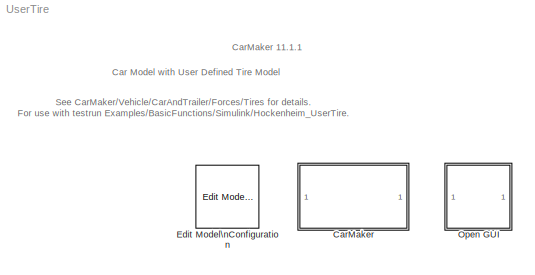
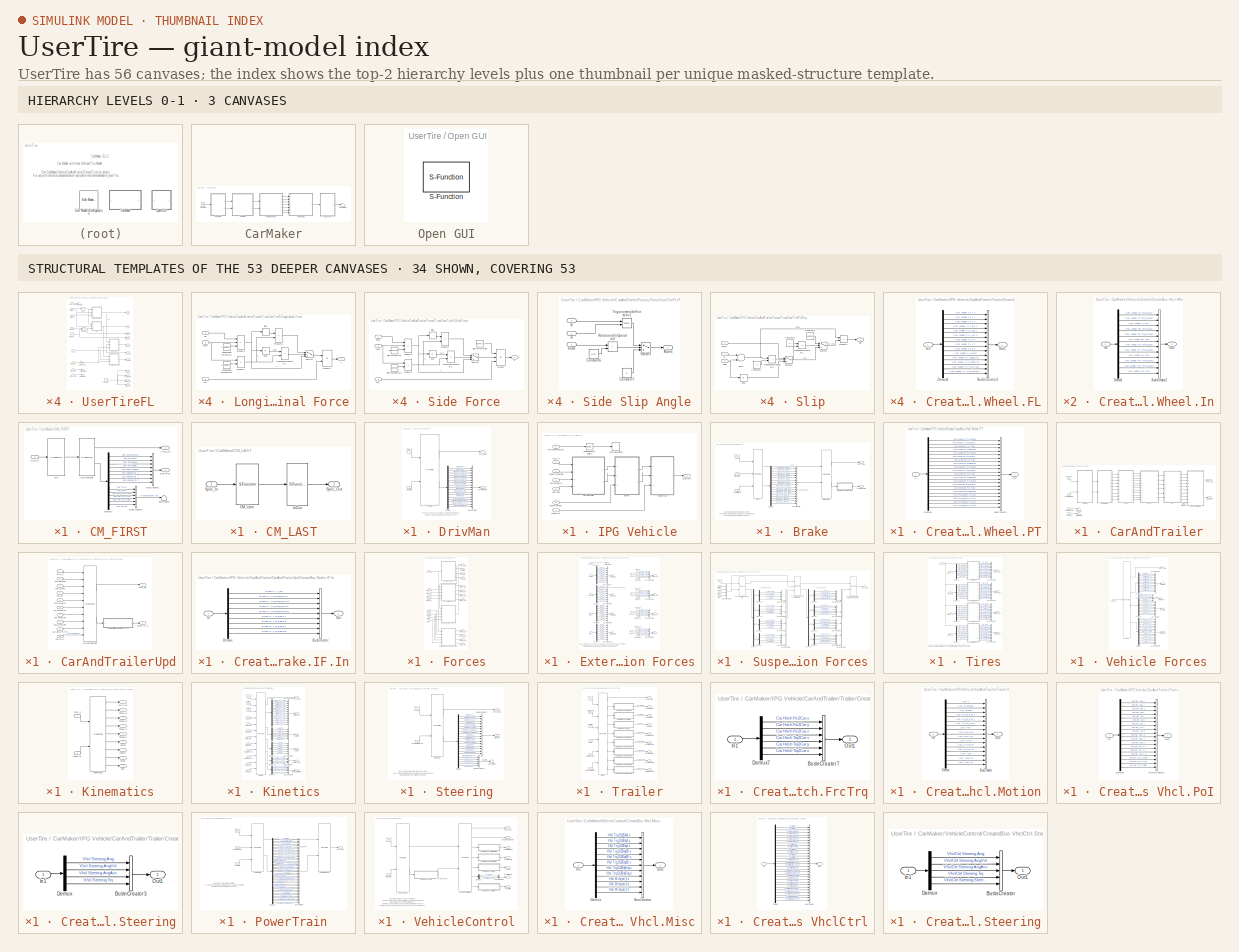
[diagram: thumbnail index - top-2 hierarchy levels (3 canvases) + 34 structural-template representatives of the remaining 53 canvases]
MODEL UserTire
KIND model
CONFIG PreLoadFcn = UserTire_params
BLOCK [SubSystem] CarMaker
  Ports = []
  RequestExecContextInheritance = off
  SID = 1
  TreatAsAtomicUnit = on
BLOCK [SubSystem] CarMaker/CM_FIRST
  Ports = [1, 2]
  RequestExecContextInheritance = off
  SID = 740
BLOCK [BusCreator] CarMaker/CM_FIRST/BusCreator1
  InheritFromInputs = on
  Inputs = 8
  Ports = [8, 1]
  SID = 748
BLOCK [BusCreator] CarMaker/CM_FIRST/BusCreator2
  InheritFromInputs = on
  Inputs = 6
  Ports = [6, 1]
  SID = 749
BLOCK [Demux] CarMaker/CM_FIRST/Demux1
  Outputs = 14
  Ports = [1, 14]
  SID = 750
BLOCK [Outport] CarMaker/CM_FIRST/Env.Misc
  IconDisplay = Port number
  Port = 2
  SID = 755
BLOCK [S-Function] CarMaker/CM_FIRST/Environment
  EnableBusSupport = off
  FunctionName = CM_Sfun
  Parameters = 'Environment'
  Ports = [1, 2]
  SFcnIsStateOwnerBlock = off
  SFunctionDeploymentMode = off
  SID = 751
BLOCK [S-Function] CarMaker/CM_FIRST/IoIn
  EnableBusSupport = off
  FunctionName = CM_Sfun
  Parameters = 'IoIn'
  Ports = [1, 1]
  SFcnIsStateOwnerBlock = off
  SFunctionDeploymentMode = off
  SID = 752
BLOCK [Inport] CarMaker/CM_FIRST/Sync_In
  IconDisplay = Port number
  SID = 747
BLOCK [Outport] CarMaker/CM_FIRST/Sync_Out
  IconDisplay = Port number
  SID = 754
BLOCK [Terminator] CarMaker/CM_FIRST/Terminator
  SID = 753
BLOCK [SubSystem] CarMaker/CM_LAST
  Ports = [1, 1]
  RequestExecContextInheritance = off
  SID = 741
BLOCK [S-Function] CarMaker/CM_LAST/CM_User
  EnableBusSupport = off
  FunctionName = CM_Sfun
  Parameters = 'CM_User'
  Ports = [1, 1]
  SFcnIsStateOwnerBlock = off
  SFunctionDeploymentMode = off
  SID = 1244
BLOCK [S-Function] CarMaker/CM_LAST/IoOut
  EnableBusSupport = off
  FunctionName = CM_Sfun
  Parameters = 'IoOut'
  Ports = [1, 1]
  SFcnIsStateOwnerBlock = off
  SFunctionDeploymentMode = off
  SID = 1245
BLOCK [Inport] CarMaker/CM_LAST/Sync_In
  IconDisplay = Port number
  SID = 1243
BLOCK [Outport] CarMaker/CM_LAST/Sync_Out
  IconDisplay = Port number
  SID = 1246
BLOCK [SubSystem] CarMaker/DrivMan
  Ports = [2, 2]
  RequestExecContextInheritance = off
  SID = 742
BLOCK [BusCreator] CarMaker/DrivMan/BusCreator
  InheritFromInputs = on
  Inputs = 17
  Ports = [17, 1]
  SID = 758
BLOCK [Demux] CarMaker/DrivMan/Demux
  Outputs = 17
  Ports = [1, 17]
  SID = 759
BLOCK [S-Function] CarMaker/DrivMan/DrivMan
  EnableBusSupport = off
  FunctionName = CM_Sfun
  Parameters = 'DrivMan'
  Ports = [2, 2]
  SFcnIsStateOwnerBlock = off
  SFunctionDeploymentMode = off
  SID = 760
BLOCK [Outport] CarMaker/DrivMan/DrivMan.Out
  IconDisplay = Port number
  Port = 2
  SID = 762
BLOCK [Inport] CarMaker/DrivMan/Env.Misc
  IconDisplay = Port number
  Port = 2
  SID = 757
BLOCK [Inport] CarMaker/DrivMan/Sync_In
  IconDisplay = Port number
  SID = 756
BLOCK [Outport] CarMaker/DrivMan/Sync_Out
  IconDisplay = Port number
  SID = 761
BLOCK [Ground] CarMaker/Ground
  SID = 743
BLOCK [SubSystem] CarMaker/IPG Vehicle
  Ports = [7, 1]
  RequestExecContextInheritance = off
  SID = 744
  TreatAsAtomicUnit = off
BLOCK [SubSystem] CarMaker/IPG Vehicle/Brake
  Ports = [3, 2]
  RequestExecContextInheritance = off
  SID = 811
BLOCK [S-Function] CarMaker/IPG Vehicle/Brake/Brake
  EnableBusSupport = off
  FunctionName = CM_Sfun
  Parameters = 'Brake'
  Ports = [3, 2]
  SFcnIsStateOwnerBlock = off
  SFunctionDeploymentMode = off
  SID = 815
BLOCK [Inport] CarMaker/IPG Vehicle/Brake/Brake.IF.In
  IconDisplay = Port number
  Port = 2
  SID = 813
BLOCK [S-Function] CarMaker/IPG Vehicle/Brake/BrakeUpd
  EnableBusSupport = off
  FunctionName = CM_Sfun
  Parameters = 'BrakeUpd'
  Ports = [2, 2]
  SFcnIsStateOwnerBlock = off
  SFunctionDeploymentMode = off
  SID = 816
BLOCK [BusCreator] CarMaker/IPG Vehicle/Brake/BusCreator1
  InheritFromInputs = on
  Inputs = 16
  Ports = [16, 1]
  SID = 817
BLOCK [SubSystem] CarMaker/IPG Vehicle/Brake/CreateBus Vhcl.Wheel.PT
  Ports = [1, 1]
  RequestExecContextInheritance = off
  SID = 818
BLOCK [BusCreator] CarMaker/IPG Vehicle/Brake/CreateBus Vhcl.Wheel.PT/BusCreator1
  InheritFromInputs = on
  Inputs = 20
  Ports = [20, 1]
  SID = 820
BLOCK [Demux] CarMaker/IPG Vehicle/Brake/CreateBus Vhcl.Wheel.PT/Demux1
  Outputs = 20
  Ports = [1, 20]
  SID = 821
BLOCK [Inport] CarMaker/IPG Vehicle/Brake/CreateBus Vhcl.Wheel.PT/In
  IconDisplay = Port number
  SID = 819
BLOCK [Outport] CarMaker/IPG Vehicle/Brake/CreateBus Vhcl.Wheel.PT/Out
  IconDisplay = Port number
  SID = 822
BLOCK [Demux] CarMaker/IPG Vehicle/Brake/Demux
  Outputs = 16
  Ports = [1, 16]
  SID = 823
BLOCK [Inport] CarMaker/IPG Vehicle/Brake/Sync_In
  IconDisplay = Port number
  SID = 812
BLOCK [Outport] CarMaker/IPG Vehicle/Brake/Sync_Out
  IconDisplay = Port number
  SID = 824
BLOCK [Outport] CarMaker/IPG Vehicle/Brake/Vhcl.Wheel.PT
  IconDisplay = Port number
  Port = 2
  SID = 825
BLOCK [Inport] CarMaker/IPG Vehicle/Brake/VhclCtrl.Brake
  IconDisplay = Port number
  Port = 3
  SID = 814
BLOCK [SubSystem] CarMaker/IPG Vehicle/CarAndTrailer
  Ports = [4, 2]
  RequestExecContextInheritance = off
  SID = 828
BLOCK [Outport] CarMaker/IPG Vehicle/CarAndTrailer/Brake.IF.In
  IconDisplay = Port number
  Port = 2
  SID = 1228
BLOCK [SubSystem] CarMaker/IPG Vehicle/CarAndTrailer/CarAndTrailerUpd
  Ports = [10, 2]
  RequestExecContextInheritance = off
  SID = 833
BLOCK [Outport] CarMaker/IPG Vehicle/CarAndTrailer/CarAndTrailerUpd/Brake.IF.In
  IconDisplay = Port number
  Port = 2
  SID = 851
BLOCK [Inport] CarMaker/IPG Vehicle/CarAndTrailer/CarAndTrailerUpd/Car.Hitch.FrcTrq
  IconDisplay = Port number
  Port = 9
  SID = 842
BLOCK [S-Function] CarMaker/IPG Vehicle/CarAndTrailer/CarAndTrailerUpd/CarAndTrailerUpd
  EnableBusSupport = off
  FunctionName = CM_Sfun
  Parameters = 'CarAndTrUpd'
  Ports = [10, 2]
  SFcnIsStateOwnerBlock = off
  SFunctionDeploymentMode = off
  SID = 844
BLOCK [SubSystem] CarMaker/IPG Vehicle/CarAndTrailer/CarAndTrailerUpd/CreateBus Brake.IF.In
  Ports = [1, 1]
  RequestExecContextInheritance = off
  SID = 845
BLOCK [BusCreator] CarMaker/IPG Vehicle/CarAndTrailer/CarAndTrailerUpd/CreateBus Brake.IF.In/BusCreator
  InheritFromInputs = on
  Inputs = 9
  Ports = [9, 1]
  SID = 847
BLOCK [Demux] CarMaker/IPG Vehicle/CarAndTrailer/CarAndTrailerUpd/CreateBus Brake.IF.In/Demux
  Outputs = 9
  Ports = [1, 9]
  SID = 848
BLOCK [Inport] CarMaker/IPG Vehicle/CarAndTrailer/CarAndTrailerUpd/CreateBus Brake.IF.In/In
  IconDisplay = Port number
  SID = 846
BLOCK [Outport] CarMaker/IPG Vehicle/CarAndTrailer/CarAndTrailerUpd/CreateBus Brake.IF.In/Out
  IconDisplay = Port number
  SID = 849
BLOCK [Inport] CarMaker/IPG Vehicle/CarAndTrailer/CarAndTrailerUpd/Sync_In
  IconDisplay = Port number
  SID = 834
BLOCK [Outport] CarMaker/IPG Vehicle/CarAndTrailer/CarAndTrailerUpd/Sync_Out
  IconDisplay = Port number
  SID = 850
BLOCK [Inport] CarMaker/IPG Vehicle/CarAndTrailer/CarAndTrailerUpd/Vhcl.Fr1A
  IconDisplay = Port number
  Port = 10
  SID = 843
BLOCK [Inport] CarMaker/IPG Vehicle/CarAndTrailer/CarAndTrailerUpd/Vhcl.Motion
  IconDisplay = Port number
  Port = 3
  SID = 836
BLOCK [Inport] CarMaker/IPG Vehicle/CarAndTrailer/CarAndTrailerUpd/Vhcl.PoI
  IconDisplay = Port number
  Port = 4
  SID = 837
BLOCK [Inport] CarMaker/IPG Vehicle/CarAndTrailer/CarAndTrailerUpd/Vhcl.Steering
  IconDisplay = Port number
  Port = 2
  SID = 835
BLOCK [Inport] CarMaker/IPG Vehicle/CarAndTrailer/CarAndTrailerUpd/Vhcl.Wheel.FL
  IconDisplay = Port number
  Port = 5
  SID = 838
BLOCK [Inport] CarMaker/IPG Vehicle/CarAndTrailer/CarAndTrailerUpd/Vhcl.Wheel.FR
  IconDisplay = Port number
  Port = 6
  SID = 839
BLOCK [Inport] CarMaker/IPG Vehicle/CarAndTrailer/CarAndTrailerUpd/Vhcl.Wheel.RL
  IconDisplay = Port number
  Port = 7
  SID = 840
BLOCK [Inport] CarMaker/IPG Vehicle/CarAndTrailer/CarAndTrailerUpd/Vhcl.Wheel.RR
  IconDisplay = Port number
  Port = 8
  SID = 841
BLOCK [SubSystem] CarMaker/IPG Vehicle/CarAndTrailer/Forces
  Ports = [9, 12]
  RequestExecContextInheritance = off
  SID = 852
BLOCK [Outport] CarMaker/IPG Vehicle/CarAndTrailer/Forces/Car.Aero
  IconDisplay = Port number
  Port = 3
  SID = 1103
BLOCK [Outport] CarMaker/IPG Vehicle/CarAndTrailer/Forces/Car.Load
  IconDisplay = Port number
  Port = 4
  SID = 1104
BLOCK [Outport] CarMaker/IPG Vehicle/CarAndTrailer/Forces/Car.Virtual
  IconDisplay = Port number
  Port = 2
  SID = 1102
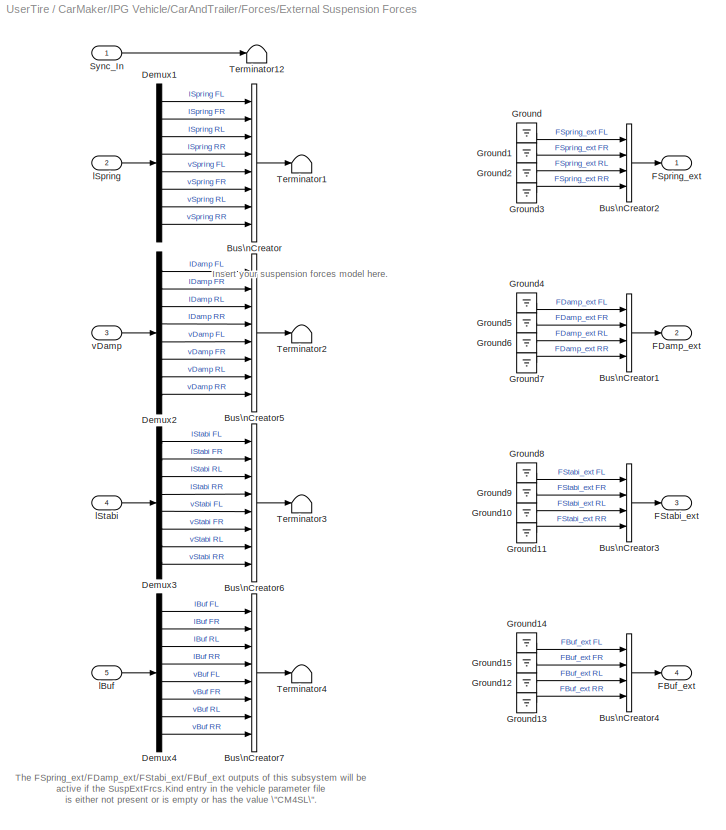
BLOCK [SubSystem] CarMaker/IPG Vehicle/CarAndTrailer/Forces/External Suspension Forces
  Ports = [5, 4]
  RequestExecContextInheritance = off
  SID = 862
BLOCK [BusCreator] CarMaker/IPG Vehicle/CarAndTrailer/Forces/External Suspension Forces/Bus\nCreator
  DisplayOption = bar
  InheritFromInputs = on
  Inputs = 8
  Ports = [8, 1]
  SID = 868
BLOCK [BusCreator] CarMaker/IPG Vehicle/CarAndTrailer/Forces/External Suspension Forces/Bus\nCreator1
  DisplayOption = bar
  InheritFromInputs = on
  Inputs = 4
  Ports = [4, 1]
  SID = 869
BLOCK [BusCreator] CarMaker/IPG Vehicle/CarAndTrailer/Forces/External Suspension Forces/Bus\nCreator2
  DisplayOption = bar
  InheritFromInputs = on
  Inputs = 4
  Ports = [4, 1]
  SID = 870
BLOCK [BusCreator] CarMaker/IPG Vehicle/CarAndTrailer/Forces/External Suspension Forces/Bus\nCreator3
  DisplayOption = bar
  InheritFromInputs = on
  Inputs = 4
  Ports = [4, 1]
  SID = 871
BLOCK [BusCreator] CarMaker/IPG Vehicle/CarAndTrailer/Forces/External Suspension Forces/Bus\nCreator4
  DisplayOption = bar
  InheritFromInputs = on
  Inputs = 4
  Ports = [4, 1]
  SID = 872
BLOCK [BusCreator] CarMaker/IPG Vehicle/CarAndTrailer/Forces/External Suspension Forces/Bus\nCreator5
  DisplayOption = bar
  InheritFromInputs = on
  Inputs = 8
  Ports = [8, 1]
  SID = 873
BLOCK [BusCreator] CarMaker/IPG Vehicle/CarAndTrailer/Forces/External Suspension Forces/Bus\nCreator6
  DisplayOption = bar
  InheritFromInputs = on
  Inputs = 8
  Ports = [8, 1]
  SID = 874
BLOCK [BusCreator] CarMaker/IPG Vehicle/CarAndTrailer/Forces/External Suspension Forces/Bus\nCreator7
  DisplayOption = bar
  InheritFromInputs = on
  Inputs = 8
  Ports = [8, 1]
  SID = 875
BLOCK [Demux] CarMaker/IPG Vehicle/CarAndTrailer/Forces/External Suspension Forces/Demux1
  Outputs = 8
  Ports = [1, 8]
  SID = 876
BLOCK [Demux] CarMaker/IPG Vehicle/CarAndTrailer/Forces/External Suspension Forces/Demux2
  Outputs = 8
  Ports = [1, 8]
  SID = 877
BLOCK [Demux] CarMaker/IPG Vehicle/CarAndTrailer/Forces/External Suspension Forces/Demux3
  Outputs = 8
  Ports = [1, 8]
  SID = 878
BLOCK [Demux] CarMaker/IPG Vehicle/CarAndTrailer/Forces/External Suspension Forces/Demux4
  Outputs = 8
  Ports = [1, 8]
  SID = 879
BLOCK [Outport] CarMaker/IPG Vehicle/CarAndTrailer/Forces/External Suspension Forces/FBuf_ext
  IconDisplay = Port number
  Port = 4
  SID = 904
BLOCK [Outport] CarMaker/IPG Vehicle/CarAndTrailer/Forces/External Suspension Forces/FDamp_ext
  IconDisplay = Port number
  Port = 2
  SID = 902
BLOCK [Outport] CarMaker/IPG Vehicle/CarAndTrailer/Forces/External Suspension Forces/FSpring_ext
  IconDisplay = Port number
  SID = 901
BLOCK [Outport] CarMaker/IPG Vehicle/CarAndTrailer/Forces/External Suspension Forces/FStabi_ext
  IconDisplay = Port number
  Port = 3
  SID = 903
BLOCK [Ground] CarMaker/IPG Vehicle/CarAndTrailer/Forces/External Suspension Forces/Ground
  SID = 880
BLOCK [Ground] CarMaker/IPG Vehicle/CarAndTrailer/Forces/External Suspension Forces/Ground1
  SID = 881
BLOCK [Ground] CarMaker/IPG Vehicle/CarAndTrailer/Forces/External Suspension Forces/Ground10
  SID = 882
BLOCK [Ground] CarMaker/IPG Vehicle/CarAndTrailer/Forces/External Suspension Forces/Ground11
  SID = 883
BLOCK [Ground] CarMaker/IPG Vehicle/CarAndTrailer/Forces/External Suspension Forces/Ground12
  SID = 884
BLOCK [Ground] CarMaker/IPG Vehicle/CarAndTrailer/Forces/External Suspension Forces/Ground13
  SID = 885
BLOCK [Ground] CarMaker/IPG Vehicle/CarAndTrailer/Forces/External Suspension Forces/Ground14
  SID = 886
BLOCK [Ground] CarMaker/IPG Vehicle/CarAndTrailer/Forces/External Suspension Forces/Ground15
  SID = 887
BLOCK [Ground] CarMaker/IPG Vehicle/CarAndTrailer/Forces/External Suspension Forces/Ground2
  SID = 888
BLOCK [Ground] CarMaker/IPG Vehicle/CarAndTrailer/Forces/External Suspension Forces/Ground3
  SID = 889
BLOCK [Ground] CarMaker/IPG Vehicle/CarAndTrailer/Forces/External Suspension Forces/Ground4
  SID = 890
BLOCK [Ground] CarMaker/IPG Vehicle/CarAndTrailer/Forces/External Suspension Forces/Ground5
  SID = 891
BLOCK [Ground] CarMaker/IPG Vehicle/CarAndTrailer/Forces/External Suspension Forces/Ground6
  SID = 892
BLOCK [Ground] CarMaker/IPG Vehicle/CarAndTrailer/Forces/External Suspension Forces/Ground7
  SID = 893
BLOCK [Ground] CarMaker/IPG Vehicle/CarAndTrailer/Forces/External Suspension Forces/Ground8
  SID = 894
BLOCK [Ground] CarMaker/IPG Vehicle/CarAndTrailer/Forces/External Suspension Forces/Ground9
  SID = 895
BLOCK [Inport] CarMaker/IPG Vehicle/CarAndTrailer/Forces/External Suspension Forces/Sync_In
  IconDisplay = Port number
  SID = 863
BLOCK [Terminator] CarMaker/IPG Vehicle/CarAndTrailer/Forces/External Suspension Forces/Terminator1
  SID = 896
BLOCK [Terminator] CarMaker/IPG Vehicle/CarAndTrailer/Forces/External Suspension Forces/Terminator12
  SID = 897
BLOCK [Terminator] CarMaker/IPG Vehicle/CarAndTrailer/Forces/External Suspension Forces/Terminator2
  SID = 898
BLOCK [Terminator] CarMaker/IPG Vehicle/CarAndTrailer/Forces/External Suspension Forces/Terminator3
  SID = 899
BLOCK [Terminator] CarMaker/IPG Vehicle/CarAndTrailer/Forces/External Suspension Forces/Terminator4
  SID = 900
BLOCK [Inport] CarMaker/IPG Vehicle/CarAndTrailer/Forces/External Suspension Forces/lBuf
  IconDisplay = Port number
  Port = 5
  SID = 867
BLOCK [Inport] CarMaker/IPG Vehicle/CarAndTrailer/Forces/External Suspension Forces/lSpring
  IconDisplay = Port number
  Port = 2
  SID = 864
BLOCK [Inport] CarMaker/IPG Vehicle/CarAndTrailer/Forces/External Suspension Forces/lStabi
  IconDisplay = Port number
  Port = 4
  SID = 866
BLOCK [Inport] CarMaker/IPG Vehicle/CarAndTrailer/Forces/External Suspension Forces/vDamp
  IconDisplay = Port number
  Port = 3
  SID = 865
BLOCK [Outport] CarMaker/IPG Vehicle/CarAndTrailer/Forces/FBuf_ext
  IconDisplay = Port number
  Port = 12
  SID = 1112
BLOCK [Outport] CarMaker/IPG Vehicle/CarAndTrailer/Forces/FDamp_ext
  IconDisplay = Port number
  Port = 10
  SID = 1110
BLOCK [Outport] CarMaker/IPG Vehicle/CarAndTrailer/Forces/FSpring_ext
  IconDisplay = Port number
  Port = 9
  SID = 1109
BLOCK [Outport] CarMaker/IPG Vehicle/CarAndTrailer/Forces/FStabi_ext
  IconDisplay = Port number
  Port = 11
  SID = 1111
BLOCK [SubSystem] CarMaker/IPG Vehicle/CarAndTrailer/Forces/Suspension Forces
  Ports = [5, 1]
  RequestExecContextInheritance = off
  SID = 1602
BLOCK [BusCreator] CarMaker/IPG Vehicle/CarAndTrailer/Forces/Suspension Forces/Bus\nCreator
  DisplayOption = bar
  InheritFromInputs = on
  Inputs = 4
  Ports = [4, 1]
  SID = 1608
BLOCK [BusCreator] CarMaker/IPG Vehicle/CarAndTrailer/Forces/Suspension Forces/Bus\nCreator1
  DisplayOption = bar
  InheritFromInputs = on
  Inputs = 4
  Ports = [4, 1]
  SID = 1609
BLOCK [BusCreator] CarMaker/IPG Vehicle/CarAndTrailer/Forces/Suspension Forces/Bus\nCreator10
  DisplayOption = bar
  InheritFromInputs = on
  Inputs = 4
  Ports = [4, 1]
  SID = 1610
BLOCK [BusCreator] CarMaker/IPG Vehicle/CarAndTrailer/Forces/Suspension Forces/Bus\nCreator2
  DisplayOption = bar
  InheritFromInputs = on
  Inputs = 4
  Ports = [4, 1]
  SID = 1611
BLOCK [BusCreator] CarMaker/IPG Vehicle/CarAndTrailer/Forces/Suspension Forces/Bus\nCreator3
  DisplayOption = bar
  InheritFromInputs = on
  Inputs = 4
  Ports = [4, 1]
  SID = 1612
BLOCK [BusCreator] CarMaker/IPG Vehicle/CarAndTrailer/Forces/Suspension Forces/Bus\nCreator4
  DisplayOption = bar
  InheritFromInputs = on
  Inputs = 6
  Ports = [6, 1]
  SID = 1613
BLOCK [BusCreator] CarMaker/IPG Vehicle/CarAndTrailer/Forces/Suspension Forces/Bus\nCreator5
  DisplayOption = bar
  InheritFromInputs = on
  Inputs = 6
  Ports = [6, 1]
  SID = 1614
BLOCK [BusCreator] CarMaker/IPG Vehicle/CarAndTrailer/Forces/Suspension Forces/Bus\nCreator6
  DisplayOption = bar
  InheritFromInputs = on
  Inputs = 6
  Ports = [6, 1]
  SID = 1615
BLOCK [BusCreator] CarMaker/IPG Vehicle/CarAndTrailer/Forces/Suspension Forces/Bus\nCreator7
  DisplayOption = bar
  InheritFromInputs = on
  Inputs = 6
  Ports = [6, 1]
  SID = 1616
BLOCK [BusCreator] CarMaker/IPG Vehicle/CarAndTrailer/Forces/Suspension Forces/Bus\nCreator8
  DisplayOption = bar
  InheritFromInputs = on
  Inputs = 4
  Ports = [4, 1]
  SID = 1617
BLOCK [BusCreator] CarMaker/IPG Vehicle/CarAndTrailer/Forces/Suspension Forces/Bus\nCreator9
  DisplayOption = bar
  InheritFromInputs = on
  Inputs = 4
  Ports = [4, 1]
  SID = 1618
BLOCK [Demux] CarMaker/IPG Vehicle/CarAndTrailer/Forces/Suspension Forces/Demux
  DisplayOption = bar
  Ports = [1, 4]
  SID = 1619
BLOCK [Demux] CarMaker/IPG Vehicle/CarAndTrailer/Forces/Suspension Forces/Demux1
  DisplayOption = bar
  Ports = [1, 4]
  SID = 1620
BLOCK [Demux] CarMaker/IPG Vehicle/CarAndTrailer/Forces/Suspension Forces/Demux2
  DisplayOption = bar
  Ports = [1, 4]
  SID = 1621
BLOCK [Demux] CarMaker/IPG Vehicle/CarAndTrailer/Forces/Suspension Forces/Demux3
  DisplayOption = bar
  Ports = [1, 4]
  SID = 1622
BLOCK [Demux] CarMaker/IPG Vehicle/CarAndTrailer/Forces/Suspension Forces/Demux4
  DisplayOption = bar
  Ports = [1, 4]
  SID = 1623
BLOCK [Demux] CarMaker/IPG Vehicle/CarAndTrailer/Forces/Suspension Forces/Demux5
  DisplayOption = bar
  Ports = [1, 4]
  SID = 1624
BLOCK [Demux] CarMaker/IPG Vehicle/CarAndTrailer/Forces/Suspension Forces/Demux6
  DisplayOption = bar
  Outputs = 6
  Ports = [1, 6]
  SID = 1625
BLOCK [Demux] CarMaker/IPG Vehicle/CarAndTrailer/Forces/Suspension Forces/Demux7
  DisplayOption = bar
  Outputs = 6
  Ports = [1, 6]
  SID = 1626
BLOCK [Demux] CarMaker/IPG Vehicle/CarAndTrailer/Forces/Suspension Forces/Demux8
  DisplayOption = bar
  Outputs = 6
  Ports = [1, 6]
  SID = 1627
BLOCK [Demux] CarMaker/IPG Vehicle/CarAndTrailer/Forces/Suspension Forces/Demux9
  DisplayOption = bar
  Outputs = 6
  Ports = [1, 6]
  SID = 1628
BLOCK [S-Function] CarMaker/IPG Vehicle/CarAndTrailer/Forces/Suspension Forces/Suspension Control Unit
  EnableBusSupport = off
  FunctionName = CM_Sfun
  Parameters = 'ForcesSuspControl'
  Ports = [2, 2]
  SFcnIsStateOwnerBlock = off
  SFunctionDeploymentMode = off
  SID = 1629
BLOCK [S-Function] CarMaker/IPG Vehicle/CarAndTrailer/Forces/Suspension Forces/Suspension Force Elements
  EnableBusSupport = off
  FunctionName = CM_Sfun
  Parameters = 'ForcesSusp'
  Ports = [3, 2]
  SFcnIsStateOwnerBlock = off
  SFunctionDeploymentMode = off
  SID = 1630
BLOCK [S-Function] CarMaker/IPG Vehicle/CarAndTrailer/Forces/Suspension Forces/Suspension Force Elements Update
  EnableBusSupport = off
  FunctionName = CM_Sfun
  Parameters = 'ForcesSuspUpd'
  Ports = [2, 1]
  SFcnIsStateOwnerBlock = off
  SFunctionDeploymentMode = off
  SID = 1631
BLOCK [Inport] CarMaker/IPG Vehicle/CarAndTrailer/Forces/Suspension Forces/Sync_In
  IconDisplay = Port number
  SID = 1603
BLOCK [Outport] CarMaker/IPG Vehicle/CarAndTrailer/Forces/Suspension Forces/Sync_Out
  IconDisplay = Port number
  SID = 1632
BLOCK [Inport] CarMaker/IPG Vehicle/CarAndTrailer/Forces/Suspension Forces/lBuf
  IconDisplay = Port number
  Port = 5
  SID = 1607
BLOCK [Inport] CarMaker/IPG Vehicle/CarAndTrailer/Forces/Suspension Forces/lSpring
  IconDisplay = Port number
  Port = 2
  SID = 1604
BLOCK [Inport] CarMaker/IPG Vehicle/CarAndTrailer/Forces/Suspension Forces/lStabi
  IconDisplay = Port number
  Port = 4
  SID = 1606
BLOCK [Inport] CarMaker/IPG Vehicle/CarAndTrailer/Forces/Suspension Forces/vDamp
  IconDisplay = Port number
  Port = 3
  SID = 1605
BLOCK [Inport] CarMaker/IPG Vehicle/CarAndTrailer/Forces/Sync_In
  IconDisplay = Port number
  SID = 853
BLOCK [Outport] CarMaker/IPG Vehicle/CarAndTrailer/Forces/Sync_Out
  IconDisplay = Port number
  SID = 1101
BLOCK [Inport] CarMaker/IPG Vehicle/CarAndTrailer/Forces/TireFL_In
  IconDisplay = Port number
  Port = 2
  SID = 854
BLOCK [Outport] CarMaker/IPG Vehicle/CarAndTrailer/Forces/TireFL_Out
  IconDisplay = Port number
  Port = 5
  SID = 1105
BLOCK [Inport] CarMaker/IPG Vehicle/CarAndTrailer/Forces/TireFR_In
  IconDisplay = Port number
  Port = 3
  SID = 855
BLOCK [Outport] CarMaker/IPG Vehicle/CarAndTrailer/Forces/TireFR_Out
  IconDisplay = Port number
  Port = 6
  SID = 1106
BLOCK [Inport] CarMaker/IPG Vehicle/CarAndTrailer/Forces/TireRL_In
  IconDisplay = Port number
  Port = 4
  SID = 856
BLOCK [Outport] CarMaker/IPG Vehicle/CarAndTrailer/Forces/TireRL_Out
  IconDisplay = Port number
  Port = 7
  SID = 1107
BLOCK [Inport] CarMaker/IPG Vehicle/CarAndTrailer/Forces/TireRR_In
  IconDisplay = Port number
  Port = 5
  SID = 857
BLOCK [Outport] CarMaker/IPG Vehicle/CarAndTrailer/Forces/TireRR_Out
  IconDisplay = Port number
  Port = 8
  SID = 1108
BLOCK [SubSystem] CarMaker/IPG Vehicle/CarAndTrailer/Forces/Tires
  Ports = [5, 4]
  RequestExecContextInheritance = off
  SID = 1247
BLOCK [BusCreator] CarMaker/IPG Vehicle/CarAndTrailer/Forces/Tires/Bus\nCreator1
  DisplayOption = bar
  InheritFromInputs = on
  Inputs = 11
  Ports = [11, 1]
  SID = 1253
BLOCK [BusCreator] CarMaker/IPG Vehicle/CarAndTrailer/Forces/Tires/Bus\nCreator2
  DisplayOption = bar
  InheritFromInputs = on
  Inputs = 11
  Ports = [11, 1]
  SID = 1254
BLOCK [BusCreator] CarMaker/IPG Vehicle/CarAndTrailer/Forces/Tires/Bus\nCreator3
  DisplayOption = bar
  InheritFromInputs = on
  Inputs = 11
  Ports = [11, 1]
  SID = 1255
BLOCK [BusCreator] CarMaker/IPG Vehicle/CarAndTrailer/Forces/Tires/Bus\nCreator4
  DisplayOption = bar
  InheritFromInputs = on
  Inputs = 11
  Ports = [11, 1]
  SID = 1256
BLOCK [Demux] CarMaker/IPG Vehicle/CarAndTrailer/Forces/Tires/Demux1
  Outputs = 7
  Ports = [1, 7]
  SID = 1257
BLOCK [Demux] CarMaker/IPG Vehicle/CarAndTrailer/Forces/Tires/Demux2
  Outputs = 7
  Ports = [1, 7]
  SID = 1258
BLOCK [Demux] CarMaker/IPG Vehicle/CarAndTrailer/Forces/Tires/Demux3
  Outputs = 7
  Ports = [1, 7]
  SID = 1259
BLOCK [Demux] CarMaker/IPG Vehicle/CarAndTrailer/Forces/Tires/Demux8
  Outputs = 7
  Ports = [1, 7]
  SID = 1260
BLOCK [Inport] CarMaker/IPG Vehicle/CarAndTrailer/Forces/Tires/Sync_In
  IconDisplay = Port number
  SID = 1248
BLOCK [Inport] CarMaker/IPG Vehicle/CarAndTrailer/Forces/Tires/TireFL_In
  IconDisplay = Port number
  Port = 2
  SID = 1249
BLOCK [Outport] CarMaker/IPG Vehicle/CarAndTrailer/Forces/Tires/TireFL_Out
  IconDisplay = Port number
  SID = 1597
BLOCK [Inport] CarMaker/IPG Vehicle/CarAndTrailer/Forces/Tires/TireFR_In
  IconDisplay = Port number
  Port = 3
  SID = 1250
BLOCK [Outport] CarMaker/IPG Vehicle/CarAndTrailer/Forces/Tires/TireFR_Out
  IconDisplay = Port number
  Port = 2
  SID = 1598
BLOCK [Inport] CarMaker/IPG Vehicle/CarAndTrailer/Forces/Tires/TireRL_In
  IconDisplay = Port number
  Port = 4
  SID = 1251
BLOCK [Outport] CarMaker/IPG Vehicle/CarAndTrailer/Forces/Tires/TireRL_Out
  IconDisplay = Port number
  Port = 3
  SID = 1599
BLOCK [Inport] CarMaker/IPG Vehicle/CarAndTrailer/Forces/Tires/TireRR_In
  IconDisplay = Port number
  Port = 5
  SID = 1252
BLOCK [Outport] CarMaker/IPG Vehicle/CarAndTrailer/Forces/Tires/TireRR_Out
  IconDisplay = Port number
  Port = 4
  SID = 1600
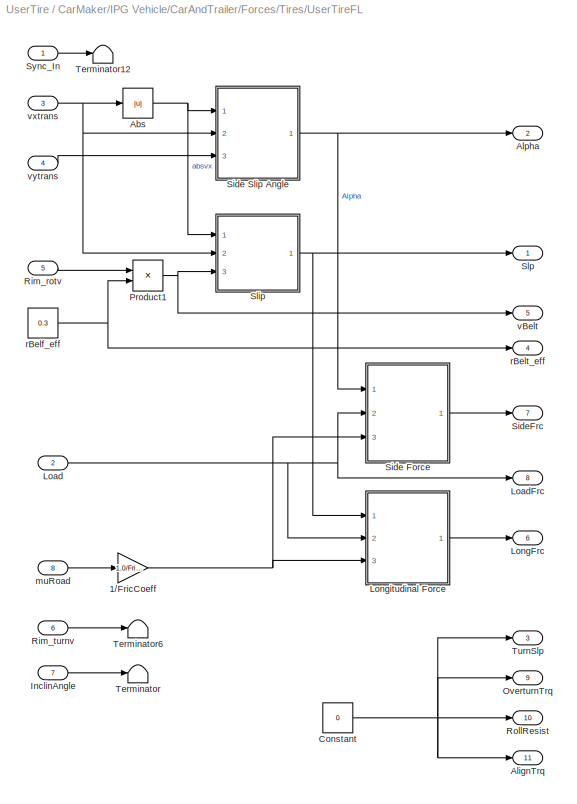
BLOCK [SubSystem] CarMaker/IPG Vehicle/CarAndTrailer/Forces/Tires/UserTireFL
  Ports = [8, 11]
  RequestExecContextInheritance = off
  SID = 1261
BLOCK [Gain] CarMaker/IPG Vehicle/CarAndTrailer/Forces/Tires/UserTireFL/1//FricCoeff
  Gain = 1.0/FricCoeff
  SID = 1270
BLOCK [Abs] CarMaker/IPG Vehicle/CarAndTrailer/Forces/Tires/UserTireFL/Abs
  SID = 1271
BLOCK [Outport] CarMaker/IPG Vehicle/CarAndTrailer/Forces/Tires/UserTireFL/AlignTrq
  IconDisplay = Port number
  Port = 11
  SID = 1344
BLOCK [Outport] CarMaker/IPG Vehicle/CarAndTrailer/Forces/Tires/UserTireFL/Alpha
  IconDisplay = Port number
  Port = 2
  SID = 1335
BLOCK [Constant] CarMaker/IPG Vehicle/CarAndTrailer/Forces/Tires/UserTireFL/Constant
  SID = 1272
  Value = 0
BLOCK [Inport] CarMaker/IPG Vehicle/CarAndTrailer/Forces/Tires/UserTireFL/InclinAngle
  IconDisplay = Port number
  Port = 7
  SID = 1268
BLOCK [Inport] CarMaker/IPG Vehicle/CarAndTrailer/Forces/Tires/UserTireFL/Load
  IconDisplay = Port number
  Port = 2
  SID = 1263
BLOCK [Outport] CarMaker/IPG Vehicle/CarAndTrailer/Forces/Tires/UserTireFL/LoadFrc
  IconDisplay = Port number
  Port = 8
  SID = 1341
BLOCK [Outport] CarMaker/IPG Vehicle/CarAndTrailer/Forces/Tires/UserTireFL/LongFrc
  IconDisplay = Port number
  Port = 6
  SID = 1339
BLOCK [SubSystem] CarMaker/IPG Vehicle/CarAndTrailer/Forces/Tires/UserTireFL/Longitudinal Force
  Ports = [3, 1]
  RequestExecContextInheritance = off
  SID = 1273
BLOCK [Abs] CarMaker/IPG Vehicle/CarAndTrailer/Forces/Tires/UserTireFL/Longitudinal Force/Abs2
  SID = 1277
BLOCK [Outport] CarMaker/IPG Vehicle/CarAndTrailer/Forces/Tires/UserTireFL/Longitudinal Force/F
  IconDisplay = Port number
  SID = 1287
BLOCK [Inport] CarMaker/IPG Vehicle/CarAndTrailer/Forces/Tires/UserTireFL/Longitudinal Force/Load
  IconDisplay = Port number
  Port = 2
  SID = 1275
BLOCK [Constant] CarMaker/IPG Vehicle/CarAndTrailer/Forces/Tires/UserTireFL/Longitudinal Force/Longitudinal ForceRate
  SID = 1278
  Value = Longitudinal.ForceRate
BLOCK [Constant] CarMaker/IPG Vehicle/CarAndTrailer/Forces/Tires/UserTireFL/Longitudinal Force/Longitudinal FrictionRate
  SID = 1279
  Value = Longitudinal.FrictionRate
BLOCK [Product] CarMaker/IPG Vehicle/CarAndTrailer/Forces/Tires/UserTireFL/Longitudinal Force/Product1
  Ports = [2, 1]
  RndMeth = Floor
  SID = 1280
BLOCK [Product] CarMaker/IPG Vehicle/CarAndTrailer/Forces/Tires/UserTireFL/Longitudinal Force/Product3
  Inputs = 3
  Ports = [3, 1]
  RndMeth = Floor
  SID = 1281
BLOCK [Product] CarMaker/IPG Vehicle/CarAndTrailer/Forces/Tires/UserTireFL/Longitudinal Force/Product4
  Ports = [2, 1]
  RndMeth = Floor
  SID = 1282
BLOCK [Product] CarMaker/IPG Vehicle/CarAndTrailer/Forces/Tires/UserTireFL/Longitudinal Force/Product5
  Ports = [2, 1]
  RndMeth = Floor
  SID = 1283
BLOCK [RelationalOperator] CarMaker/IPG Vehicle/CarAndTrailer/Forces/Tires/UserTireFL/Longitudinal Force/Relational\nOperator1
  Operator = >
  Ports = [2, 1]
  SID = 1284
BLOCK [Signum] CarMaker/IPG Vehicle/CarAndTrailer/Forces/Tires/UserTireFL/Longitudinal Force/Sign
  SID = 1285
BLOCK [Inport] CarMaker/IPG Vehicle/CarAndTrailer/Forces/Tires/UserTireFL/Longitudinal Force/Slp
  IconDisplay = Port number
  SID = 1274
BLOCK [Switch] CarMaker/IPG Vehicle/CarAndTrailer/Forces/Tires/UserTireFL/Longitudinal Force/Switch1
  SID = 1286
  Threshold = 1
BLOCK [Inport] CarMaker/IPG Vehicle/CarAndTrailer/Forces/Tires/UserTireFL/Longitudinal Force/mu
  IconDisplay = Port number
  Port = 3
  SID = 1276
BLOCK [Outport] CarMaker/IPG Vehicle/CarAndTrailer/Forces/Tires/UserTireFL/OverturnTrq
  IconDisplay = Port number
  Port = 9
  SID = 1342
BLOCK [Product] CarMaker/IPG Vehicle/CarAndTrailer/Forces/Tires/UserTireFL/Product1
  Inputs = **
  Ports = [2, 1]
  RndMeth = Floor
  SID = 1288
BLOCK [Inport] CarMaker/IPG Vehicle/CarAndTrailer/Forces/Tires/UserTireFL/Rim_rotv
  IconDisplay = Port number
  Port = 5
  SID = 1266
BLOCK [Inport] CarMaker/IPG Vehicle/CarAndTrailer/Forces/Tires/UserTireFL/Rim_turnv
  IconDisplay = Port number
  Port = 6
  SID = 1267
BLOCK [Outport] CarMaker/IPG Vehicle/CarAndTrailer/Forces/Tires/UserTireFL/RollResist
  IconDisplay = Port number
  Port = 10
  SID = 1343
BLOCK [SubSystem] CarMaker/IPG Vehicle/CarAndTrailer/Forces/Tires/UserTireFL/Side Force
  Ports = [3, 1]
  RequestExecContextInheritance = off
  SID = 1289
BLOCK [Constant] CarMaker/IPG Vehicle/CarAndTrailer/Forces/Tires/UserTireFL/Side Force/-Side ForceAmplify
  SID = 1293
  Value = -Side.ForceAmplify
BLOCK [Abs] CarMaker/IPG Vehicle/CarAndTrailer/Forces/Tires/UserTireFL/Side Force/Abs2
  SID = 1294
BLOCK [Inport] CarMaker/IPG Vehicle/CarAndTrailer/Forces/Tires/UserTireFL/Side Force/Alpha
  IconDisplay = Port number
  SID = 1290
BLOCK [Outport] CarMaker/IPG Vehicle/CarAndTrailer/Forces/Tires/UserTireFL/Side Force/F
  IconDisplay = Port number
  SID = 1304
BLOCK [Inport] CarMaker/IPG Vehicle/CarAndTrailer/Forces/Tires/UserTireFL/Side Force/Load
  IconDisplay = Port number
  Port = 2
  SID = 1291
BLOCK [Product] CarMaker/IPG Vehicle/CarAndTrailer/Forces/Tires/UserTireFL/Side Force/Product
  Inputs = 3
  Ports = [3, 1]
  RndMeth = Floor
  SID = 1295
BLOCK [Product] CarMaker/IPG Vehicle/CarAndTrailer/Forces/Tires/UserTireFL/Side Force/Product3
  Inputs = 3
  Ports = [3, 1]
  RndMeth = Floor
  SID = 1296
BLOCK [Product] CarMaker/IPG Vehicle/CarAndTrailer/Forces/Tires/UserTireFL/Side Force/Product4
  Ports = [2, 1]
  RndMeth = Floor
  SID = 1297
BLOCK [Product] CarMaker/IPG Vehicle/CarAndTrailer/Forces/Tires/UserTireFL/Side Force/Product5
  Ports = [2, 1]
  RndMeth = Floor
  SID = 1298
BLOCK [RelationalOperator] CarMaker/IPG Vehicle/CarAndTrailer/Forces/Tires/UserTireFL/Side Force/Relational\nOperator1
  Operator = >
  Ports = [2, 1]
  SID = 1299
BLOCK [Constant] CarMaker/IPG Vehicle/CarAndTrailer/Forces/Tires/UserTireFL/Side Force/Side ForceRate
  SID = 1300
  Value = Side.ForceRate
BLOCK [Constant] CarMaker/IPG Vehicle/CarAndTrailer/Forces/Tires/UserTireFL/Side Force/Side FrictionRate
  SID = 1301
  Value = Side.FrictionRate
BLOCK [Signum] CarMaker/IPG Vehicle/CarAndTrailer/Forces/Tires/UserTireFL/Side Force/Sign
  SID = 1302
BLOCK [Switch] CarMaker/IPG Vehicle/CarAndTrailer/Forces/Tires/UserTireFL/Side Force/Switch1
  SID = 1303
  Threshold = 1
BLOCK [Inport] CarMaker/IPG Vehicle/CarAndTrailer/Forces/Tires/UserTireFL/Side Force/mu
  IconDisplay = Port number
  Port = 3
  SID = 1292
BLOCK [SubSystem] CarMaker/IPG Vehicle/CarAndTrailer/Forces/Tires/UserTireFL/Side Slip Angle
  Ports = [3, 1]
  RequestExecContextInheritance = off
  SID = 1305
BLOCK [Outport] CarMaker/IPG Vehicle/CarAndTrailer/Forces/Tires/UserTireFL/Side Slip Angle/Alpha
  IconDisplay = Port number
  SID = 1314
BLOCK [Constant] CarMaker/IPG Vehicle/CarAndTrailer/Forces/Tires/UserTireFL/Side Slip Angle/Constant6
  SID = 1309
  Value = 0.25
BLOCK [Constant] CarMaker/IPG Vehicle/CarAndTrailer/Forces/Tires/UserTireFL/Side Slip Angle/Constant7
  SID = 1310
  Value = 0
BLOCK [RelationalOperator] CarMaker/IPG Vehicle/CarAndTrailer/Forces/Tires/UserTireFL/Side Slip Angle/Relational\nOperator3
  Operator = >
  Ports = [2, 1]
  SID = 1311
BLOCK [Switch] CarMaker/IPG Vehicle/CarAndTrailer/Forces/Tires/UserTireFL/Side Slip Angle/Switch3
  SID = 1312
  Threshold = 1
BLOCK [Trigonometry] CarMaker/IPG Vehicle/CarAndTrailer/Forces/Tires/UserTireFL/Side Slip Angle/Trigonometric\nFunction1
  Operator = atan2
  Ports = [2, 1]
  SID = 1313
BLOCK [Inport] CarMaker/IPG Vehicle/CarAndTrailer/Forces/Tires/UserTireFL/Side Slip Angle/absvx
  IconDisplay = Port number
  SID = 1306
BLOCK [Inport] CarMaker/IPG Vehicle/CarAndTrailer/Forces/Tires/UserTireFL/Side Slip Angle/vx
  IconDisplay = Port number
  Port = 2
  SID = 1307
BLOCK [Inport] CarMaker/IPG Vehicle/CarAndTrailer/Forces/Tires/UserTireFL/Side Slip Angle/vy
  IconDisplay = Port number
  Port = 3
  SID = 1308
BLOCK [Outport] CarMaker/IPG Vehicle/CarAndTrailer/Forces/Tires/UserTireFL/SideFrc
  IconDisplay = Port number
  Port = 7
  SID = 1340
BLOCK [SubSystem] CarMaker/IPG Vehicle/CarAndTrailer/Forces/Tires/UserTireFL/Slip
  Ports = [3, 1]
  RequestExecContextInheritance = off
  SID = 1315
BLOCK [Abs] CarMaker/IPG Vehicle/CarAndTrailer/Forces/Tires/UserTireFL/Slip/Abs2
  SID = 1319
BLOCK [Constant] CarMaker/IPG Vehicle/CarAndTrailer/Forces/Tires/UserTireFL/Slip/Constant1
  SID = 1320
  Value = 0
BLOCK [Constant] CarMaker/IPG Vehicle/CarAndTrailer/Forces/Tires/UserTireFL/Slip/Constant3
  SID = 1321
  Value = 0
BLOCK [Constant] CarMaker/IPG Vehicle/CarAndTrailer/Forces/Tires/UserTireFL/Slip/Constant4
  SID = 1322
  Value = 0.000001
BLOCK [Product] CarMaker/IPG Vehicle/CarAndTrailer/Forces/Tires/UserTireFL/Slip/Product1
  Inputs = */
  Ports = [2, 1]
  RndMeth = Floor
  SID = 1323
BLOCK [RelationalOperator] CarMaker/IPG Vehicle/CarAndTrailer/Forces/Tires/UserTireFL/Slip/Relational\nOperator1
  Operator = ==
  Ports = [2, 1]
  SID = 1324
BLOCK [RelationalOperator] CarMaker/IPG Vehicle/CarAndTrailer/Forces/Tires/UserTireFL/Slip/Relational\nOperator3
  Operator = <
  Ports = [2, 1]
  SID = 1325
BLOCK [Outport] CarMaker/IPG Vehicle/CarAndTrailer/Forces/Tires/UserTireFL/Slip/Slp
  IconDisplay = Port number
  SID = 1329
BLOCK [Sum] CarMaker/IPG Vehicle/CarAndTrailer/Forces/Tires/UserTireFL/Slip/Sum1
  Inputs = -+
  Ports = [2, 1]
  SID = 1326
BLOCK [Switch] CarMaker/IPG Vehicle/CarAndTrailer/Forces/Tires/UserTireFL/Slip/Switch1
  SID = 1327
  Threshold = 1
BLOCK [Switch] CarMaker/IPG Vehicle/CarAndTrailer/Forces/Tires/UserTireFL/Slip/Switch3
  SID = 1328
  Threshold = 1
BLOCK [Inport] CarMaker/IPG Vehicle/CarAndTrailer/Forces/Tires/UserTireFL/Slip/absvx
  IconDisplay = Port number
  SID = 1316
BLOCK [Inport] CarMaker/IPG Vehicle/CarAndTrailer/Forces/Tires/UserTireFL/Slip/vBelt
  IconDisplay = Port number
  Port = 3
  SID = 1318
BLOCK [Inport] CarMaker/IPG Vehicle/CarAndTrailer/Forces/Tires/UserTireFL/Slip/vx
  IconDisplay = Port number
  Port = 2
  SID = 1317
BLOCK [Outport] CarMaker/IPG Vehicle/CarAndTrailer/Forces/Tires/UserTireFL/Slp
  IconDisplay = Port number
  SID = 1334
BLOCK [Inport] CarMaker/IPG Vehicle/CarAndTrailer/Forces/Tires/UserTireFL/Sync_In
  IconDisplay = Port number
  SID = 1262
BLOCK [Terminator] CarMaker/IPG Vehicle/CarAndTrailer/Forces/Tires/UserTireFL/Terminator
  SID = 1330
BLOCK [Terminator] CarMaker/IPG Vehicle/CarAndTrailer/Forces/Tires/UserTireFL/Terminator12
  SID = 1331
BLOCK [Terminator] CarMaker/IPG Vehicle/CarAndTrailer/Forces/Tires/UserTireFL/Terminator6
  SID = 1332
BLOCK [Outport] CarMaker/IPG Vehicle/CarAndTrailer/Forces/Tires/UserTireFL/TurnSlp
  IconDisplay = Port number
  Port = 3
  SID = 1336
BLOCK [Inport] CarMaker/IPG Vehicle/CarAndTrailer/Forces/Tires/UserTireFL/muRoad
  IconDisplay = Port number
  Port = 8
  SID = 1269
BLOCK [Constant] CarMaker/IPG Vehicle/CarAndTrailer/Forces/Tires/UserTireFL/rBelf_eff
  SID = 1333
  Value = 0.3
BLOCK [Outport] CarMaker/IPG Vehicle/CarAndTrailer/Forces/Tires/UserTireFL/rBelt_eff
  IconDisplay = Port number
  Port = 4
  SID = 1337
BLOCK [Outport] CarMaker/IPG Vehicle/CarAndTrailer/Forces/Tires/UserTireFL/vBelt
  IconDisplay = Port number
  Port = 5
  SID = 1338
BLOCK [Inport] CarMaker/IPG Vehicle/CarAndTrailer/Forces/Tires/UserTireFL/vxtrans
  IconDisplay = Port number
  Port = 3
  SID = 1264
BLOCK [Inport] CarMaker/IPG Vehicle/CarAndTrailer/Forces/Tires/UserTireFL/vytrans
  IconDisplay = Port number
  Port = 4
  SID = 1265
BLOCK [SubSystem] CarMaker/IPG Vehicle/CarAndTrailer/Forces/Tires/UserTireFR
  Ports = [8, 11]
  RequestExecContextInheritance = off
  SID = 1345
BLOCK [Gain] CarMaker/IPG Vehicle/CarAndTrailer/Forces/Tires/UserTireFR/1//FricCoeff
  Gain = 1.0/FricCoeff
  SID = 1354
BLOCK [Abs] CarMaker/IPG Vehicle/CarAndTrailer/Forces/Tires/UserTireFR/Abs
  SID = 1355
BLOCK [Outport] CarMaker/IPG Vehicle/CarAndTrailer/Forces/Tires/UserTireFR/AlignTrq
  IconDisplay = Port number
  Port = 11
  SID = 1428
BLOCK [Outport] CarMaker/IPG Vehicle/CarAndTrailer/Forces/Tires/UserTireFR/Alpha
  IconDisplay = Port number
  Port = 2
  SID = 1419
BLOCK [Constant] CarMaker/IPG Vehicle/CarAndTrailer/Forces/Tires/UserTireFR/Constant
  SID = 1356
  Value = 0
BLOCK [Inport] CarMaker/IPG Vehicle/CarAndTrailer/Forces/Tires/UserTireFR/InclinAngle
  IconDisplay = Port number
  Port = 7
  SID = 1352
BLOCK [Inport] CarMaker/IPG Vehicle/CarAndTrailer/Forces/Tires/UserTireFR/Load
  IconDisplay = Port number
  Port = 2
  SID = 1347
BLOCK [Outport] CarMaker/IPG Vehicle/CarAndTrailer/Forces/Tires/UserTireFR/LoadFrc
  IconDisplay = Port number
  Port = 8
  SID = 1425
BLOCK [Outport] CarMaker/IPG Vehicle/CarAndTrailer/Forces/Tires/UserTireFR/LongFrc
  IconDisplay = Port number
  Port = 6
  SID = 1423
BLOCK [SubSystem] CarMaker/IPG Vehicle/CarAndTrailer/Forces/Tires/UserTireFR/Longitudinal Force
  Ports = [3, 1]
  RequestExecContextInheritance = off
  SID = 1357
BLOCK [Abs] CarMaker/IPG Vehicle/CarAndTrailer/Forces/Tires/UserTireFR/Longitudinal Force/Abs2
  SID = 1361
BLOCK [Outport] CarMaker/IPG Vehicle/CarAndTrailer/Forces/Tires/UserTireFR/Longitudinal Force/F
  IconDisplay = Port number
  SID = 1371
BLOCK [Inport] CarMaker/IPG Vehicle/CarAndTrailer/Forces/Tires/UserTireFR/Longitudinal Force/Load
  IconDisplay = Port number
  Port = 2
  SID = 1359
BLOCK [Constant] CarMaker/IPG Vehicle/CarAndTrailer/Forces/Tires/UserTireFR/Longitudinal Force/Longitudinal ForceRate
  SID = 1362
  Value = Longitudinal.ForceRate
BLOCK [Constant] CarMaker/IPG Vehicle/CarAndTrailer/Forces/Tires/UserTireFR/Longitudinal Force/Longitudinal FrictionRate
  SID = 1363
  Value = Longitudinal.FrictionRate
BLOCK [Product] CarMaker/IPG Vehicle/CarAndTrailer/Forces/Tires/UserTireFR/Longitudinal Force/Product1
  Ports = [2, 1]
  RndMeth = Floor
  SID = 1364
BLOCK [Product] CarMaker/IPG Vehicle/CarAndTrailer/Forces/Tires/UserTireFR/Longitudinal Force/Product3
  Inputs = 3
  Ports = [3, 1]
  RndMeth = Floor
  SID = 1365
BLOCK [Product] CarMaker/IPG Vehicle/CarAndTrailer/Forces/Tires/UserTireFR/Longitudinal Force/Product4
  Ports = [2, 1]
  RndMeth = Floor
  SID = 1366
BLOCK [Product] CarMaker/IPG Vehicle/CarAndTrailer/Forces/Tires/UserTireFR/Longitudinal Force/Product5
  Ports = [2, 1]
  RndMeth = Floor
  SID = 1367
BLOCK [RelationalOperator] CarMaker/IPG Vehicle/CarAndTrailer/Forces/Tires/UserTireFR/Longitudinal Force/Relational\nOperator1
  Operator = >
  Ports = [2, 1]
  SID = 1368
BLOCK [Signum] CarMaker/IPG Vehicle/CarAndTrailer/Forces/Tires/UserTireFR/Longitudinal Force/Sign
  SID = 1369
BLOCK [Inport] CarMaker/IPG Vehicle/CarAndTrailer/Forces/Tires/UserTireFR/Longitudinal Force/Slp
  IconDisplay = Port number
  SID = 1358
BLOCK [Switch] CarMaker/IPG Vehicle/CarAndTrailer/Forces/Tires/UserTireFR/Longitudinal Force/Switch1
  SID = 1370
  Threshold = 1
BLOCK [Inport] CarMaker/IPG Vehicle/CarAndTrailer/Forces/Tires/UserTireFR/Longitudinal Force/mu
  IconDisplay = Port number
  Port = 3
  SID = 1360
BLOCK [Outport] CarMaker/IPG Vehicle/CarAndTrailer/Forces/Tires/UserTireFR/OverturnTrq
  IconDisplay = Port number
  Port = 9
  SID = 1426
BLOCK [Product] CarMaker/IPG Vehicle/CarAndTrailer/Forces/Tires/UserTireFR/Product1
  Inputs = **
  Ports = [2, 1]
  RndMeth = Floor
  SID = 1372
BLOCK [Inport] CarMaker/IPG Vehicle/CarAndTrailer/Forces/Tires/UserTireFR/Rim_rotv
  IconDisplay = Port number
  Port = 5
  SID = 1350
BLOCK [Inport] CarMaker/IPG Vehicle/CarAndTrailer/Forces/Tires/UserTireFR/Rim_turnv
  IconDisplay = Port number
  Port = 6
  SID = 1351
BLOCK [Outport] CarMaker/IPG Vehicle/CarAndTrailer/Forces/Tires/UserTireFR/RollResist
  IconDisplay = Port number
  Port = 10
  SID = 1427
BLOCK [SubSystem] CarMaker/IPG Vehicle/CarAndTrailer/Forces/Tires/UserTireFR/Side Force
  Ports = [3, 1]
  RequestExecContextInheritance = off
  SID = 1373
BLOCK [Constant] CarMaker/IPG Vehicle/CarAndTrailer/Forces/Tires/UserTireFR/Side Force/-Side ForceAmplify
  SID = 1377
  Value = -Side.ForceAmplify
BLOCK [Abs] CarMaker/IPG Vehicle/CarAndTrailer/Forces/Tires/UserTireFR/Side Force/Abs2
  SID = 1378
BLOCK [Inport] CarMaker/IPG Vehicle/CarAndTrailer/Forces/Tires/UserTireFR/Side Force/Alpha
  IconDisplay = Port number
  SID = 1374
BLOCK [Outport] CarMaker/IPG Vehicle/CarAndTrailer/Forces/Tires/UserTireFR/Side Force/F
  IconDisplay = Port number
  SID = 1388
BLOCK [Inport] CarMaker/IPG Vehicle/CarAndTrailer/Forces/Tires/UserTireFR/Side Force/Load
  IconDisplay = Port number
  Port = 2
  SID = 1375
BLOCK [Product] CarMaker/IPG Vehicle/CarAndTrailer/Forces/Tires/UserTireFR/Side Force/Product
  Inputs = 3
  Ports = [3, 1]
  RndMeth = Floor
  SID = 1379
BLOCK [Product] CarMaker/IPG Vehicle/CarAndTrailer/Forces/Tires/UserTireFR/Side Force/Product3
  Inputs = 3
  Ports = [3, 1]
  RndMeth = Floor
  SID = 1380
BLOCK [Product] CarMaker/IPG Vehicle/CarAndTrailer/Forces/Tires/UserTireFR/Side Force/Product4
  Ports = [2, 1]
  RndMeth = Floor
  SID = 1381
BLOCK [Product] CarMaker/IPG Vehicle/CarAndTrailer/Forces/Tires/UserTireFR/Side Force/Product5
  Ports = [2, 1]
  RndMeth = Floor
  SID = 1382
BLOCK [RelationalOperator] CarMaker/IPG Vehicle/CarAndTrailer/Forces/Tires/UserTireFR/Side Force/Relational\nOperator1
  Operator = >
  Ports = [2, 1]
  SID = 1383
BLOCK [Constant] CarMaker/IPG Vehicle/CarAndTrailer/Forces/Tires/UserTireFR/Side Force/Side ForceRate
  SID = 1384
  Value = Side.ForceRate
BLOCK [Constant] CarMaker/IPG Vehicle/CarAndTrailer/Forces/Tires/UserTireFR/Side Force/Side FrictionRate
  SID = 1385
  Value = Side.FrictionRate
BLOCK [Signum] CarMaker/IPG Vehicle/CarAndTrailer/Forces/Tires/UserTireFR/Side Force/Sign
  SID = 1386
BLOCK [Switch] CarMaker/IPG Vehicle/CarAndTrailer/Forces/Tires/UserTireFR/Side Force/Switch1
  SID = 1387
  Threshold = 1
BLOCK [Inport] CarMaker/IPG Vehicle/CarAndTrailer/Forces/Tires/UserTireFR/Side Force/mu
  IconDisplay = Port number
  Port = 3
  SID = 1376
BLOCK [SubSystem] CarMaker/IPG Vehicle/CarAndTrailer/Forces/Tires/UserTireFR/Side Slip Angle
  Ports = [3, 1]
  RequestExecContextInheritance = off
  SID = 1389
BLOCK [Outport] CarMaker/IPG Vehicle/CarAndTrailer/Forces/Tires/UserTireFR/Side Slip Angle/Alpha
  IconDisplay = Port number
  SID = 1398
BLOCK [Constant] CarMaker/IPG Vehicle/CarAndTrailer/Forces/Tires/UserTireFR/Side Slip Angle/Constant6
  SID = 1393
  Value = 0.25
BLOCK [Constant] CarMaker/IPG Vehicle/CarAndTrailer/Forces/Tires/UserTireFR/Side Slip Angle/Constant7
  SID = 1394
  Value = 0
BLOCK [RelationalOperator] CarMaker/IPG Vehicle/CarAndTrailer/Forces/Tires/UserTireFR/Side Slip Angle/Relational\nOperator3
  Operator = >
  Ports = [2, 1]
  SID = 1395
BLOCK [Switch] CarMaker/IPG Vehicle/CarAndTrailer/Forces/Tires/UserTireFR/Side Slip Angle/Switch3
  SID = 1396
  Threshold = 1
BLOCK [Trigonometry] CarMaker/IPG Vehicle/CarAndTrailer/Forces/Tires/UserTireFR/Side Slip Angle/Trigonometric\nFunction1
  Operator = atan2
  Ports = [2, 1]
  SID = 1397
BLOCK [Inport] CarMaker/IPG Vehicle/CarAndTrailer/Forces/Tires/UserTireFR/Side Slip Angle/absvx
  IconDisplay = Port number
  SID = 1390
BLOCK [Inport] CarMaker/IPG Vehicle/CarAndTrailer/Forces/Tires/UserTireFR/Side Slip Angle/vx
  IconDisplay = Port number
  Port = 2
  SID = 1391
BLOCK [Inport] CarMaker/IPG Vehicle/CarAndTrailer/Forces/Tires/UserTireFR/Side Slip Angle/vy
  IconDisplay = Port number
  Port = 3
  SID = 1392
BLOCK [Outport] CarMaker/IPG Vehicle/CarAndTrailer/Forces/Tires/UserTireFR/SideFrc
  IconDisplay = Port number
  Port = 7
  SID = 1424
BLOCK [SubSystem] CarMaker/IPG Vehicle/CarAndTrailer/Forces/Tires/UserTireFR/Slip
  Ports = [3, 1]
  RequestExecContextInheritance = off
  SID = 1399
BLOCK [Abs] CarMaker/IPG Vehicle/CarAndTrailer/Forces/Tires/UserTireFR/Slip/Abs2
  SID = 1403
BLOCK [Constant] CarMaker/IPG Vehicle/CarAndTrailer/Forces/Tires/UserTireFR/Slip/Constant1
  SID = 1404
  Value = 0
BLOCK [Constant] CarMaker/IPG Vehicle/CarAndTrailer/Forces/Tires/UserTireFR/Slip/Constant3
  SID = 1405
  Value = 0
BLOCK [Constant] CarMaker/IPG Vehicle/CarAndTrailer/Forces/Tires/UserTireFR/Slip/Constant4
  SID = 1406
  Value = 0.000001
BLOCK [Product] CarMaker/IPG Vehicle/CarAndTrailer/Forces/Tires/UserTireFR/Slip/Product1
  Inputs = */
  Ports = [2, 1]
  RndMeth = Floor
  SID = 1407
BLOCK [RelationalOperator] CarMaker/IPG Vehicle/CarAndTrailer/Forces/Tires/UserTireFR/Slip/Relational\nOperator1
  Operator = ==
  Ports = [2, 1]
  SID = 1408
BLOCK [RelationalOperator] CarMaker/IPG Vehicle/CarAndTrailer/Forces/Tires/UserTireFR/Slip/Relational\nOperator3
  Operator = <
  Ports = [2, 1]
  SID = 1409
BLOCK [Outport] CarMaker/IPG Vehicle/CarAndTrailer/Forces/Tires/UserTireFR/Slip/Slp
  IconDisplay = Port number
  SID = 1413
BLOCK [Sum] CarMaker/IPG Vehicle/CarAndTrailer/Forces/Tires/UserTireFR/Slip/Sum1
  Inputs = -+
  Ports = [2, 1]
  SID = 1410
BLOCK [Switch] CarMaker/IPG Vehicle/CarAndTrailer/Forces/Tires/UserTireFR/Slip/Switch1
  SID = 1411
  Threshold = 1
BLOCK [Switch] CarMaker/IPG Vehicle/CarAndTrailer/Forces/Tires/UserTireFR/Slip/Switch3
  SID = 1412
  Threshold = 1
BLOCK [Inport] CarMaker/IPG Vehicle/CarAndTrailer/Forces/Tires/UserTireFR/Slip/absvx
  IconDisplay = Port number
  SID = 1400
BLOCK [Inport] CarMaker/IPG Vehicle/CarAndTrailer/Forces/Tires/UserTireFR/Slip/vBelt
  IconDisplay = Port number
  Port = 3
  SID = 1402
BLOCK [Inport] CarMaker/IPG Vehicle/CarAndTrailer/Forces/Tires/UserTireFR/Slip/vx
  IconDisplay = Port number
  Port = 2
  SID = 1401
BLOCK [Outport] CarMaker/IPG Vehicle/CarAndTrailer/Forces/Tires/UserTireFR/Slp
  IconDisplay = Port number
  SID = 1418
BLOCK [Inport] CarMaker/IPG Vehicle/CarAndTrailer/Forces/Tires/UserTireFR/Sync_In
  IconDisplay = Port number
  SID = 1346
BLOCK [Terminator] CarMaker/IPG Vehicle/CarAndTrailer/Forces/Tires/UserTireFR/Terminator
  SID = 1414
BLOCK [Terminator] CarMaker/IPG Vehicle/CarAndTrailer/Forces/Tires/UserTireFR/Terminator12
  SID = 1415
BLOCK [Terminator] CarMaker/IPG Vehicle/CarAndTrailer/Forces/Tires/UserTireFR/Terminator6
  SID = 1416
BLOCK [Outport] CarMaker/IPG Vehicle/CarAndTrailer/Forces/Tires/UserTireFR/TurnSlp
  IconDisplay = Port number
  Port = 3
  SID = 1420
BLOCK [Inport] CarMaker/IPG Vehicle/CarAndTrailer/Forces/Tires/UserTireFR/muRoad
  IconDisplay = Port number
  Port = 8
  SID = 1353
BLOCK [Constant] CarMaker/IPG Vehicle/CarAndTrailer/Forces/Tires/UserTireFR/rBelf_eff
  SID = 1417
  Value = 0.3
BLOCK [Outport] CarMaker/IPG Vehicle/CarAndTrailer/Forces/Tires/UserTireFR/rBelt_eff
  IconDisplay = Port number
  Port = 4
  SID = 1421
BLOCK [Outport] CarMaker/IPG Vehicle/CarAndTrailer/Forces/Tires/UserTireFR/vBelt
  IconDisplay = Port number
  Port = 5
  SID = 1422
BLOCK [Inport] CarMaker/IPG Vehicle/CarAndTrailer/Forces/Tires/UserTireFR/vxtrans
  IconDisplay = Port number
  Port = 3
  SID = 1348
BLOCK [Inport] CarMaker/IPG Vehicle/CarAndTrailer/Forces/Tires/UserTireFR/vytrans
  IconDisplay = Port number
  Port = 4
  SID = 1349
BLOCK [SubSystem] CarMaker/IPG Vehicle/CarAndTrailer/Forces/Tires/UserTireRL
  Ports = [8, 11]
  RequestExecContextInheritance = off
  SID = 1429
BLOCK [Gain] CarMaker/IPG Vehicle/CarAndTrailer/Forces/Tires/UserTireRL/1//FricCoeff
  Gain = 1.0/FricCoeff
  SID = 1438
BLOCK [Abs] CarMaker/IPG Vehicle/CarAndTrailer/Forces/Tires/UserTireRL/Abs
  SID = 1439
BLOCK [Outport] CarMaker/IPG Vehicle/CarAndTrailer/Forces/Tires/UserTireRL/AlignTrq
  IconDisplay = Port number
  Port = 11
  SID = 1512
BLOCK [Outport] CarMaker/IPG Vehicle/CarAndTrailer/Forces/Tires/UserTireRL/Alpha
  IconDisplay = Port number
  Port = 2
  SID = 1503
BLOCK [Constant] CarMaker/IPG Vehicle/CarAndTrailer/Forces/Tires/UserTireRL/Constant
  SID = 1440
  Value = 0
BLOCK [Inport] CarMaker/IPG Vehicle/CarAndTrailer/Forces/Tires/UserTireRL/InclinAngle
  IconDisplay = Port number
  Port = 7
  SID = 1436
BLOCK [Inport] CarMaker/IPG Vehicle/CarAndTrailer/Forces/Tires/UserTireRL/Load
  IconDisplay = Port number
  Port = 2
  SID = 1431
BLOCK [Outport] CarMaker/IPG Vehicle/CarAndTrailer/Forces/Tires/UserTireRL/LoadFrc
  IconDisplay = Port number
  Port = 8
  SID = 1509
BLOCK [Outport] CarMaker/IPG Vehicle/CarAndTrailer/Forces/Tires/UserTireRL/LongFrc
  IconDisplay = Port number
  Port = 6
  SID = 1507
BLOCK [SubSystem] CarMaker/IPG Vehicle/CarAndTrailer/Forces/Tires/UserTireRL/Longitudinal Force
  Ports = [3, 1]
  RequestExecContextInheritance = off
  SID = 1441
BLOCK [Abs] CarMaker/IPG Vehicle/CarAndTrailer/Forces/Tires/UserTireRL/Longitudinal Force/Abs2
  SID = 1445
BLOCK [Outport] CarMaker/IPG Vehicle/CarAndTrailer/Forces/Tires/UserTireRL/Longitudinal Force/F
  IconDisplay = Port number
  SID = 1455
BLOCK [Inport] CarMaker/IPG Vehicle/CarAndTrailer/Forces/Tires/UserTireRL/Longitudinal Force/Load
  IconDisplay = Port number
  Port = 2
  SID = 1443
BLOCK [Constant] CarMaker/IPG Vehicle/CarAndTrailer/Forces/Tires/UserTireRL/Longitudinal Force/Longitudinal ForceRate
  SID = 1446
  Value = Longitudinal.ForceRate
BLOCK [Constant] CarMaker/IPG Vehicle/CarAndTrailer/Forces/Tires/UserTireRL/Longitudinal Force/Longitudinal FrictionRate
  SID = 1447
  Value = Longitudinal.FrictionRate
BLOCK [Product] CarMaker/IPG Vehicle/CarAndTrailer/Forces/Tires/UserTireRL/Longitudinal Force/Product1
  Ports = [2, 1]
  RndMeth = Floor
  SID = 1448
BLOCK [Product] CarMaker/IPG Vehicle/CarAndTrailer/Forces/Tires/UserTireRL/Longitudinal Force/Product3
  Inputs = 3
  Ports = [3, 1]
  RndMeth = Floor
  SID = 1449
BLOCK [Product] CarMaker/IPG Vehicle/CarAndTrailer/Forces/Tires/UserTireRL/Longitudinal Force/Product4
  Ports = [2, 1]
  RndMeth = Floor
  SID = 1450
BLOCK [Product] CarMaker/IPG Vehicle/CarAndTrailer/Forces/Tires/UserTireRL/Longitudinal Force/Product5
  Ports = [2, 1]
  RndMeth = Floor
  SID = 1451
BLOCK [RelationalOperator] CarMaker/IPG Vehicle/CarAndTrailer/Forces/Tires/UserTireRL/Longitudinal Force/Relational\nOperator1
  Operator = >
  Ports = [2, 1]
  SID = 1452
BLOCK [Signum] CarMaker/IPG Vehicle/CarAndTrailer/Forces/Tires/UserTireRL/Longitudinal Force/Sign
  SID = 1453
BLOCK [Inport] CarMaker/IPG Vehicle/CarAndTrailer/Forces/Tires/UserTireRL/Longitudinal Force/Slp
  IconDisplay = Port number
  SID = 1442
BLOCK [Switch] CarMaker/IPG Vehicle/CarAndTrailer/Forces/Tires/UserTireRL/Longitudinal Force/Switch1
  SID = 1454
  Threshold = 1
BLOCK [Inport] CarMaker/IPG Vehicle/CarAndTrailer/Forces/Tires/UserTireRL/Longitudinal Force/mu
  IconDisplay = Port number
  Port = 3
  SID = 1444
BLOCK [Outport] CarMaker/IPG Vehicle/CarAndTrailer/Forces/Tires/UserTireRL/OverturnTrq
  IconDisplay = Port number
  Port = 9
  SID = 1510
BLOCK [Product] CarMaker/IPG Vehicle/CarAndTrailer/Forces/Tires/UserTireRL/Product1
  Inputs = **
  Ports = [2, 1]
  RndMeth = Floor
  SID = 1456
BLOCK [Inport] CarMaker/IPG Vehicle/CarAndTrailer/Forces/Tires/UserTireRL/Rim_rotv
  IconDisplay = Port number
  Port = 5
  SID = 1434
BLOCK [Inport] CarMaker/IPG Vehicle/CarAndTrailer/Forces/Tires/UserTireRL/Rim_turnv
  IconDisplay = Port number
  Port = 6
  SID = 1435
BLOCK [Outport] CarMaker/IPG Vehicle/CarAndTrailer/Forces/Tires/UserTireRL/RollResist
  IconDisplay = Port number
  Port = 10
  SID = 1511
BLOCK [SubSystem] CarMaker/IPG Vehicle/CarAndTrailer/Forces/Tires/UserTireRL/Side Force
  Ports = [3, 1]
  RequestExecContextInheritance = off
  SID = 1457
BLOCK [Constant] CarMaker/IPG Vehicle/CarAndTrailer/Forces/Tires/UserTireRL/Side Force/-Side ForceAmplify
  SID = 1461
  Value = -Side.ForceAmplify
BLOCK [Abs] CarMaker/IPG Vehicle/CarAndTrailer/Forces/Tires/UserTireRL/Side Force/Abs2
  SID = 1462
BLOCK [Inport] CarMaker/IPG Vehicle/CarAndTrailer/Forces/Tires/UserTireRL/Side Force/Alpha
  IconDisplay = Port number
  SID = 1458
BLOCK [Outport] CarMaker/IPG Vehicle/CarAndTrailer/Forces/Tires/UserTireRL/Side Force/F
  IconDisplay = Port number
  SID = 1472
BLOCK [Inport] CarMaker/IPG Vehicle/CarAndTrailer/Forces/Tires/UserTireRL/Side Force/Load
  IconDisplay = Port number
  Port = 2
  SID = 1459
BLOCK [Product] CarMaker/IPG Vehicle/CarAndTrailer/Forces/Tires/UserTireRL/Side Force/Product
  Inputs = 3
  Ports = [3, 1]
  RndMeth = Floor
  SID = 1463
BLOCK [Product] CarMaker/IPG Vehicle/CarAndTrailer/Forces/Tires/UserTireRL/Side Force/Product3
  Inputs = 3
  Ports = [3, 1]
  RndMeth = Floor
  SID = 1464
BLOCK [Product] CarMaker/IPG Vehicle/CarAndTrailer/Forces/Tires/UserTireRL/Side Force/Product4
  Ports = [2, 1]
  RndMeth = Floor
  SID = 1465
BLOCK [Product] CarMaker/IPG Vehicle/CarAndTrailer/Forces/Tires/UserTireRL/Side Force/Product5
  Ports = [2, 1]
  RndMeth = Floor
  SID = 1466
BLOCK [RelationalOperator] CarMaker/IPG Vehicle/CarAndTrailer/Forces/Tires/UserTireRL/Side Force/Relational\nOperator1
  Operator = >
  Ports = [2, 1]
  SID = 1467
BLOCK [Constant] CarMaker/IPG Vehicle/CarAndTrailer/Forces/Tires/UserTireRL/Side Force/Side ForceRate
  SID = 1468
  Value = Side.ForceRate
BLOCK [Constant] CarMaker/IPG Vehicle/CarAndTrailer/Forces/Tires/UserTireRL/Side Force/Side FrictionRate
  SID = 1469
  Value = Side.FrictionRate
BLOCK [Signum] CarMaker/IPG Vehicle/CarAndTrailer/Forces/Tires/UserTireRL/Side Force/Sign
  SID = 1470
BLOCK [Switch] CarMaker/IPG Vehicle/CarAndTrailer/Forces/Tires/UserTireRL/Side Force/Switch1
  SID = 1471
  Threshold = 1
BLOCK [Inport] CarMaker/IPG Vehicle/CarAndTrailer/Forces/Tires/UserTireRL/Side Force/mu
  IconDisplay = Port number
  Port = 3
  SID = 1460
BLOCK [SubSystem] CarMaker/IPG Vehicle/CarAndTrailer/Forces/Tires/UserTireRL/Side Slip Angle
  Ports = [3, 1]
  RequestExecContextInheritance = off
  SID = 1473
BLOCK [Outport] CarMaker/IPG Vehicle/CarAndTrailer/Forces/Tires/UserTireRL/Side Slip Angle/Alpha
  IconDisplay = Port number
  SID = 1482
BLOCK [Constant] CarMaker/IPG Vehicle/CarAndTrailer/Forces/Tires/UserTireRL/Side Slip Angle/Constant6
  SID = 1477
  Value = 0.25
BLOCK [Constant] CarMaker/IPG Vehicle/CarAndTrailer/Forces/Tires/UserTireRL/Side Slip Angle/Constant7
  SID = 1478
  Value = 0
BLOCK [RelationalOperator] CarMaker/IPG Vehicle/CarAndTrailer/Forces/Tires/UserTireRL/Side Slip Angle/Relational\nOperator3
  Operator = >
  Ports = [2, 1]
  SID = 1479
BLOCK [Switch] CarMaker/IPG Vehicle/CarAndTrailer/Forces/Tires/UserTireRL/Side Slip Angle/Switch3
  SID = 1480
  Threshold = 1
BLOCK [Trigonometry] CarMaker/IPG Vehicle/CarAndTrailer/Forces/Tires/UserTireRL/Side Slip Angle/Trigonometric\nFunction1
  Operator = atan2
  Ports = [2, 1]
  SID = 1481
BLOCK [Inport] CarMaker/IPG Vehicle/CarAndTrailer/Forces/Tires/UserTireRL/Side Slip Angle/absvx
  IconDisplay = Port number
  SID = 1474
BLOCK [Inport] CarMaker/IPG Vehicle/CarAndTrailer/Forces/Tires/UserTireRL/Side Slip Angle/vx
  IconDisplay = Port number
  Port = 2
  SID = 1475
BLOCK [Inport] CarMaker/IPG Vehicle/CarAndTrailer/Forces/Tires/UserTireRL/Side Slip Angle/vy
  IconDisplay = Port number
  Port = 3
  SID = 1476
BLOCK [Outport] CarMaker/IPG Vehicle/CarAndTrailer/Forces/Tires/UserTireRL/SideFrc
  IconDisplay = Port number
  Port = 7
  SID = 1508
BLOCK [SubSystem] CarMaker/IPG Vehicle/CarAndTrailer/Forces/Tires/UserTireRL/Slip
  Ports = [3, 1]
  RequestExecContextInheritance = off
  SID = 1483
BLOCK [Abs] CarMaker/IPG Vehicle/CarAndTrailer/Forces/Tires/UserTireRL/Slip/Abs2
  SID = 1487
BLOCK [Constant] CarMaker/IPG Vehicle/CarAndTrailer/Forces/Tires/UserTireRL/Slip/Constant1
  SID = 1488
  Value = 0
BLOCK [Constant] CarMaker/IPG Vehicle/CarAndTrailer/Forces/Tires/UserTireRL/Slip/Constant3
  SID = 1489
  Value = 0
BLOCK [Constant] CarMaker/IPG Vehicle/CarAndTrailer/Forces/Tires/UserTireRL/Slip/Constant4
  SID = 1490
  Value = 0.000001
BLOCK [Product] CarMaker/IPG Vehicle/CarAndTrailer/Forces/Tires/UserTireRL/Slip/Product1
  Inputs = */
  Ports = [2, 1]
  RndMeth = Floor
  SID = 1491
BLOCK [RelationalOperator] CarMaker/IPG Vehicle/CarAndTrailer/Forces/Tires/UserTireRL/Slip/Relational\nOperator1
  Operator = ==
  Ports = [2, 1]
  SID = 1492
BLOCK [RelationalOperator] CarMaker/IPG Vehicle/CarAndTrailer/Forces/Tires/UserTireRL/Slip/Relational\nOperator3
  Operator = <
  Ports = [2, 1]
  SID = 1493
BLOCK [Outport] CarMaker/IPG Vehicle/CarAndTrailer/Forces/Tires/UserTireRL/Slip/Slp
  IconDisplay = Port number
  SID = 1497
BLOCK [Sum] CarMaker/IPG Vehicle/CarAndTrailer/Forces/Tires/UserTireRL/Slip/Sum1
  Inputs = -+
  Ports = [2, 1]
  SID = 1494
BLOCK [Switch] CarMaker/IPG Vehicle/CarAndTrailer/Forces/Tires/UserTireRL/Slip/Switch1
  SID = 1495
  Threshold = 1
BLOCK [Switch] CarMaker/IPG Vehicle/CarAndTrailer/Forces/Tires/UserTireRL/Slip/Switch3
  SID = 1496
  Threshold = 1
BLOCK [Inport] CarMaker/IPG Vehicle/CarAndTrailer/Forces/Tires/UserTireRL/Slip/absvx
  IconDisplay = Port number
  SID = 1484
BLOCK [Inport] CarMaker/IPG Vehicle/CarAndTrailer/Forces/Tires/UserTireRL/Slip/vBelt
  IconDisplay = Port number
  Port = 3
  SID = 1486
BLOCK [Inport] CarMaker/IPG Vehicle/CarAndTrailer/Forces/Tires/UserTireRL/Slip/vx
  IconDisplay = Port number
  Port = 2
  SID = 1485
BLOCK [Outport] CarMaker/IPG Vehicle/CarAndTrailer/Forces/Tires/UserTireRL/Slp
  IconDisplay = Port number
  SID = 1502
BLOCK [Inport] CarMaker/IPG Vehicle/CarAndTrailer/Forces/Tires/UserTireRL/Sync_In
  IconDisplay = Port number
  SID = 1430
BLOCK [Terminator] CarMaker/IPG Vehicle/CarAndTrailer/Forces/Tires/UserTireRL/Terminator
  SID = 1498
BLOCK [Terminator] CarMaker/IPG Vehicle/CarAndTrailer/Forces/Tires/UserTireRL/Terminator12
  SID = 1499
BLOCK [Terminator] CarMaker/IPG Vehicle/CarAndTrailer/Forces/Tires/UserTireRL/Terminator6
  SID = 1500
BLOCK [Outport] CarMaker/IPG Vehicle/CarAndTrailer/Forces/Tires/UserTireRL/TurnSlp
  IconDisplay = Port number
  Port = 3
  SID = 1504
BLOCK [Inport] CarMaker/IPG Vehicle/CarAndTrailer/Forces/Tires/UserTireRL/muRoad
  IconDisplay = Port number
  Port = 8
  SID = 1437
BLOCK [Constant] CarMaker/IPG Vehicle/CarAndTrailer/Forces/Tires/UserTireRL/rBelf_eff
  SID = 1501
  Value = 0.3
BLOCK [Outport] CarMaker/IPG Vehicle/CarAndTrailer/Forces/Tires/UserTireRL/rBelt_eff
  IconDisplay = Port number
  Port = 4
  SID = 1505
BLOCK [Outport] CarMaker/IPG Vehicle/CarAndTrailer/Forces/Tires/UserTireRL/vBelt
  IconDisplay = Port number
  Port = 5
  SID = 1506
BLOCK [Inport] CarMaker/IPG Vehicle/CarAndTrailer/Forces/Tires/UserTireRL/vxtrans
  IconDisplay = Port number
  Port = 3
  SID = 1432
BLOCK [Inport] CarMaker/IPG Vehicle/CarAndTrailer/Forces/Tires/UserTireRL/vytrans
  IconDisplay = Port number
  Port = 4
  SID = 1433
BLOCK [SubSystem] CarMaker/IPG Vehicle/CarAndTrailer/Forces/Tires/UserTireRR
  Ports = [8, 11]
  RequestExecContextInheritance = off
  SID = 1513
BLOCK [Gain] CarMaker/IPG Vehicle/CarAndTrailer/Forces/Tires/UserTireRR/1//FricCoeff
  Gain = 1.0/FricCoeff
  SID = 1522
BLOCK [Abs] CarMaker/IPG Vehicle/CarAndTrailer/Forces/Tires/UserTireRR/Abs
  SID = 1523
BLOCK [Outport] CarMaker/IPG Vehicle/CarAndTrailer/Forces/Tires/UserTireRR/AlignTrq
  IconDisplay = Port number
  Port = 11
  SID = 1596
BLOCK [Outport] CarMaker/IPG Vehicle/CarAndTrailer/Forces/Tires/UserTireRR/Alpha
  IconDisplay = Port number
  Port = 2
  SID = 1587
BLOCK [Constant] CarMaker/IPG Vehicle/CarAndTrailer/Forces/Tires/UserTireRR/Constant
  SID = 1524
  Value = 0
BLOCK [Inport] CarMaker/IPG Vehicle/CarAndTrailer/Forces/Tires/UserTireRR/InclinAngle
  IconDisplay = Port number
  Port = 7
  SID = 1520
BLOCK [Inport] CarMaker/IPG Vehicle/CarAndTrailer/Forces/Tires/UserTireRR/Load
  IconDisplay = Port number
  Port = 2
  SID = 1515
BLOCK [Outport] CarMaker/IPG Vehicle/CarAndTrailer/Forces/Tires/UserTireRR/LoadFrc
  IconDisplay = Port number
  Port = 8
  SID = 1593
BLOCK [Outport] CarMaker/IPG Vehicle/CarAndTrailer/Forces/Tires/UserTireRR/LongFrc
  IconDisplay = Port number
  Port = 6
  SID = 1591
BLOCK [SubSystem] CarMaker/IPG Vehicle/CarAndTrailer/Forces/Tires/UserTireRR/Longitudinal Force
  Ports = [3, 1]
  RequestExecContextInheritance = off
  SID = 1525
BLOCK [Abs] CarMaker/IPG Vehicle/CarAndTrailer/Forces/Tires/UserTireRR/Longitudinal Force/Abs2
  SID = 1529
BLOCK [Outport] CarMaker/IPG Vehicle/CarAndTrailer/Forces/Tires/UserTireRR/Longitudinal Force/F
  IconDisplay = Port number
  SID = 1539
BLOCK [Inport] CarMaker/IPG Vehicle/CarAndTrailer/Forces/Tires/UserTireRR/Longitudinal Force/Load
  IconDisplay = Port number
  Port = 2
  SID = 1527
BLOCK [Constant] CarMaker/IPG Vehicle/CarAndTrailer/Forces/Tires/UserTireRR/Longitudinal Force/Longitudinal ForceRate
  SID = 1530
  Value = Longitudinal.ForceRate
BLOCK [Constant] CarMaker/IPG Vehicle/CarAndTrailer/Forces/Tires/UserTireRR/Longitudinal Force/Longitudinal FrictionRate
  SID = 1531
  Value = Longitudinal.FrictionRate
BLOCK [Product] CarMaker/IPG Vehicle/CarAndTrailer/Forces/Tires/UserTireRR/Longitudinal Force/Product1
  Ports = [2, 1]
  RndMeth = Floor
  SID = 1532
BLOCK [Product] CarMaker/IPG Vehicle/CarAndTrailer/Forces/Tires/UserTireRR/Longitudinal Force/Product3
  Inputs = 3
  Ports = [3, 1]
  RndMeth = Floor
  SID = 1533
BLOCK [Product] CarMaker/IPG Vehicle/CarAndTrailer/Forces/Tires/UserTireRR/Longitudinal Force/Product4
  Ports = [2, 1]
  RndMeth = Floor
  SID = 1534
BLOCK [Product] CarMaker/IPG Vehicle/CarAndTrailer/Forces/Tires/UserTireRR/Longitudinal Force/Product5
  Ports = [2, 1]
  RndMeth = Floor
  SID = 1535
BLOCK [RelationalOperator] CarMaker/IPG Vehicle/CarAndTrailer/Forces/Tires/UserTireRR/Longitudinal Force/Relational\nOperator1
  Operator = >
  Ports = [2, 1]
  SID = 1536
BLOCK [Signum] CarMaker/IPG Vehicle/CarAndTrailer/Forces/Tires/UserTireRR/Longitudinal Force/Sign
  SID = 1537
BLOCK [Inport] CarMaker/IPG Vehicle/CarAndTrailer/Forces/Tires/UserTireRR/Longitudinal Force/Slp
  IconDisplay = Port number
  SID = 1526
BLOCK [Switch] CarMaker/IPG Vehicle/CarAndTrailer/Forces/Tires/UserTireRR/Longitudinal Force/Switch1
  SID = 1538
  Threshold = 1
BLOCK [Inport] CarMaker/IPG Vehicle/CarAndTrailer/Forces/Tires/UserTireRR/Longitudinal Force/mu
  IconDisplay = Port number
  Port = 3
  SID = 1528
BLOCK [Outport] CarMaker/IPG Vehicle/CarAndTrailer/Forces/Tires/UserTireRR/OverturnTrq
  IconDisplay = Port number
  Port = 9
  SID = 1594
BLOCK [Product] CarMaker/IPG Vehicle/CarAndTrailer/Forces/Tires/UserTireRR/Product1
  Inputs = **
  Ports = [2, 1]
  RndMeth = Floor
  SID = 1540
BLOCK [Inport] CarMaker/IPG Vehicle/CarAndTrailer/Forces/Tires/UserTireRR/Rim_rotv
  IconDisplay = Port number
  Port = 5
  SID = 1518
BLOCK [Inport] CarMaker/IPG Vehicle/CarAndTrailer/Forces/Tires/UserTireRR/Rim_turnv
  IconDisplay = Port number
  Port = 6
  SID = 1519
BLOCK [Outport] CarMaker/IPG Vehicle/CarAndTrailer/Forces/Tires/UserTireRR/RollResist
  IconDisplay = Port number
  Port = 10
  SID = 1595
BLOCK [SubSystem] CarMaker/IPG Vehicle/CarAndTrailer/Forces/Tires/UserTireRR/Side Force
  Ports = [3, 1]
  RequestExecContextInheritance = off
  SID = 1541
BLOCK [Constant] CarMaker/IPG Vehicle/CarAndTrailer/Forces/Tires/UserTireRR/Side Force/-Side ForceAmplify
  SID = 1545
  Value = -Side.ForceAmplify
BLOCK [Abs] CarMaker/IPG Vehicle/CarAndTrailer/Forces/Tires/UserTireRR/Side Force/Abs2
  SID = 1546
BLOCK [Inport] CarMaker/IPG Vehicle/CarAndTrailer/Forces/Tires/UserTireRR/Side Force/Alpha
  IconDisplay = Port number
  SID = 1542
BLOCK [Outport] CarMaker/IPG Vehicle/CarAndTrailer/Forces/Tires/UserTireRR/Side Force/F
  IconDisplay = Port number
  SID = 1556
BLOCK [Inport] CarMaker/IPG Vehicle/CarAndTrailer/Forces/Tires/UserTireRR/Side Force/Load
  IconDisplay = Port number
  Port = 2
  SID = 1543
BLOCK [Product] CarMaker/IPG Vehicle/CarAndTrailer/Forces/Tires/UserTireRR/Side Force/Product
  Inputs = 3
  Ports = [3, 1]
  RndMeth = Floor
  SID = 1547
BLOCK [Product] CarMaker/IPG Vehicle/CarAndTrailer/Forces/Tires/UserTireRR/Side Force/Product3
  Inputs = 3
  Ports = [3, 1]
  RndMeth = Floor
  SID = 1548
BLOCK [Product] CarMaker/IPG Vehicle/CarAndTrailer/Forces/Tires/UserTireRR/Side Force/Product4
  Ports = [2, 1]
  RndMeth = Floor
  SID = 1549
BLOCK [Product] CarMaker/IPG Vehicle/CarAndTrailer/Forces/Tires/UserTireRR/Side Force/Product5
  Ports = [2, 1]
  RndMeth = Floor
  SID = 1550
BLOCK [RelationalOperator] CarMaker/IPG Vehicle/CarAndTrailer/Forces/Tires/UserTireRR/Side Force/Relational\nOperator1
  Operator = >
  Ports = [2, 1]
  SID = 1551
BLOCK [Constant] CarMaker/IPG Vehicle/CarAndTrailer/Forces/Tires/UserTireRR/Side Force/Side ForceRate
  SID = 1552
  Value = Side.ForceRate
BLOCK [Constant] CarMaker/IPG Vehicle/CarAndTrailer/Forces/Tires/UserTireRR/Side Force/Side FrictionRate
  SID = 1553
  Value = Side.FrictionRate
BLOCK [Signum] CarMaker/IPG Vehicle/CarAndTrailer/Forces/Tires/UserTireRR/Side Force/Sign
  SID = 1554
BLOCK [Switch] CarMaker/IPG Vehicle/CarAndTrailer/Forces/Tires/UserTireRR/Side Force/Switch1
  SID = 1555
  Threshold = 1
BLOCK [Inport] CarMaker/IPG Vehicle/CarAndTrailer/Forces/Tires/UserTireRR/Side Force/mu
  IconDisplay = Port number
  Port = 3
  SID = 1544
BLOCK [SubSystem] CarMaker/IPG Vehicle/CarAndTrailer/Forces/Tires/UserTireRR/Side Slip Angle
  Ports = [3, 1]
  RequestExecContextInheritance = off
  SID = 1557
BLOCK [Outport] CarMaker/IPG Vehicle/CarAndTrailer/Forces/Tires/UserTireRR/Side Slip Angle/Alpha
  IconDisplay = Port number
  SID = 1566
BLOCK [Constant] CarMaker/IPG Vehicle/CarAndTrailer/Forces/Tires/UserTireRR/Side Slip Angle/Constant6
  SID = 1561
  Value = 0.25
BLOCK [Constant] CarMaker/IPG Vehicle/CarAndTrailer/Forces/Tires/UserTireRR/Side Slip Angle/Constant7
  SID = 1562
  Value = 0
BLOCK [RelationalOperator] CarMaker/IPG Vehicle/CarAndTrailer/Forces/Tires/UserTireRR/Side Slip Angle/Relational\nOperator3
  Operator = >
  Ports = [2, 1]
  SID = 1563
BLOCK [Switch] CarMaker/IPG Vehicle/CarAndTrailer/Forces/Tires/UserTireRR/Side Slip Angle/Switch3
  SID = 1564
  Threshold = 1
BLOCK [Trigonometry] CarMaker/IPG Vehicle/CarAndTrailer/Forces/Tires/UserTireRR/Side Slip Angle/Trigonometric\nFunction1
  Operator = atan2
  Ports = [2, 1]
  SID = 1565
BLOCK [Inport] CarMaker/IPG Vehicle/CarAndTrailer/Forces/Tires/UserTireRR/Side Slip Angle/absvx
  IconDisplay = Port number
  SID = 1558
BLOCK [Inport] CarMaker/IPG Vehicle/CarAndTrailer/Forces/Tires/UserTireRR/Side Slip Angle/vx
  IconDisplay = Port number
  Port = 2
  SID = 1559
BLOCK [Inport] CarMaker/IPG Vehicle/CarAndTrailer/Forces/Tires/UserTireRR/Side Slip Angle/vy
  IconDisplay = Port number
  Port = 3
  SID = 1560
BLOCK [Outport] CarMaker/IPG Vehicle/CarAndTrailer/Forces/Tires/UserTireRR/SideFrc
  IconDisplay = Port number
  Port = 7
  SID = 1592
BLOCK [SubSystem] CarMaker/IPG Vehicle/CarAndTrailer/Forces/Tires/UserTireRR/Slip
  Ports = [3, 1]
  RequestExecContextInheritance = off
  SID = 1567
BLOCK [Abs] CarMaker/IPG Vehicle/CarAndTrailer/Forces/Tires/UserTireRR/Slip/Abs2
  SID = 1571
BLOCK [Constant] CarMaker/IPG Vehicle/CarAndTrailer/Forces/Tires/UserTireRR/Slip/Constant1
  SID = 1572
  Value = 0
BLOCK [Constant] CarMaker/IPG Vehicle/CarAndTrailer/Forces/Tires/UserTireRR/Slip/Constant3
  SID = 1573
  Value = 0
BLOCK [Constant] CarMaker/IPG Vehicle/CarAndTrailer/Forces/Tires/UserTireRR/Slip/Constant4
  SID = 1574
  Value = 0.000001
BLOCK [Product] CarMaker/IPG Vehicle/CarAndTrailer/Forces/Tires/UserTireRR/Slip/Product1
  Inputs = */
  Ports = [2, 1]
  RndMeth = Floor
  SID = 1575
BLOCK [RelationalOperator] CarMaker/IPG Vehicle/CarAndTrailer/Forces/Tires/UserTireRR/Slip/Relational\nOperator1
  Operator = ==
  Ports = [2, 1]
  SID = 1576
BLOCK [RelationalOperator] CarMaker/IPG Vehicle/CarAndTrailer/Forces/Tires/UserTireRR/Slip/Relational\nOperator3
  Operator = <
  Ports = [2, 1]
  SID = 1577
BLOCK [Outport] CarMaker/IPG Vehicle/CarAndTrailer/Forces/Tires/UserTireRR/Slip/Slp
  IconDisplay = Port number
  SID = 1581
BLOCK [Sum] CarMaker/IPG Vehicle/CarAndTrailer/Forces/Tires/UserTireRR/Slip/Sum1
  Inputs = -+
  Ports = [2, 1]
  SID = 1578
BLOCK [Switch] CarMaker/IPG Vehicle/CarAndTrailer/Forces/Tires/UserTireRR/Slip/Switch1
  SID = 1579
  Threshold = 1
BLOCK [Switch] CarMaker/IPG Vehicle/CarAndTrailer/Forces/Tires/UserTireRR/Slip/Switch3
  SID = 1580
  Threshold = 1
BLOCK [Inport] CarMaker/IPG Vehicle/CarAndTrailer/Forces/Tires/UserTireRR/Slip/absvx
  IconDisplay = Port number
  SID = 1568
BLOCK [Inport] CarMaker/IPG Vehicle/CarAndTrailer/Forces/Tires/UserTireRR/Slip/vBelt
  IconDisplay = Port number
  Port = 3
  SID = 1570
BLOCK [Inport] CarMaker/IPG Vehicle/CarAndTrailer/Forces/Tires/UserTireRR/Slip/vx
  IconDisplay = Port number
  Port = 2
  SID = 1569
BLOCK [Outport] CarMaker/IPG Vehicle/CarAndTrailer/Forces/Tires/UserTireRR/Slp
  IconDisplay = Port number
  SID = 1586
BLOCK [Inport] CarMaker/IPG Vehicle/CarAndTrailer/Forces/Tires/UserTireRR/Sync_In
  IconDisplay = Port number
  SID = 1514
BLOCK [Terminator] CarMaker/IPG Vehicle/CarAndTrailer/Forces/Tires/UserTireRR/Terminator
  SID = 1582
BLOCK [Terminator] CarMaker/IPG Vehicle/CarAndTrailer/Forces/Tires/UserTireRR/Terminator12
  SID = 1583
BLOCK [Terminator] CarMaker/IPG Vehicle/CarAndTrailer/Forces/Tires/UserTireRR/Terminator6
  SID = 1584
BLOCK [Outport] CarMaker/IPG Vehicle/CarAndTrailer/Forces/Tires/UserTireRR/TurnSlp
  IconDisplay = Port number
  Port = 3
  SID = 1588
BLOCK [Inport] CarMaker/IPG Vehicle/CarAndTrailer/Forces/Tires/UserTireRR/muRoad
  IconDisplay = Port number
  Port = 8
  SID = 1521
BLOCK [Constant] CarMaker/IPG Vehicle/CarAndTrailer/Forces/Tires/UserTireRR/rBelf_eff
  SID = 1585
  Value = 0.3
BLOCK [Outport] CarMaker/IPG Vehicle/CarAndTrailer/Forces/Tires/UserTireRR/rBelt_eff
  IconDisplay = Port number
  Port = 4
  SID = 1589
BLOCK [Outport] CarMaker/IPG Vehicle/CarAndTrailer/Forces/Tires/UserTireRR/vBelt
  IconDisplay = Port number
  Port = 5
  SID = 1590
BLOCK [Inport] CarMaker/IPG Vehicle/CarAndTrailer/Forces/Tires/UserTireRR/vxtrans
  IconDisplay = Port number
  Port = 3
  SID = 1516
BLOCK [Inport] CarMaker/IPG Vehicle/CarAndTrailer/Forces/Tires/UserTireRR/vytrans
  IconDisplay = Port number
  Port = 4
  SID = 1517
BLOCK [SubSystem] CarMaker/IPG Vehicle/CarAndTrailer/Forces/Vehicle Forces
  Ports = [1, 4]
  RequestExecContextInheritance = off
  SID = 1086
BLOCK [BusCreator] CarMaker/IPG Vehicle/CarAndTrailer/Forces/Vehicle Forces/BusCreator1
  InheritFromInputs = on
  Inputs = 4
  Ports = [4, 1]
  SID = 1090
BLOCK [BusCreator] CarMaker/IPG Vehicle/CarAndTrailer/Forces/Vehicle Forces/BusCreator2
  InheritFromInputs = on
  Inputs = 9
  Ports = [9, 1]
  SID = 1091
BLOCK [BusCreator] CarMaker/IPG Vehicle/CarAndTrailer/Forces/Vehicle Forces/Bus\nCreator1
  DisplayOption = bar
  InheritFromInputs = on
  Inputs = 12
  Ports = [12, 1]
  SID = 1088
BLOCK [BusCreator] CarMaker/IPG Vehicle/CarAndTrailer/Forces/Vehicle Forces/Bus\nCreator8
  DisplayOption = bar
  InheritFromInputs = on
  Inputs = 16
  Ports = [16, 1]
  SID = 1089
BLOCK [Outport] CarMaker/IPG Vehicle/CarAndTrailer/Forces/Vehicle Forces/Car.Aero
  IconDisplay = Port number
  Port = 3
  SID = 1099
BLOCK [Outport] CarMaker/IPG Vehicle/CarAndTrailer/Forces/Vehicle Forces/Car.Load
  IconDisplay = Port number
  Port = 4
  SID = 1100
BLOCK [Outport] CarMaker/IPG Vehicle/CarAndTrailer/Forces/Vehicle Forces/Car.Virtual
  IconDisplay = Port number
  Port = 2
  SID = 1098
BLOCK [Demux] CarMaker/IPG Vehicle/CarAndTrailer/Forces/Vehicle Forces/Demux
  Outputs = 16
  Ports = [1, 16]
  SID = 1092
BLOCK [Demux] CarMaker/IPG Vehicle/CarAndTrailer/Forces/Vehicle Forces/Demux1
  Outputs = 12
  Ports = [1, 12]
  SID = 1093
BLOCK [Demux] CarMaker/IPG Vehicle/CarAndTrailer/Forces/Vehicle Forces/Demux2
  Outputs = 13
  Ports = [1, 13]
  SID = 1094
BLOCK [S-Function] CarMaker/IPG Vehicle/CarAndTrailer/Forces/Vehicle Forces/Forces
  EnableBusSupport = off
  FunctionName = CM_Sfun
  Parameters = 'Forces'
  Ports = [1, 4]
  SFcnIsStateOwnerBlock = off
  SFunctionDeploymentMode = off
  SID = 1095
BLOCK [Inport] CarMaker/IPG Vehicle/CarAndTrailer/Forces/Vehicle Forces/Sync_In
  IconDisplay = Port number
  SID = 1087
BLOCK [Outport] CarMaker/IPG Vehicle/CarAndTrailer/Forces/Vehicle Forces/Sync_Out
  IconDisplay = Port number
  SID = 1097
BLOCK [Terminator] CarMaker/IPG Vehicle/CarAndTrailer/Forces/Vehicle Forces/Terminator
  SID = 1096
BLOCK [Inport] CarMaker/IPG Vehicle/CarAndTrailer/Forces/lBuf
  IconDisplay = Port number
  Port = 9
  SID = 861
BLOCK [Inport] CarMaker/IPG Vehicle/CarAndTrailer/Forces/lSpring
  IconDisplay = Port number
  Port = 6
  SID = 858
BLOCK [Inport] CarMaker/IPG Vehicle/CarAndTrailer/Forces/lStabi
  IconDisplay = Port number
  Port = 8
  SID = 860
BLOCK [Inport] CarMaker/IPG Vehicle/CarAndTrailer/Forces/vDamp
  IconDisplay = Port number
  Port = 7
  SID = 859
BLOCK [Ground] CarMaker/IPG Vehicle/CarAndTrailer/Ground
  SID = 1113
BLOCK [SubSystem] CarMaker/IPG Vehicle/CarAndTrailer/Kinematics
  Ports = [2, 9]
  RequestExecContextInheritance = off
  SID = 1114
BLOCK [S-Function] CarMaker/IPG Vehicle/CarAndTrailer/Kinematics/Kinematics
  EnableBusSupport = off
  FunctionName = CM_Sfun
  Parameters = 'Kinematics'
  Ports = [2, 9]
  SFcnIsStateOwnerBlock = off
  SFunctionDeploymentMode = off
  SID = 1117
BLOCK [Inport] CarMaker/IPG Vehicle/CarAndTrailer/Kinematics/Steer.IF
  IconDisplay = Port number
  Port = 2
  SID = 1116
BLOCK [Inport] CarMaker/IPG Vehicle/CarAndTrailer/Kinematics/Sync_In
  IconDisplay = Port number
  SID = 1115
BLOCK [Outport] CarMaker/IPG Vehicle/CarAndTrailer/Kinematics/Sync_Out
  IconDisplay = Port number
  SID = 1118
BLOCK [Outport] CarMaker/IPG Vehicle/CarAndTrailer/Kinematics/TireFL_In
  IconDisplay = Port number
  Port = 2
  SID = 1119
BLOCK [Outport] CarMaker/IPG Vehicle/CarAndTrailer/Kinematics/TireFR_In
  IconDisplay = Port number
  Port = 3
  SID = 1120
BLOCK [Outport] CarMaker/IPG Vehicle/CarAndTrailer/Kinematics/TireRL_In
  IconDisplay = Port number
  Port = 4
  SID = 1121
BLOCK [Outport] CarMaker/IPG Vehicle/CarAndTrailer/Kinematics/TireRR_In
  IconDisplay = Port number
  Port = 5
  SID = 1122
BLOCK [Outport] CarMaker/IPG Vehicle/CarAndTrailer/Kinematics/lBuf
  IconDisplay = Port number
  Port = 9
  SID = 1126
BLOCK [Outport] CarMaker/IPG Vehicle/CarAndTrailer/Kinematics/lSpring
  IconDisplay = Port number
  Port = 6
  SID = 1123
BLOCK [Outport] CarMaker/IPG Vehicle/CarAndTrailer/Kinematics/lStabi
  IconDisplay = Port number
  Port = 8
  SID = 1125
BLOCK [Outport] CarMaker/IPG Vehicle/CarAndTrailer/Kinematics/vDamp
  IconDisplay = Port number
  Port = 7
  SID = 1124
BLOCK [SubSystem] CarMaker/IPG Vehicle/CarAndTrailer/Kinetics
  Ports = [12, 6]
  RequestExecContextInheritance = off
  SID = 1127
BLOCK [BusCreator] CarMaker/IPG Vehicle/CarAndTrailer/Kinetics/Bus\nCreator
  DisplayOption = bar
  InheritFromInputs = on
  Inputs = 4
  Ports = [4, 1]
  SID = 1140
BLOCK [BusCreator] CarMaker/IPG Vehicle/CarAndTrailer/Kinetics/Bus\nCreator1
  DisplayOption = bar
  InheritFromInputs = on
  Inputs = 12
  Ports = [12, 1]
  SID = 1141
BLOCK [BusCreator] CarMaker/IPG Vehicle/CarAndTrailer/Kinetics/Bus\nCreator2
  DisplayOption = bar
  InheritFromInputs = on
  Inputs = 6
  Ports = [6, 1]
  SID = 1142
BLOCK [BusCreator] CarMaker/IPG Vehicle/CarAndTrailer/Kinetics/Bus\nCreator3
  DisplayOption = bar
  InheritFromInputs = on
  Inputs = 6
  Ports = [6, 1]
  SID = 1143
BLOCK [BusCreator] CarMaker/IPG Vehicle/CarAndTrailer/Kinetics/Bus\nCreator4
  DisplayOption = bar
  InheritFromInputs = on
  Inputs = 4
  Ports = [4, 1]
  SID = 1144
BLOCK [Inport] CarMaker/IPG Vehicle/CarAndTrailer/Kinetics/Car.Aero
  IconDisplay = Port number
  Port = 3
  SID = 1130
BLOCK [Outport] CarMaker/IPG Vehicle/CarAndTrailer/Kinetics/Car.Fr1
  IconDisplay = Port number
  Port = 4
  SID = 1154
BLOCK [Outport] CarMaker/IPG Vehicle/CarAndTrailer/Kinetics/Car.Hitch
  IconDisplay = Port number
  Port = 3
  SID = 1153
BLOCK [Inport] CarMaker/IPG Vehicle/CarAndTrailer/Kinetics/Car.Load
  IconDisplay = Port number
  Port = 4
  SID = 1131
BLOCK [Outport] CarMaker/IPG Vehicle/CarAndTrailer/Kinetics/Car.Trq_T2W
  IconDisplay = Port number
  Port = 5
  SID = 1155
BLOCK [Inport] CarMaker/IPG Vehicle/CarAndTrailer/Kinetics/Car.Virtual
  IconDisplay = Port number
  Port = 2
  SID = 1129
BLOCK [Demux] CarMaker/IPG Vehicle/CarAndTrailer/Kinetics/Demux
  Outputs = 12
  Ports = [1, 12]
  SID = 1145
BLOCK [Demux] CarMaker/IPG Vehicle/CarAndTrailer/Kinetics/Demux1
  Outputs = 6
  Ports = [1, 6]
  SID = 1146
BLOCK [Demux] CarMaker/IPG Vehicle/CarAndTrailer/Kinetics/Demux2
  Outputs = 6
  Ports = [1, 6]
  SID = 1147
BLOCK [Demux] CarMaker/IPG Vehicle/CarAndTrailer/Kinetics/Demux3
  Ports = [1, 4]
  SID = 1148
BLOCK [Demux] CarMaker/IPG Vehicle/CarAndTrailer/Kinetics/Demux4
  Ports = [1, 4]
  SID = 1149
BLOCK [Inport] CarMaker/IPG Vehicle/CarAndTrailer/Kinetics/FBuf_ext
  IconDisplay = Port number
  Port = 12
  SID = 1139
BLOCK [Inport] CarMaker/IPG Vehicle/CarAndTrailer/Kinetics/FDamp_ext
  IconDisplay = Port number
  Port = 10
  SID = 1137
BLOCK [Inport] CarMaker/IPG Vehicle/CarAndTrailer/Kinetics/FSpring_ext
  IconDisplay = Port number
  Port = 9
  SID = 1136
BLOCK [Inport] CarMaker/IPG Vehicle/CarAndTrailer/Kinetics/FStabi_ext
  IconDisplay = Port number
  Port = 11
  SID = 1138
BLOCK [S-Function] CarMaker/IPG Vehicle/CarAndTrailer/Kinetics/Kinetics
  EnableBusSupport = off
  FunctionName = CM_Sfun
  Parameters = 'Kinetics'
  Ports = [12, 6]
  SFcnIsStateOwnerBlock = off
  SFunctionDeploymentMode = off
  SID = 1150
BLOCK [Inport] CarMaker/IPG Vehicle/CarAndTrailer/Kinetics/Sync_In
  IconDisplay = Port number
  SID = 1128
BLOCK [Outport] CarMaker/IPG Vehicle/CarAndTrailer/Kinetics/Sync_Out
  IconDisplay = Port number
  SID = 1151
BLOCK [Inport] CarMaker/IPG Vehicle/CarAndTrailer/Kinetics/TireFL.Out
  IconDisplay = Port number
  Port = 5
  SID = 1132
BLOCK [Inport] CarMaker/IPG Vehicle/CarAndTrailer/Kinetics/TireFR.Out
  IconDisplay = Port number
  Port = 6
  SID = 1133
BLOCK [Inport] CarMaker/IPG Vehicle/CarAndTrailer/Kinetics/TireRL.Out
  IconDisplay = Port number
  Port = 7
  SID = 1134
BLOCK [Inport] CarMaker/IPG Vehicle/CarAndTrailer/Kinetics/TireRR.Out
  IconDisplay = Port number
  Port = 8
  SID = 1135
BLOCK [Outport] CarMaker/IPG Vehicle/CarAndTrailer/Kinetics/Trailer.Load
  IconDisplay = Port number
  Port = 2
  SID = 1152
BLOCK [Outport] CarMaker/IPG Vehicle/CarAndTrailer/Kinetics/WheelCarrier.Misc
  IconDisplay = Port number
  Port = 6
  SID = 1156
BLOCK [SubSystem] CarMaker/IPG Vehicle/CarAndTrailer/Steering
  Ports = [2, 2]
  RequestExecContextInheritance = off
  SID = 1157
BLOCK [BusCreator] CarMaker/IPG Vehicle/CarAndTrailer/Steering/Bus\nCreator1
  DisplayOption = bar
  InheritFromInputs = on
  Inputs = 16
  Ports = [16, 1]
  SID = 1160
BLOCK [BusCreator] CarMaker/IPG Vehicle/CarAndTrailer/Steering/Bus\nCreator2
  DisplayOption = bar
  InheritFromInputs = on
  Inputs = 5
  Ports = [5, 1]
  SID = 1161
BLOCK [Demux] CarMaker/IPG Vehicle/CarAndTrailer/Steering/Demux
  Outputs = 21
  Ports = [1, 21]
  SID = 1162
BLOCK [Outport] CarMaker/IPG Vehicle/CarAndTrailer/Steering/Steer.IF
  IconDisplay = Port number
  Port = 2
  SID = 1166
BLOCK [S-Function] CarMaker/IPG Vehicle/CarAndTrailer/Steering/Steering
  EnableBusSupport = off
  FunctionName = CM_Sfun
  Parameters = 'Steering'
  Ports = [2, 2]
  SFcnIsStateOwnerBlock = off
  SFunctionDeploymentMode = off
  SID = 1163
BLOCK [Inport] CarMaker/IPG Vehicle/CarAndTrailer/Steering/Sync_In
  IconDisplay = Port number
  SID = 1158
BLOCK [Outport] CarMaker/IPG Vehicle/CarAndTrailer/Steering/Sync_Out
  IconDisplay = Port number
  SID = 1165
BLOCK [Terminator] CarMaker/IPG Vehicle/CarAndTrailer/Steering/Terminator
  SID = 1164
BLOCK [Inport] CarMaker/IPG Vehicle/CarAndTrailer/Steering/VhclCtrl.Steering
  IconDisplay = Port number
  Port = 2
  SID = 1159
BLOCK [Inport] CarMaker/IPG Vehicle/CarAndTrailer/Sync_In
  IconDisplay = Port number
  SID = 829
BLOCK [Outport] CarMaker/IPG Vehicle/CarAndTrailer/Sync_Out
  IconDisplay = Port number
  SID = 1227
BLOCK [Terminator] CarMaker/IPG Vehicle/CarAndTrailer/Terminator
  SID = 1168
BLOCK [Terminator] CarMaker/IPG Vehicle/CarAndTrailer/Terminator1
  SID = 1169
BLOCK [SubSystem] CarMaker/IPG Vehicle/CarAndTrailer/Trailer
  Ports = [6, 9]
  RequestExecContextInheritance = off
  SID = 1170
BLOCK [Inport] CarMaker/IPG Vehicle/CarAndTrailer/Trailer/Car.Fr1
  IconDisplay = Port number
  Port = 4
  SID = 1174
BLOCK [Inport] CarMaker/IPG Vehicle/CarAndTrailer/Trailer/Car.Hitch
  IconDisplay = Port number
  Port = 3
  SID = 1173
BLOCK [Outport] CarMaker/IPG Vehicle/CarAndTrailer/Trailer/Car.Hitch.FrcTrq
  IconDisplay = Port number
  Port = 9
  SID = 1226
BLOCK [Inport] CarMaker/IPG Vehicle/CarAndTrailer/Trailer/Car.Trq_T2W
  IconDisplay = Port number
  Port = 5
  SID = 1175
BLOCK [SubSystem] CarMaker/IPG Vehicle/CarAndTrailer/Trailer/CreateBus Car.Hitch.FrcTrq
  Ports = [1, 1]
  RequestExecContextInheritance = off
  SID = 1177
BLOCK [BusCreator] CarMaker/IPG Vehicle/CarAndTrailer/Trailer/CreateBus Car.Hitch.FrcTrq/Bus\nCreator7
  DisplayOption = bar
  InheritFromInputs = on
  Inputs = 6
  Ports = [6, 1]
  SID = 1179
BLOCK [Demux] CarMaker/IPG Vehicle/CarAndTrailer/Trailer/CreateBus Car.Hitch.FrcTrq/Demux7
  Outputs = 6
  Ports = [1, 6]
  SID = 1180
BLOCK [Inport] CarMaker/IPG Vehicle/CarAndTrailer/Trailer/CreateBus Car.Hitch.FrcTrq/In1
  IconDisplay = Port number
  SID = 1178
BLOCK [Outport] CarMaker/IPG Vehicle/CarAndTrailer/Trailer/CreateBus Car.Hitch.FrcTrq/Out1
  IconDisplay = Port number
  SID = 1181
BLOCK [SubSystem] CarMaker/IPG Vehicle/CarAndTrailer/Trailer/CreateBus Vhcl.Motion
  Ports = [1, 1]
  RequestExecContextInheritance = off
  SID = 1182
BLOCK [BusCreator] CarMaker/IPG Vehicle/CarAndTrailer/Trailer/CreateBus Vhcl.Motion/BusCreator
  InheritFromInputs = on
  Inputs = 15
  Ports = [15, 1]
  SID = 1184
BLOCK [Demux] CarMaker/IPG Vehicle/CarAndTrailer/Trailer/CreateBus Vhcl.Motion/Demux
  Outputs = 15
  Ports = [1, 15]
  SID = 1185
BLOCK [Inport] CarMaker/IPG Vehicle/CarAndTrailer/Trailer/CreateBus Vhcl.Motion/In1
  IconDisplay = Port number
  SID = 1183
BLOCK [Outport] CarMaker/IPG Vehicle/CarAndTrailer/Trailer/CreateBus Vhcl.Motion/Out1
  IconDisplay = Port number
  SID = 1186
BLOCK [SubSystem] CarMaker/IPG Vehicle/CarAndTrailer/Trailer/CreateBus Vhcl.PoI
  Ports = [1, 1]
  RequestExecContextInheritance = off
  SID = 1187
BLOCK [BusCreator] CarMaker/IPG Vehicle/CarAndTrailer/Trailer/CreateBus Vhcl.PoI/Bus\nCreator3
  DisplayOption = bar
  InheritFromInputs = on
  Inputs = 18
  Ports = [18, 1]
  SID = 1189
BLOCK [Demux] CarMaker/IPG Vehicle/CarAndTrailer/Trailer/CreateBus Vhcl.PoI/Demux3
  Outputs = 18
  Ports = [1, 18]
  SID = 1190
BLOCK [Inport] CarMaker/IPG Vehicle/CarAndTrailer/Trailer/CreateBus Vhcl.PoI/In1
  IconDisplay = Port number
  SID = 1188
BLOCK [Outport] CarMaker/IPG Vehicle/CarAndTrailer/Trailer/CreateBus Vhcl.PoI/Out1
  IconDisplay = Port number
  SID = 1191
BLOCK [SubSystem] CarMaker/IPG Vehicle/CarAndTrailer/Trailer/CreateBus Vhcl.Steering
  Ports = [1, 1]
  RequestExecContextInheritance = off
  SID = 1192
BLOCK [BusCreator] CarMaker/IPG Vehicle/CarAndTrailer/Trailer/CreateBus Vhcl.Steering/Bus\nCreator3
  DisplayOption = bar
  InheritFromInputs = on
  Inputs = 4
  Ports = [4, 1]
  SID = 1194
BLOCK [Demux] CarMaker/IPG Vehicle/CarAndTrailer/Trailer/CreateBus Vhcl.Steering/Demux
  Ports = [1, 4]
  SID = 1195
BLOCK [Inport] CarMaker/IPG Vehicle/CarAndTrailer/Trailer/CreateBus Vhcl.Steering/In1
  IconDisplay = Port number
  SID = 1193
BLOCK [Outport] CarMaker/IPG Vehicle/CarAndTrailer/Trailer/CreateBus Vhcl.Steering/Out1
  IconDisplay = Port number
  SID = 1196
BLOCK [SubSystem] CarMaker/IPG Vehicle/CarAndTrailer/Trailer/CreateBus Vhcl.Wheel.FL
  Ports = [1, 1]
  RequestExecContextInheritance = off
  SID = 1197
BLOCK [BusCreator] CarMaker/IPG Vehicle/CarAndTrailer/Trailer/CreateBus Vhcl.Wheel.FL/Bus\nCreator3
  DisplayOption = bar
  InheritFromInputs = on
  Inputs = 14
  Ports = [14, 1]
  SID = 1199
BLOCK [Demux] CarMaker/IPG Vehicle/CarAndTrailer/Trailer/CreateBus Vhcl.Wheel.FL/Demux3
  Outputs = 14
  Ports = [1, 14]
  SID = 1200
BLOCK [Inport] CarMaker/IPG Vehicle/CarAndTrailer/Trailer/CreateBus Vhcl.Wheel.FL/In1
  IconDisplay = Port number
  SID = 1198
BLOCK [Outport] CarMaker/IPG Vehicle/CarAndTrailer/Trailer/CreateBus Vhcl.Wheel.FL/Out1
  IconDisplay = Port number
  SID = 1201
BLOCK [SubSystem] CarMaker/IPG Vehicle/CarAndTrailer/Trailer/CreateBus Vhcl.Wheel.FR
  Ports = [1, 1]
  RequestExecContextInheritance = off
  SID = 1202
BLOCK [BusCreator] CarMaker/IPG Vehicle/CarAndTrailer/Trailer/CreateBus Vhcl.Wheel.FR/Bus\nCreator3
  DisplayOption = bar
  InheritFromInputs = on
  Inputs = 14
  Ports = [14, 1]
  SID = 1204
BLOCK [Demux] CarMaker/IPG Vehicle/CarAndTrailer/Trailer/CreateBus Vhcl.Wheel.FR/Demux3
  Outputs = 14
  Ports = [1, 14]
  SID = 1205
BLOCK [Inport] CarMaker/IPG Vehicle/CarAndTrailer/Trailer/CreateBus Vhcl.Wheel.FR/In1
  IconDisplay = Port number
  SID = 1203
BLOCK [Outport] CarMaker/IPG Vehicle/CarAndTrailer/Trailer/CreateBus Vhcl.Wheel.FR/Out1
  IconDisplay = Port number
  SID = 1206
BLOCK [SubSystem] CarMaker/IPG Vehicle/CarAndTrailer/Trailer/CreateBus Vhcl.Wheel.RL
  Ports = [1, 1]
  RequestExecContextInheritance = off
  SID = 1207
BLOCK [BusCreator] CarMaker/IPG Vehicle/CarAndTrailer/Trailer/CreateBus Vhcl.Wheel.RL/Bus\nCreator3
  DisplayOption = bar
  InheritFromInputs = on
  Inputs = 14
  Ports = [14, 1]
  SID = 1209
BLOCK [Demux] CarMaker/IPG Vehicle/CarAndTrailer/Trailer/CreateBus Vhcl.Wheel.RL/Demux3
  Outputs = 14
  Ports = [1, 14]
  SID = 1210
BLOCK [Inport] CarMaker/IPG Vehicle/CarAndTrailer/Trailer/CreateBus Vhcl.Wheel.RL/In1
  IconDisplay = Port number
  SID = 1208
BLOCK [Outport] CarMaker/IPG Vehicle/CarAndTrailer/Trailer/CreateBus Vhcl.Wheel.RL/Out1
  IconDisplay = Port number
  SID = 1211
BLOCK [SubSystem] CarMaker/IPG Vehicle/CarAndTrailer/Trailer/CreateBus Vhcl.Wheel.RR
  Ports = [1, 1]
  RequestExecContextInheritance = off
  SID = 1212
BLOCK [BusCreator] CarMaker/IPG Vehicle/CarAndTrailer/Trailer/CreateBus Vhcl.Wheel.RR/Bus\nCreator3
  DisplayOption = bar
  InheritFromInputs = on
  Inputs = 14
  Ports = [14, 1]
  SID = 1214
BLOCK [Demux] CarMaker/IPG Vehicle/CarAndTrailer/Trailer/CreateBus Vhcl.Wheel.RR/Demux3
  Outputs = 14
  Ports = [1, 14]
  SID = 1215
BLOCK [Inport] CarMaker/IPG Vehicle/CarAndTrailer/Trailer/CreateBus Vhcl.Wheel.RR/In1
  IconDisplay = Port number
  SID = 1213
BLOCK [Outport] CarMaker/IPG Vehicle/CarAndTrailer/Trailer/CreateBus Vhcl.Wheel.RR/Out1
  IconDisplay = Port number
  SID = 1216
BLOCK [Inport] CarMaker/IPG Vehicle/CarAndTrailer/Trailer/Sync_In
  IconDisplay = Port number
  SID = 1171
BLOCK [Outport] CarMaker/IPG Vehicle/CarAndTrailer/Trailer/Sync_Out
  IconDisplay = Port number
  SID = 1218
BLOCK [S-Function] CarMaker/IPG Vehicle/CarAndTrailer/Trailer/Trailer
  EnableBusSupport = off
  FunctionName = CM_Sfun
  Parameters = 'Trailer'
  Ports = [6, 9]
  SFcnIsStateOwnerBlock = off
  SFunctionDeploymentMode = off
  SID = 1217
BLOCK [Inport] CarMaker/IPG Vehicle/CarAndTrailer/Trailer/Trailer.Load
  IconDisplay = Port number
  Port = 2
  SID = 1172
BLOCK [Outport] CarMaker/IPG Vehicle/CarAndTrailer/Trailer/Vhcl.Motion
  IconDisplay = Port number
  Port = 3
  SID = 1220
BLOCK [Outport] CarMaker/IPG Vehicle/CarAndTrailer/Trailer/Vhcl.PoI
  IconDisplay = Port number
  Port = 4
  SID = 1221
BLOCK [Outport] CarMaker/IPG Vehicle/CarAndTrailer/Trailer/Vhcl.Steering
  IconDisplay = Port number
  Port = 2
  SID = 1219
BLOCK [Outport] CarMaker/IPG Vehicle/CarAndTrailer/Trailer/Vhcl.Wheel.FL
  IconDisplay = Port number
  Port = 5
  SID = 1222
BLOCK [Outport] CarMaker/IPG Vehicle/CarAndTrailer/Trailer/Vhcl.Wheel.FR
  IconDisplay = Port number
  Port = 6
  SID = 1223
BLOCK [Outport] CarMaker/IPG Vehicle/CarAndTrailer/Trailer/Vhcl.Wheel.RL
  IconDisplay = Port number
  Port = 7
  SID = 1224
BLOCK [Outport] CarMaker/IPG Vehicle/CarAndTrailer/Trailer/Vhcl.Wheel.RR
  IconDisplay = Port number
  Port = 8
  SID = 1225
BLOCK [Inport] CarMaker/IPG Vehicle/CarAndTrailer/Trailer/WheelCarrier.Misc
  IconDisplay = Port number
  Port = 6
  SID = 1176
BLOCK [Inport] CarMaker/IPG Vehicle/CarAndTrailer/Vhcl.Misc
  IconDisplay = Port number
  Port = 4
  SID = 832
BLOCK [Inport] CarMaker/IPG Vehicle/CarAndTrailer/Vhcl.Wheel.In
  IconDisplay = Port number
  Port = 3
  SID = 831
BLOCK [Inport] CarMaker/IPG Vehicle/CarAndTrailer/VhclCtrl.Steering
  IconDisplay = Port number
  Port = 2
  SID = 830
BLOCK [SubSystem] CarMaker/IPG Vehicle/PowerTrain
  Ports = [3, 1]
  RequestExecContextInheritance = off
  SID = 1229
BLOCK [BusCreator] CarMaker/IPG Vehicle/PowerTrain/BusCreator1
  InheritFromInputs = on
  Inputs = 42
  Ports = [42, 1]
  SID = 1233
BLOCK [Demux] CarMaker/IPG Vehicle/PowerTrain/Demux1
  Outputs = 42
  Ports = [1, 42]
  SID = 1234
BLOCK [S-Function] CarMaker/IPG Vehicle/PowerTrain/PowerTrain
  EnableBusSupport = off
  FunctionName = CM_Sfun
  Parameters = 'PowerTrain'
  Ports = [3, 2]
  SFcnIsStateOwnerBlock = off
  SFunctionDeploymentMode = off
  SID = 1235
BLOCK [S-Function] CarMaker/IPG Vehicle/PowerTrain/PowerTrainUpd
  EnableBusSupport = off
  FunctionName = CM_Sfun
  Parameters = 'PowerTrainUpd'
  Ports = [2, 1]
  SFcnIsStateOwnerBlock = off
  SFunctionDeploymentMode = off
  SID = 1236
BLOCK [Inport] CarMaker/IPG Vehicle/PowerTrain/Sync_In
  IconDisplay = Port number
  SID = 1230
BLOCK [Outport] CarMaker/IPG Vehicle/PowerTrain/Sync_Out
  IconDisplay = Port number
  SID = 1237
BLOCK [Inport] CarMaker/IPG Vehicle/PowerTrain/Vhcl.Wheel.PT
  IconDisplay = Port number
  Port = 2
  SID = 1231
BLOCK [Inport] CarMaker/IPG Vehicle/PowerTrain/VhclCtrl.PT
  IconDisplay = Port number
  Port = 3
  SID = 1232
BLOCK [Stop] CarMaker/IPG Vehicle/Stop Simulation
  SID = 1240
BLOCK [Inport] CarMaker/IPG Vehicle/Sync_In
  IconDisplay = Port number
  SID = 804
BLOCK [Outport] CarMaker/IPG Vehicle/Sync_Out
  IconDisplay = Port number
  SID = 1242
BLOCK [Reference] CarMaker/IPG Vehicle/VehicleSource_BuiltIn  REF=simulink/Logic and Bit\nOperations/Compare\nTo Constant
  OutDataTypeStr = boolean
  Ports = [1, 1]
  SID = 1241
  SourceBlock = simulink/Logic and Bit\nOperations/Compare\nTo Constant
  SourceProductBaseCode = SL
  SourceProductName = Simulink
  SourceType = Compare To Constant
  ZeroCross = off
  const = 1
  relop = ~=
BLOCK [Inport] CarMaker/IPG Vehicle/Vhcl.Misc
  IconDisplay = Port number
  Port = 5
  SID = 808
BLOCK [Inport] CarMaker/IPG Vehicle/Vhcl.Model.Source
  IconDisplay = Port number
  Port = 2
  SID = 805
BLOCK [Inport] CarMaker/IPG Vehicle/Vhcl.Wheel.In
  IconDisplay = Port number
  Port = 4
  SID = 807
BLOCK [Inport] CarMaker/IPG Vehicle/VhclCtrl.Brake
  IconDisplay = Port number
  Port = 6
  SID = 809
BLOCK [Inport] CarMaker/IPG Vehicle/VhclCtrl.PT
  IconDisplay = Port number
  Port = 7
  SID = 810
BLOCK [Inport] CarMaker/IPG Vehicle/VhclCtrl.Steering
  IconDisplay = Port number
  Port = 3
  SID = 806
BLOCK [Terminator] CarMaker/Terminator
  SID = 745
BLOCK [SubSystem] CarMaker/VehicleControl
  Ports = [2, 7]
  RequestExecContextInheritance = off
  SID = 746
BLOCK [BusCreator] CarMaker/VehicleControl/Bus\nCreator2
  DisplayOption = bar
  InheritFromInputs = on
  Inputs = 2
  Ports = [2, 1]
  SID = 766
BLOCK [SubSystem] CarMaker/VehicleControl/CreateBus Vhcl.Misc
  Ports = [1, 1]
  RequestExecContextInheritance = off
  SID = 767
BLOCK [BusCreator] CarMaker/VehicleControl/CreateBus Vhcl.Misc/BusCreator
  InheritFromInputs = on
  Inputs = 11
  Ports = [11, 1]
  SID = 769
BLOCK [Demux] CarMaker/VehicleControl/CreateBus Vhcl.Misc/Demux
  Outputs = 11
  Ports = [1, 11]
  SID = 770
BLOCK [Inport] CarMaker/VehicleControl/CreateBus Vhcl.Misc/In1
  IconDisplay = Port number
  SID = 768
BLOCK [Outport] CarMaker/VehicleControl/CreateBus Vhcl.Misc/Out1
  IconDisplay = Port number
  SID = 771
BLOCK [SubSystem] CarMaker/VehicleControl/CreateBus Vhcl.Wheel.In
  Ports = [1, 1]
  RequestExecContextInheritance = off
  SID = 772
BLOCK [BusCreator] CarMaker/VehicleControl/CreateBus Vhcl.Wheel.In/Bus\nCreator1
  DisplayOption = bar
  InheritFromInputs = on
  Inputs = 12
  Ports = [12, 1]
  SID = 774
BLOCK [Demux] CarMaker/VehicleControl/CreateBus Vhcl.Wheel.In/Demux1
  Outputs = 12
  Ports = [1, 12]
  SID = 775
BLOCK [Inport] CarMaker/VehicleControl/CreateBus Vhcl.Wheel.In/In1
  IconDisplay = Port number
  SID = 773
BLOCK [Outport] CarMaker/VehicleControl/CreateBus Vhcl.Wheel.In/Out1
  IconDisplay = Port number
  SID = 776
BLOCK [SubSystem] CarMaker/VehicleControl/CreateBus VhclCtrl
  Ports = [1, 1]
  RequestExecContextInheritance = off
  SID = 777
BLOCK [SubSystem] CarMaker/VehicleControl/CreateBus VhclCtrl.PT
  Ports = [1, 1]
  RequestExecContextInheritance = off
  SID = 782
BLOCK [BusCreator] CarMaker/VehicleControl/CreateBus VhclCtrl.PT/BusCreator1
  InheritFromInputs = on
  Inputs = 12
  Ports = [12, 1]
  SID = 784
BLOCK [Demux] CarMaker/VehicleControl/CreateBus VhclCtrl.PT/Demux1
  Outputs = 12
  Ports = [1, 12]
  SID = 785
BLOCK [Inport] CarMaker/VehicleControl/CreateBus VhclCtrl.PT/In1
  IconDisplay = Port number
  SID = 783
BLOCK [Outport] CarMaker/VehicleControl/CreateBus VhclCtrl.PT/Out1
  IconDisplay = Port number
  SID = 786
BLOCK [SubSystem] CarMaker/VehicleControl/CreateBus VhclCtrl.Steering
  Ports = [1, 1]
  RequestExecContextInheritance = off
  SID = 787
BLOCK [BusCreator] CarMaker/VehicleControl/CreateBus VhclCtrl.Steering/Bus\nCreator
  DisplayOption = bar
  InheritFromInputs = on
  Inputs = 5
  Ports = [5, 1]
  SID = 789
BLOCK [Demux] CarMaker/VehicleControl/CreateBus VhclCtrl.Steering/Demux
  Outputs = 5
  Ports = [1, 5]
  SID = 790
BLOCK [Inport] CarMaker/VehicleControl/CreateBus VhclCtrl.Steering/In1
  IconDisplay = Port number
  SID = 788
BLOCK [Outport] CarMaker/VehicleControl/CreateBus VhclCtrl.Steering/Out1
  IconDisplay = Port number
  SID = 791
BLOCK [BusCreator] CarMaker/VehicleControl/CreateBus VhclCtrl/BusCreator
  InheritFromInputs = on
  Inputs = 29
  Ports = [29, 1]
  SID = 779
BLOCK [Demux] CarMaker/VehicleControl/CreateBus VhclCtrl/Demux
  Outputs = 29
  Ports = [1, 29]
  SID = 780
BLOCK [Inport] CarMaker/VehicleControl/CreateBus VhclCtrl/In
  IconDisplay = Port number
  SID = 778
BLOCK [Outport] CarMaker/VehicleControl/CreateBus VhclCtrl/Out
  IconDisplay = Port number
  SID = 781
BLOCK [Demux] CarMaker/VehicleControl/Demux2
  Outputs = 2
  Ports = [1, 2]
  SID = 792
BLOCK [Inport] CarMaker/VehicleControl/DrivMan.In
  IconDisplay = Port number
  Port = 2
  SID = 765
BLOCK [Inport] CarMaker/VehicleControl/Sync_In
  IconDisplay = Port number
  SID = 764
BLOCK [Outport] CarMaker/VehicleControl/Sync_Out
  IconDisplay = Port number
  SID = 795
BLOCK [S-Function] CarMaker/VehicleControl/VehicleControl
  EnableBusSupport = off
  FunctionName = CM_Sfun
  Parameters = 'VehicleControl'
  Ports = [2, 2]
  SFcnIsStateOwnerBlock = off
  SFunctionDeploymentMode = off
  SID = 793
BLOCK [S-Function] CarMaker/VehicleControl/VehicleControlUpd
  EnableBusSupport = off
  FunctionName = CM_Sfun
  Parameters = 'VehicleControlUpd'
  Ports = [2, 7]
  SFcnIsStateOwnerBlock = off
  SFunctionDeploymentMode = off
  SID = 794
BLOCK [Outport] CarMaker/VehicleControl/Vhcl.Misc
  IconDisplay = Port number
  Port = 5
  SID = 799
BLOCK [Outport] CarMaker/VehicleControl/Vhcl.Model.Source
  IconDisplay = Port number
  Port = 2
  SID = 796
BLOCK [Outport] CarMaker/VehicleControl/Vhcl.Wheel.In
  IconDisplay = Port number
  Port = 4
  SID = 798
BLOCK [Outport] CarMaker/VehicleControl/VhclCtrl.Brake
  IconDisplay = Port number
  Port = 6
  SID = 800
BLOCK [Outport] CarMaker/VehicleControl/VhclCtrl.PT
  IconDisplay = Port number
  Port = 7
  SID = 801
BLOCK [Outport] CarMaker/VehicleControl/VhclCtrl.Steering
  IconDisplay = Port number
  Port = 3
  SID = 797
BLOCK [Reference] Edit Model\nConfiguration  REF=CarMaker4SL/Edit Model\nConfiguration
  MultiThreadCoSim = auto
  Ports = []
  SFunctionModules = ''
  SID = 671
  SourceBlock = CarMaker4SL/Edit Model\nConfiguration
  UserData = DataTag0
  UserDataPersistent = on
BLOCK [SubSystem] Open GUI
  LoadFcn = if ~length(which('cmself')), cmenv; end
  OpenFcn = cmblockmagic('gui_fix_display'); CM_Simulink
  Ports = []
  RequestExecContextInheritance = off
  SID = 672
BLOCK [S-Function] Open GUI/S-Function
  EnableBusSupport = off
  FunctionName = cm_gui
  Ports = []
  SFcnIsStateOwnerBlock = off
  SFunctionDeploymentMode = off
  SID = 673
ANNOTATION (root): Car Model with User Defined Tire Model
ANNOTATION (root): CarMaker 11.1.1
ANNOTATION (root): See CarMaker/Vehicle/CarAndTrailer/Forces/Tires for details.\nFor use with testrun Examples/BasicFunctions/Simulink/Hockenheim_UserTire.
ANNOTATION CarMaker/DrivMan: There's rarely a reason to override DrivMan signals.\nUse the VehicleControl interface for this purpose.
ANNOTATION CarMaker/IPG Vehicle/Brake: When replacing the entire braking system,\nbe sure to disable the IPG brake model by using the brake\nmodel 'Model Manager off' in the vehicle GUI.
ANNOTATION CarMaker/IPG Vehicle/CarAndTrailer/Forces/External Suspension Forces: Insert your suspension forces model here.
ANNOTATION CarMaker/IPG Vehicle/CarAndTrailer/Forces/External Suspension Forces: The FSpring_ext/FDamp_ext/FStabi_ext/FBuf_ext outputs of this subsystem will be\nactive if the SuspExtFrcs.Kind entry in the vehicle parameter file\nis either not present or is empty or has the value \"CM4SL\".
ANNOTATION CarMaker/IPG Vehicle/CarAndTrailer/Forces/Tires: The TireXX_Out signals will only be used if FileIdent is \"CarMaker-Tire-CM4SL\" in the tire parameter file!\nAn example parameter file can be found in Data/Tire/DT_CM4SL_UserTire.
ANNOTATION CarMaker/IPG Vehicle/CarAndTrailer/Steering: When replacing the entire steering system,\nbe sure to disable the IPG steering model by using the steering\nmodel 'Model Manager off' in the vehicle GUI.
ANNOTATION CarMaker/IPG Vehicle/PowerTrain: When replacing the entire powertrain,\nbe sure to disable the IPG powertrain model by using the powertrain\nmodel 'Model Manager off' in the vehicle GUI.
ANNOTATION CarMaker/VehicleControl: When implementing a vehicle control model,\nbe sure to add '-disablevehiclecontrol' to the command line arguments\nin the CarMaker Model Configuration block.\nOtherwise your model will possibly not see the original DrivMan signals\non its inputs, but those of a currently activated C-coded vehicle control model instead.
LINE CarMaker/CM_FIRST/BusCreator1:1 -> CarMaker/CM_FIRST/Env.Misc:1
LINE CarMaker/CM_FIRST/BusCreator2:1 -> CarMaker/CM_FIRST/Terminator:1
LINE CarMaker/CM_FIRST/Demux1:1 -> CarMaker/CM_FIRST/BusCreator1:1
LINE CarMaker/CM_FIRST/Demux1:10 -> CarMaker/CM_FIRST/BusCreator2:2
LINE CarMaker/CM_FIRST/Demux1:11 -> CarMaker/CM_FIRST/BusCreator2:3
LINE CarMaker/CM_FIRST/Demux1:12 -> CarMaker/CM_FIRST/BusCreator2:4
LINE CarMaker/CM_FIRST/Demux1:13 -> CarMaker/CM_FIRST/BusCreator2:5
LINE CarMaker/CM_FIRST/Demux1:14 -> CarMaker/CM_FIRST/BusCreator2:6
LINE CarMaker/CM_FIRST/Demux1:2 -> CarMaker/CM_FIRST/BusCreator1:2
LINE CarMaker/CM_FIRST/Demux1:3 -> CarMaker/CM_FIRST/BusCreator1:3
LINE CarMaker/CM_FIRST/Demux1:4 -> CarMaker/CM_FIRST/BusCreator1:4
LINE CarMaker/CM_FIRST/Demux1:5 -> CarMaker/CM_FIRST/BusCreator1:5
LINE CarMaker/CM_FIRST/Demux1:6 -> CarMaker/CM_FIRST/BusCreator1:6
LINE CarMaker/CM_FIRST/Demux1:7 -> CarMaker/CM_FIRST/BusCreator1:7
LINE CarMaker/CM_FIRST/Demux1:8 -> CarMaker/CM_FIRST/BusCreator1:8
LINE CarMaker/CM_FIRST/Demux1:9 -> CarMaker/CM_FIRST/BusCreator2:1
LINE CarMaker/CM_FIRST/Environment:1 -> CarMaker/CM_FIRST/Sync_Out:1
LINE CarMaker/CM_FIRST/Environment:2 -> CarMaker/CM_FIRST/Demux1:1
LINE CarMaker/CM_FIRST/IoIn:1 -> CarMaker/CM_FIRST/Environment:1
LINE CarMaker/CM_FIRST/Sync_In:1 -> CarMaker/CM_FIRST/IoIn:1
LINE CarMaker/CM_FIRST:1 -> CarMaker/DrivMan:1
LINE CarMaker/CM_FIRST:2 -> CarMaker/DrivMan:2
LINE CarMaker/CM_LAST/CM_User:1 -> CarMaker/CM_LAST/IoOut:1
LINE CarMaker/CM_LAST/IoOut:1 -> CarMaker/CM_LAST/Sync_Out:1
LINE CarMaker/CM_LAST/Sync_In:1 -> CarMaker/CM_LAST/CM_User:1
LINE CarMaker/CM_LAST:1 -> CarMaker/Terminator:1
LINE CarMaker/DrivMan/BusCreator:1 -> CarMaker/DrivMan/DrivMan.Out:1
LINE CarMaker/DrivMan/Demux:1 -> CarMaker/DrivMan/BusCreator:1
LINE CarMaker/DrivMan/Demux:10 -> CarMaker/DrivMan/BusCreator:10
LINE CarMaker/DrivMan/Demux:11 -> CarMaker/DrivMan/BusCreator:11
LINE CarMaker/DrivMan/Demux:12 -> CarMaker/DrivMan/BusCreator:12
LINE CarMaker/DrivMan/Demux:13 -> CarMaker/DrivMan/BusCreator:13
LINE CarMaker/DrivMan/Demux:14 -> CarMaker/DrivMan/BusCreator:14
LINE CarMaker/DrivMan/Demux:15 -> CarMaker/DrivMan/BusCreator:15
LINE CarMaker/DrivMan/Demux:16 -> CarMaker/DrivMan/BusCreator:16
LINE CarMaker/DrivMan/Demux:17 -> CarMaker/DrivMan/BusCreator:17
LINE CarMaker/DrivMan/Demux:2 -> CarMaker/DrivMan/BusCreator:2
LINE CarMaker/DrivMan/Demux:3 -> CarMaker/DrivMan/BusCreator:3
LINE CarMaker/DrivMan/Demux:4 -> CarMaker/DrivMan/BusCreator:4
LINE CarMaker/DrivMan/Demux:5 -> CarMaker/DrivMan/BusCreator:5
LINE CarMaker/DrivMan/Demux:6 -> CarMaker/DrivMan/BusCreator:6
LINE CarMaker/DrivMan/Demux:7 -> CarMaker/DrivMan/BusCreator:7
LINE CarMaker/DrivMan/Demux:8 -> CarMaker/DrivMan/BusCreator:8
LINE CarMaker/DrivMan/Demux:9 -> CarMaker/DrivMan/BusCreator:9
LINE CarMaker/DrivMan/DrivMan:1 -> CarMaker/DrivMan/Sync_Out:1
LINE CarMaker/DrivMan/DrivMan:2 -> CarMaker/DrivMan/Demux:1
LINE CarMaker/DrivMan/Env.Misc:1 -> CarMaker/DrivMan/DrivMan:2
LINE CarMaker/DrivMan/Sync_In:1 -> CarMaker/DrivMan/DrivMan:1
LINE CarMaker/DrivMan:1 -> CarMaker/VehicleControl:1
LINE CarMaker/DrivMan:2 -> CarMaker/VehicleControl:2
LINE CarMaker/Ground:1 -> CarMaker/CM_FIRST:1
LINE CarMaker/IPG Vehicle/Brake/Brake.IF.In:1 -> CarMaker/IPG Vehicle/Brake/Brake:2
LINE CarMaker/IPG Vehicle/Brake/Brake:1 -> CarMaker/IPG Vehicle/Brake/BrakeUpd:1
LINE CarMaker/IPG Vehicle/Brake/Brake:2 -> CarMaker/IPG Vehicle/Brake/Demux:1
LINE CarMaker/IPG Vehicle/Brake/BrakeUpd:1 -> CarMaker/IPG Vehicle/Brake/Sync_Out:1
LINE CarMaker/IPG Vehicle/Brake/BrakeUpd:2 -> CarMaker/IPG Vehicle/Brake/CreateBus Vhcl.Wheel.PT:1
LINE CarMaker/IPG Vehicle/Brake/BusCreator1:1 -> CarMaker/IPG Vehicle/Brake/BrakeUpd:2
LINE CarMaker/IPG Vehicle/Brake/CreateBus Vhcl.Wheel.PT/BusCreator1:1 -> CarMaker/IPG Vehicle/Brake/CreateBus Vhcl.Wheel.PT/Out:1
LINE CarMaker/IPG Vehicle/Brake/CreateBus Vhcl.Wheel.PT/Demux1:1 -> CarMaker/IPG Vehicle/Brake/CreateBus Vhcl.Wheel.PT/BusCreator1:1
LINE CarMaker/IPG Vehicle/Brake/CreateBus Vhcl.Wheel.PT/Demux1:10 -> CarMaker/IPG Vehicle/Brake/CreateBus Vhcl.Wheel.PT/BusCreator1:10
LINE CarMaker/IPG Vehicle/Brake/CreateBus Vhcl.Wheel.PT/Demux1:11 -> CarMaker/IPG Vehicle/Brake/CreateBus Vhcl.Wheel.PT/BusCreator1:11
LINE CarMaker/IPG Vehicle/Brake/CreateBus Vhcl.Wheel.PT/Demux1:12 -> CarMaker/IPG Vehicle/Brake/CreateBus Vhcl.Wheel.PT/BusCreator1:12
LINE CarMaker/IPG Vehicle/Brake/CreateBus Vhcl.Wheel.PT/Demux1:13 -> CarMaker/IPG Vehicle/Brake/CreateBus Vhcl.Wheel.PT/BusCreator1:13
LINE CarMaker/IPG Vehicle/Brake/CreateBus Vhcl.Wheel.PT/Demux1:14 -> CarMaker/IPG Vehicle/Brake/CreateBus Vhcl.Wheel.PT/BusCreator1:14
LINE CarMaker/IPG Vehicle/Brake/CreateBus Vhcl.Wheel.PT/Demux1:15 -> CarMaker/IPG Vehicle/Brake/CreateBus Vhcl.Wheel.PT/BusCreator1:15
LINE CarMaker/IPG Vehicle/Brake/CreateBus Vhcl.Wheel.PT/Demux1:16 -> CarMaker/IPG Vehicle/Brake/CreateBus Vhcl.Wheel.PT/BusCreator1:16
LINE CarMaker/IPG Vehicle/Brake/CreateBus Vhcl.Wheel.PT/Demux1:17 -> CarMaker/IPG Vehicle/Brake/CreateBus Vhcl.Wheel.PT/BusCreator1:17
LINE CarMaker/IPG Vehicle/Brake/CreateBus Vhcl.Wheel.PT/Demux1:18 -> CarMaker/IPG Vehicle/Brake/CreateBus Vhcl.Wheel.PT/BusCreator1:18
LINE CarMaker/IPG Vehicle/Brake/CreateBus Vhcl.Wheel.PT/Demux1:19 -> CarMaker/IPG Vehicle/Brake/CreateBus Vhcl.Wheel.PT/BusCreator1:19
LINE CarMaker/IPG Vehicle/Brake/CreateBus Vhcl.Wheel.PT/Demux1:2 -> CarMaker/IPG Vehicle/Brake/CreateBus Vhcl.Wheel.PT/BusCreator1:2
LINE CarMaker/IPG Vehicle/Brake/CreateBus Vhcl.Wheel.PT/Demux1:20 -> CarMaker/IPG Vehicle/Brake/CreateBus Vhcl.Wheel.PT/BusCreator1:20
LINE CarMaker/IPG Vehicle/Brake/CreateBus Vhcl.Wheel.PT/Demux1:3 -> CarMaker/IPG Vehicle/Brake/CreateBus Vhcl.Wheel.PT/BusCreator1:3
LINE CarMaker/IPG Vehicle/Brake/CreateBus Vhcl.Wheel.PT/Demux1:4 -> CarMaker/IPG Vehicle/Brake/CreateBus Vhcl.Wheel.PT/BusCreator1:4
LINE CarMaker/IPG Vehicle/Brake/CreateBus Vhcl.Wheel.PT/Demux1:5 -> CarMaker/IPG Vehicle/Brake/CreateBus Vhcl.Wheel.PT/BusCreator1:5
LINE CarMaker/IPG Vehicle/Brake/CreateBus Vhcl.Wheel.PT/Demux1:6 -> CarMaker/IPG Vehicle/Brake/CreateBus Vhcl.Wheel.PT/BusCreator1:6
LINE CarMaker/IPG Vehicle/Brake/CreateBus Vhcl.Wheel.PT/Demux1:7 -> CarMaker/IPG Vehicle/Brake/CreateBus Vhcl.Wheel.PT/BusCreator1:7
LINE CarMaker/IPG Vehicle/Brake/CreateBus Vhcl.Wheel.PT/Demux1:8 -> CarMaker/IPG Vehicle/Brake/CreateBus Vhcl.Wheel.PT/BusCreator1:8
LINE CarMaker/IPG Vehicle/Brake/CreateBus Vhcl.Wheel.PT/Demux1:9 -> CarMaker/IPG Vehicle/Brake/CreateBus Vhcl.Wheel.PT/BusCreator1:9
LINE CarMaker/IPG Vehicle/Brake/CreateBus Vhcl.Wheel.PT/In:1 -> CarMaker/IPG Vehicle/Brake/CreateBus Vhcl.Wheel.PT/Demux1:1
LINE CarMaker/IPG Vehicle/Brake/CreateBus Vhcl.Wheel.PT:1 -> CarMaker/IPG Vehicle/Brake/Vhcl.Wheel.PT:1
LINE CarMaker/IPG Vehicle/Brake/Demux:1 -> CarMaker/IPG Vehicle/Brake/BusCreator1:1
LINE CarMaker/IPG Vehicle/Brake/Demux:10 -> CarMaker/IPG Vehicle/Brake/BusCreator1:10
LINE CarMaker/IPG Vehicle/Brake/Demux:11 -> CarMaker/IPG Vehicle/Brake/BusCreator1:11
LINE CarMaker/IPG Vehicle/Brake/Demux:12 -> CarMaker/IPG Vehicle/Brake/BusCreator1:12
LINE CarMaker/IPG Vehicle/Brake/Demux:13 -> CarMaker/IPG Vehicle/Brake/BusCreator1:13
LINE CarMaker/IPG Vehicle/Brake/Demux:14 -> CarMaker/IPG Vehicle/Brake/BusCreator1:14
LINE CarMaker/IPG Vehicle/Brake/Demux:15 -> CarMaker/IPG Vehicle/Brake/BusCreator1:15
LINE CarMaker/IPG Vehicle/Brake/Demux:16 -> CarMaker/IPG Vehicle/Brake/BusCreator1:16
LINE CarMaker/IPG Vehicle/Brake/Demux:2 -> CarMaker/IPG Vehicle/Brake/BusCreator1:2
LINE CarMaker/IPG Vehicle/Brake/Demux:3 -> CarMaker/IPG Vehicle/Brake/BusCreator1:3
LINE CarMaker/IPG Vehicle/Brake/Demux:4 -> CarMaker/IPG Vehicle/Brake/BusCreator1:4
LINE CarMaker/IPG Vehicle/Brake/Demux:5 -> CarMaker/IPG Vehicle/Brake/BusCreator1:5
LINE CarMaker/IPG Vehicle/Brake/Demux:6 -> CarMaker/IPG Vehicle/Brake/BusCreator1:6
LINE CarMaker/IPG Vehicle/Brake/Demux:7 -> CarMaker/IPG Vehicle/Brake/BusCreator1:7
LINE CarMaker/IPG Vehicle/Brake/Demux:8 -> CarMaker/IPG Vehicle/Brake/BusCreator1:8
LINE CarMaker/IPG Vehicle/Brake/Demux:9 -> CarMaker/IPG Vehicle/Brake/BusCreator1:9
LINE CarMaker/IPG Vehicle/Brake/Sync_In:1 -> CarMaker/IPG Vehicle/Brake/Brake:1
LINE CarMaker/IPG Vehicle/Brake/VhclCtrl.Brake:1 -> CarMaker/IPG Vehicle/Brake/Brake:3
LINE CarMaker/IPG Vehicle/Brake:1 -> CarMaker/IPG Vehicle/PowerTrain:1
LINE CarMaker/IPG Vehicle/Brake:2 -> CarMaker/IPG Vehicle/PowerTrain:2
LINE CarMaker/IPG Vehicle/CarAndTrailer/CarAndTrailerUpd/Car.Hitch.FrcTrq:1 -> CarMaker/IPG Vehicle/CarAndTrailer/CarAndTrailerUpd/CarAndTrailerUpd:9
LINE CarMaker/IPG Vehicle/CarAndTrailer/CarAndTrailerUpd/CarAndTrailerUpd:1 -> CarMaker/IPG Vehicle/CarAndTrailer/CarAndTrailerUpd/Sync_Out:1
LINE CarMaker/IPG Vehicle/CarAndTrailer/CarAndTrailerUpd/CarAndTrailerUpd:2 -> CarMaker/IPG Vehicle/CarAndTrailer/CarAndTrailerUpd/CreateBus Brake.IF.In:1
LINE CarMaker/IPG Vehicle/CarAndTrailer/CarAndTrailerUpd/CreateBus Brake.IF.In/BusCreator:1 -> CarMaker/IPG Vehicle/CarAndTrailer/CarAndTrailerUpd/CreateBus Brake.IF.In/Out:1
LINE CarMaker/IPG Vehicle/CarAndTrailer/CarAndTrailerUpd/CreateBus Brake.IF.In/Demux:1 -> CarMaker/IPG Vehicle/CarAndTrailer/CarAndTrailerUpd/CreateBus Brake.IF.In/BusCreator:1
LINE CarMaker/IPG Vehicle/CarAndTrailer/CarAndTrailerUpd/CreateBus Brake.IF.In/Demux:2 -> CarMaker/IPG Vehicle/CarAndTrailer/CarAndTrailerUpd/CreateBus Brake.IF.In/BusCreator:2
LINE CarMaker/IPG Vehicle/CarAndTrailer/CarAndTrailerUpd/CreateBus Brake.IF.In/Demux:3 -> CarMaker/IPG Vehicle/CarAndTrailer/CarAndTrailerUpd/CreateBus Brake.IF.In/BusCreator:3
LINE CarMaker/IPG Vehicle/CarAndTrailer/CarAndTrailerUpd/CreateBus Brake.IF.In/Demux:4 -> CarMaker/IPG Vehicle/CarAndTrailer/CarAndTrailerUpd/CreateBus Brake.IF.In/BusCreator:4
LINE CarMaker/IPG Vehicle/CarAndTrailer/CarAndTrailerUpd/CreateBus Brake.IF.In/Demux:5 -> CarMaker/IPG Vehicle/CarAndTrailer/CarAndTrailerUpd/CreateBus Brake.IF.In/BusCreator:5
LINE CarMaker/IPG Vehicle/CarAndTrailer/CarAndTrailerUpd/CreateBus Brake.IF.In/Demux:6 -> CarMaker/IPG Vehicle/CarAndTrailer/CarAndTrailerUpd/CreateBus Brake.IF.In/BusCreator:6
LINE CarMaker/IPG Vehicle/CarAndTrailer/CarAndTrailerUpd/CreateBus Brake.IF.In/Demux:7 -> CarMaker/IPG Vehicle/CarAndTrailer/CarAndTrailerUpd/CreateBus Brake.IF.In/BusCreator:7
LINE CarMaker/IPG Vehicle/CarAndTrailer/CarAndTrailerUpd/CreateBus Brake.IF.In/Demux:8 -> CarMaker/IPG Vehicle/CarAndTrailer/CarAndTrailerUpd/CreateBus Brake.IF.In/BusCreator:8
LINE CarMaker/IPG Vehicle/CarAndTrailer/CarAndTrailerUpd/CreateBus Brake.IF.In/Demux:9 -> CarMaker/IPG Vehicle/CarAndTrailer/CarAndTrailerUpd/CreateBus Brake.IF.In/BusCreator:9
LINE CarMaker/IPG Vehicle/CarAndTrailer/CarAndTrailerUpd/CreateBus Brake.IF.In/In:1 -> CarMaker/IPG Vehicle/CarAndTrailer/CarAndTrailerUpd/CreateBus Brake.IF.In/Demux:1
LINE CarMaker/IPG Vehicle/CarAndTrailer/CarAndTrailerUpd/CreateBus Brake.IF.In:1 -> CarMaker/IPG Vehicle/CarAndTrailer/CarAndTrailerUpd/Brake.IF.In:1
LINE CarMaker/IPG Vehicle/CarAndTrailer/CarAndTrailerUpd/Sync_In:1 -> CarMaker/IPG Vehicle/CarAndTrailer/CarAndTrailerUpd/CarAndTrailerUpd:1
LINE CarMaker/IPG Vehicle/CarAndTrailer/CarAndTrailerUpd/Vhcl.Fr1A:1 -> CarMaker/IPG Vehicle/CarAndTrailer/CarAndTrailerUpd/CarAndTrailerUpd:10
LINE CarMaker/IPG Vehicle/CarAndTrailer/CarAndTrailerUpd/Vhcl.Motion:1 -> CarMaker/IPG Vehicle/CarAndTrailer/CarAndTrailerUpd/CarAndTrailerUpd:3
LINE CarMaker/IPG Vehicle/CarAndTrailer/CarAndTrailerUpd/Vhcl.PoI:1 -> CarMaker/IPG Vehicle/CarAndTrailer/CarAndTrailerUpd/CarAndTrailerUpd:4
LINE CarMaker/IPG Vehicle/CarAndTrailer/CarAndTrailerUpd/Vhcl.Steering:1 -> CarMaker/IPG Vehicle/CarAndTrailer/CarAndTrailerUpd/CarAndTrailerUpd:2
LINE CarMaker/IPG Vehicle/CarAndTrailer/CarAndTrailerUpd/Vhcl.Wheel.FL:1 -> CarMaker/IPG Vehicle/CarAndTrailer/CarAndTrailerUpd/CarAndTrailerUpd:5
LINE CarMaker/IPG Vehicle/CarAndTrailer/CarAndTrailerUpd/Vhcl.Wheel.FR:1 -> CarMaker/IPG Vehicle/CarAndTrailer/CarAndTrailerUpd/CarAndTrailerUpd:6
LINE CarMaker/IPG Vehicle/CarAndTrailer/CarAndTrailerUpd/Vhcl.Wheel.RL:1 -> CarMaker/IPG Vehicle/CarAndTrailer/CarAndTrailerUpd/CarAndTrailerUpd:7
LINE CarMaker/IPG Vehicle/CarAndTrailer/CarAndTrailerUpd/Vhcl.Wheel.RR:1 -> CarMaker/IPG Vehicle/CarAndTrailer/CarAndTrailerUpd/CarAndTrailerUpd:8
LINE CarMaker/IPG Vehicle/CarAndTrailer/CarAndTrailerUpd:1 -> CarMaker/IPG Vehicle/CarAndTrailer/Sync_Out:1
LINE CarMaker/IPG Vehicle/CarAndTrailer/CarAndTrailerUpd:2 -> CarMaker/IPG Vehicle/CarAndTrailer/Brake.IF.In:1
LINE CarMaker/IPG Vehicle/CarAndTrailer/Forces/External Suspension Forces/Bus\nCreator1:1 -> CarMaker/IPG Vehicle/CarAndTrailer/Forces/External Suspension Forces/FDamp_ext:1
LINE CarMaker/IPG Vehicle/CarAndTrailer/Forces/External Suspension Forces/Bus\nCreator2:1 -> CarMaker/IPG Vehicle/CarAndTrailer/Forces/External Suspension Forces/FSpring_ext:1
LINE CarMaker/IPG Vehicle/CarAndTrailer/Forces/External Suspension Forces/Bus\nCreator3:1 -> CarMaker/IPG Vehicle/CarAndTrailer/Forces/External Suspension Forces/FStabi_ext:1
LINE CarMaker/IPG Vehicle/CarAndTrailer/Forces/External Suspension Forces/Bus\nCreator4:1 -> CarMaker/IPG Vehicle/CarAndTrailer/Forces/External Suspension Forces/FBuf_ext:1
LINE CarMaker/IPG Vehicle/CarAndTrailer/Forces/External Suspension Forces/Bus\nCreator5:1 -> CarMaker/IPG Vehicle/CarAndTrailer/Forces/External Suspension Forces/Terminator2:1
LINE CarMaker/IPG Vehicle/CarAndTrailer/Forces/External Suspension Forces/Bus\nCreator6:1 -> CarMaker/IPG Vehicle/CarAndTrailer/Forces/External Suspension Forces/Terminator3:1
LINE CarMaker/IPG Vehicle/CarAndTrailer/Forces/External Suspension Forces/Bus\nCreator7:1 -> CarMaker/IPG Vehicle/CarAndTrailer/Forces/External Suspension Forces/Terminator4:1
LINE CarMaker/IPG Vehicle/CarAndTrailer/Forces/External Suspension Forces/Bus\nCreator:1 -> CarMaker/IPG Vehicle/CarAndTrailer/Forces/External Suspension Forces/Terminator1:1
LINE CarMaker/IPG Vehicle/CarAndTrailer/Forces/External Suspension Forces/Demux1:1 -> CarMaker/IPG Vehicle/CarAndTrailer/Forces/External Suspension Forces/Bus\nCreator:1
LINE CarMaker/IPG Vehicle/CarAndTrailer/Forces/External Suspension Forces/Demux1:2 -> CarMaker/IPG Vehicle/CarAndTrailer/Forces/External Suspension Forces/Bus\nCreator:2
LINE CarMaker/IPG Vehicle/CarAndTrailer/Forces/External Suspension Forces/Demux1:3 -> CarMaker/IPG Vehicle/CarAndTrailer/Forces/External Suspension Forces/Bus\nCreator:3
LINE CarMaker/IPG Vehicle/CarAndTrailer/Forces/External Suspension Forces/Demux1:4 -> CarMaker/IPG Vehicle/CarAndTrailer/Forces/External Suspension Forces/Bus\nCreator:4
LINE CarMaker/IPG Vehicle/CarAndTrailer/Forces/External Suspension Forces/Demux1:5 -> CarMaker/IPG Vehicle/CarAndTrailer/Forces/External Suspension Forces/Bus\nCreator:5
LINE CarMaker/IPG Vehicle/CarAndTrailer/Forces/External Suspension Forces/Demux1:6 -> CarMaker/IPG Vehicle/CarAndTrailer/Forces/External Suspension Forces/Bus\nCreator:6
LINE CarMaker/IPG Vehicle/CarAndTrailer/Forces/External Suspension Forces/Demux1:7 -> CarMaker/IPG Vehicle/CarAndTrailer/Forces/External Suspension Forces/Bus\nCreator:7
LINE CarMaker/IPG Vehicle/CarAndTrailer/Forces/External Suspension Forces/Demux1:8 -> CarMaker/IPG Vehicle/CarAndTrailer/Forces/External Suspension Forces/Bus\nCreator:8
LINE CarMaker/IPG Vehicle/CarAndTrailer/Forces/External Suspension Forces/Demux2:1 -> CarMaker/IPG Vehicle/CarAndTrailer/Forces/External Suspension Forces/Bus\nCreator5:1
LINE CarMaker/IPG Vehicle/CarAndTrailer/Forces/External Suspension Forces/Demux2:2 -> CarMaker/IPG Vehicle/CarAndTrailer/Forces/External Suspension Forces/Bus\nCreator5:2
LINE CarMaker/IPG Vehicle/CarAndTrailer/Forces/External Suspension Forces/Demux2:3 -> CarMaker/IPG Vehicle/CarAndTrailer/Forces/External Suspension Forces/Bus\nCreator5:3
LINE CarMaker/IPG Vehicle/CarAndTrailer/Forces/External Suspension Forces/Demux2:4 -> CarMaker/IPG Vehicle/CarAndTrailer/Forces/External Suspension Forces/Bus\nCreator5:4
LINE CarMaker/IPG Vehicle/CarAndTrailer/Forces/External Suspension Forces/Demux2:5 -> CarMaker/IPG Vehicle/CarAndTrailer/Forces/External Suspension Forces/Bus\nCreator5:5
LINE CarMaker/IPG Vehicle/CarAndTrailer/Forces/External Suspension Forces/Demux2:6 -> CarMaker/IPG Vehicle/CarAndTrailer/Forces/External Suspension Forces/Bus\nCreator5:6
LINE CarMaker/IPG Vehicle/CarAndTrailer/Forces/External Suspension Forces/Demux2:7 -> CarMaker/IPG Vehicle/CarAndTrailer/Forces/External Suspension Forces/Bus\nCreator5:7
LINE CarMaker/IPG Vehicle/CarAndTrailer/Forces/External Suspension Forces/Demux2:8 -> CarMaker/IPG Vehicle/CarAndTrailer/Forces/External Suspension Forces/Bus\nCreator5:8
LINE CarMaker/IPG Vehicle/CarAndTrailer/Forces/External Suspension Forces/Demux3:1 -> CarMaker/IPG Vehicle/CarAndTrailer/Forces/External Suspension Forces/Bus\nCreator6:1
LINE CarMaker/IPG Vehicle/CarAndTrailer/Forces/External Suspension Forces/Demux3:2 -> CarMaker/IPG Vehicle/CarAndTrailer/Forces/External Suspension Forces/Bus\nCreator6:2
LINE CarMaker/IPG Vehicle/CarAndTrailer/Forces/External Suspension Forces/Demux3:3 -> CarMaker/IPG Vehicle/CarAndTrailer/Forces/External Suspension Forces/Bus\nCreator6:3
LINE CarMaker/IPG Vehicle/CarAndTrailer/Forces/External Suspension Forces/Demux3:4 -> CarMaker/IPG Vehicle/CarAndTrailer/Forces/External Suspension Forces/Bus\nCreator6:4
LINE CarMaker/IPG Vehicle/CarAndTrailer/Forces/External Suspension Forces/Demux3:5 -> CarMaker/IPG Vehicle/CarAndTrailer/Forces/External Suspension Forces/Bus\nCreator6:5
LINE CarMaker/IPG Vehicle/CarAndTrailer/Forces/External Suspension Forces/Demux3:6 -> CarMaker/IPG Vehicle/CarAndTrailer/Forces/External Suspension Forces/Bus\nCreator6:6
LINE CarMaker/IPG Vehicle/CarAndTrailer/Forces/External Suspension Forces/Demux3:7 -> CarMaker/IPG Vehicle/CarAndTrailer/Forces/External Suspension Forces/Bus\nCreator6:7
LINE CarMaker/IPG Vehicle/CarAndTrailer/Forces/External Suspension Forces/Demux3:8 -> CarMaker/IPG Vehicle/CarAndTrailer/Forces/External Suspension Forces/Bus\nCreator6:8
LINE CarMaker/IPG Vehicle/CarAndTrailer/Forces/External Suspension Forces/Demux4:1 -> CarMaker/IPG Vehicle/CarAndTrailer/Forces/External Suspension Forces/Bus\nCreator7:1
LINE CarMaker/IPG Vehicle/CarAndTrailer/Forces/External Suspension Forces/Demux4:2 -> CarMaker/IPG Vehicle/CarAndTrailer/Forces/External Suspension Forces/Bus\nCreator7:2
LINE CarMaker/IPG Vehicle/CarAndTrailer/Forces/External Suspension Forces/Demux4:3 -> CarMaker/IPG Vehicle/CarAndTrailer/Forces/External Suspension Forces/Bus\nCreator7:3
LINE CarMaker/IPG Vehicle/CarAndTrailer/Forces/External Suspension Forces/Demux4:4 -> CarMaker/IPG Vehicle/CarAndTrailer/Forces/External Suspension Forces/Bus\nCreator7:4
LINE CarMaker/IPG Vehicle/CarAndTrailer/Forces/External Suspension Forces/Demux4:5 -> CarMaker/IPG Vehicle/CarAndTrailer/Forces/External Suspension Forces/Bus\nCreator7:5
LINE CarMaker/IPG Vehicle/CarAndTrailer/Forces/External Suspension Forces/Demux4:6 -> CarMaker/IPG Vehicle/CarAndTrailer/Forces/External Suspension Forces/Bus\nCreator7:6
LINE CarMaker/IPG Vehicle/CarAndTrailer/Forces/External Suspension Forces/Demux4:7 -> CarMaker/IPG Vehicle/CarAndTrailer/Forces/External Suspension Forces/Bus\nCreator7:7
LINE CarMaker/IPG Vehicle/CarAndTrailer/Forces/External Suspension Forces/Demux4:8 -> CarMaker/IPG Vehicle/CarAndTrailer/Forces/External Suspension Forces/Bus\nCreator7:8
LINE CarMaker/IPG Vehicle/CarAndTrailer/Forces/External Suspension Forces/Ground10:1 -> CarMaker/IPG Vehicle/CarAndTrailer/Forces/External Suspension Forces/Bus\nCreator3:3
LINE CarMaker/IPG Vehicle/CarAndTrailer/Forces/External Suspension Forces/Ground11:1 -> CarMaker/IPG Vehicle/CarAndTrailer/Forces/External Suspension Forces/Bus\nCreator3:4
LINE CarMaker/IPG Vehicle/CarAndTrailer/Forces/External Suspension Forces/Ground12:1 -> CarMaker/IPG Vehicle/CarAndTrailer/Forces/External Suspension Forces/Bus\nCreator4:3
LINE CarMaker/IPG Vehicle/CarAndTrailer/Forces/External Suspension Forces/Ground13:1 -> CarMaker/IPG Vehicle/CarAndTrailer/Forces/External Suspension Forces/Bus\nCreator4:4
LINE CarMaker/IPG Vehicle/CarAndTrailer/Forces/External Suspension Forces/Ground14:1 -> CarMaker/IPG Vehicle/CarAndTrailer/Forces/External Suspension Forces/Bus\nCreator4:1
LINE CarMaker/IPG Vehicle/CarAndTrailer/Forces/External Suspension Forces/Ground15:1 -> CarMaker/IPG Vehicle/CarAndTrailer/Forces/External Suspension Forces/Bus\nCreator4:2
LINE CarMaker/IPG Vehicle/CarAndTrailer/Forces/External Suspension Forces/Ground1:1 -> CarMaker/IPG Vehicle/CarAndTrailer/Forces/External Suspension Forces/Bus\nCreator2:2
LINE CarMaker/IPG Vehicle/CarAndTrailer/Forces/External Suspension Forces/Ground2:1 -> CarMaker/IPG Vehicle/CarAndTrailer/Forces/External Suspension Forces/Bus\nCreator2:3
LINE CarMaker/IPG Vehicle/CarAndTrailer/Forces/External Suspension Forces/Ground3:1 -> CarMaker/IPG Vehicle/CarAndTrailer/Forces/External Suspension Forces/Bus\nCreator2:4
LINE CarMaker/IPG Vehicle/CarAndTrailer/Forces/External Suspension Forces/Ground4:1 -> CarMaker/IPG Vehicle/CarAndTrailer/Forces/External Suspension Forces/Bus\nCreator1:1
LINE CarMaker/IPG Vehicle/CarAndTrailer/Forces/External Suspension Forces/Ground5:1 -> CarMaker/IPG Vehicle/CarAndTrailer/Forces/External Suspension Forces/Bus\nCreator1:2
LINE CarMaker/IPG Vehicle/CarAndTrailer/Forces/External Suspension Forces/Ground6:1 -> CarMaker/IPG Vehicle/CarAndTrailer/Forces/External Suspension Forces/Bus\nCreator1:3
LINE CarMaker/IPG Vehicle/CarAndTrailer/Forces/External Suspension Forces/Ground7:1 -> CarMaker/IPG Vehicle/CarAndTrailer/Forces/External Suspension Forces/Bus\nCreator1:4
LINE CarMaker/IPG Vehicle/CarAndTrailer/Forces/External Suspension Forces/Ground8:1 -> CarMaker/IPG Vehicle/CarAndTrailer/Forces/External Suspension Forces/Bus\nCreator3:1
LINE CarMaker/IPG Vehicle/CarAndTrailer/Forces/External Suspension Forces/Ground9:1 -> CarMaker/IPG Vehicle/CarAndTrailer/Forces/External Suspension Forces/Bus\nCreator3:2
LINE CarMaker/IPG Vehicle/CarAndTrailer/Forces/External Suspension Forces/Ground:1 -> CarMaker/IPG Vehicle/CarAndTrailer/Forces/External Suspension Forces/Bus\nCreator2:1
LINE CarMaker/IPG Vehicle/CarAndTrailer/Forces/External Suspension Forces/Sync_In:1 -> CarMaker/IPG Vehicle/CarAndTrailer/Forces/External Suspension Forces/Terminator12:1
LINE CarMaker/IPG Vehicle/CarAndTrailer/Forces/External Suspension Forces/lBuf:1 -> CarMaker/IPG Vehicle/CarAndTrailer/Forces/External Suspension Forces/Demux4:1
LINE CarMaker/IPG Vehicle/CarAndTrailer/Forces/External Suspension Forces/lSpring:1 -> CarMaker/IPG Vehicle/CarAndTrailer/Forces/External Suspension Forces/Demux1:1
LINE CarMaker/IPG Vehicle/CarAndTrailer/Forces/External Suspension Forces/lStabi:1 -> CarMaker/IPG Vehicle/CarAndTrailer/Forces/External Suspension Forces/Demux3:1
LINE CarMaker/IPG Vehicle/CarAndTrailer/Forces/External Suspension Forces/vDamp:1 -> CarMaker/IPG Vehicle/CarAndTrailer/Forces/External Suspension Forces/Demux2:1
LINE CarMaker/IPG Vehicle/CarAndTrailer/Forces/External Suspension Forces:1 -> CarMaker/IPG Vehicle/CarAndTrailer/Forces/FSpring_ext:1
LINE CarMaker/IPG Vehicle/CarAndTrailer/Forces/External Suspension Forces:2 -> CarMaker/IPG Vehicle/CarAndTrailer/Forces/FDamp_ext:1
LINE CarMaker/IPG Vehicle/CarAndTrailer/Forces/External Suspension Forces:3 -> CarMaker/IPG Vehicle/CarAndTrailer/Forces/FStabi_ext:1
LINE CarMaker/IPG Vehicle/CarAndTrailer/Forces/External Suspension Forces:4 -> CarMaker/IPG Vehicle/CarAndTrailer/Forces/FBuf_ext:1
LINE CarMaker/IPG Vehicle/CarAndTrailer/Forces/Suspension Forces/Bus\nCreator10:1 -> CarMaker/IPG Vehicle/CarAndTrailer/Forces/Suspension Forces/Suspension Force Elements Update:2
LINE CarMaker/IPG Vehicle/CarAndTrailer/Forces/Suspension Forces/Bus\nCreator1:1 -> CarMaker/IPG Vehicle/CarAndTrailer/Forces/Suspension Forces/Bus\nCreator9:2
LINE CarMaker/IPG Vehicle/CarAndTrailer/Forces/Suspension Forces/Bus\nCreator2:1 -> CarMaker/IPG Vehicle/CarAndTrailer/Forces/Suspension Forces/Bus\nCreator9:3
LINE CarMaker/IPG Vehicle/CarAndTrailer/Forces/Suspension Forces/Bus\nCreator3:1 -> CarMaker/IPG Vehicle/CarAndTrailer/Forces/Suspension Forces/Bus\nCreator9:4
LINE CarMaker/IPG Vehicle/CarAndTrailer/Forces/Suspension Forces/Bus\nCreator4:1 -> CarMaker/IPG Vehicle/CarAndTrailer/Forces/Suspension Forces/Bus\nCreator10:1
LINE CarMaker/IPG Vehicle/CarAndTrailer/Forces/Suspension Forces/Bus\nCreator5:1 -> CarMaker/IPG Vehicle/CarAndTrailer/Forces/Suspension Forces/Bus\nCreator10:2
LINE CarMaker/IPG Vehicle/CarAndTrailer/Forces/Suspension Forces/Bus\nCreator6:1 -> CarMaker/IPG Vehicle/CarAndTrailer/Forces/Suspension Forces/Bus\nCreator10:3
LINE CarMaker/IPG Vehicle/CarAndTrailer/Forces/Suspension Forces/Bus\nCreator7:1 -> CarMaker/IPG Vehicle/CarAndTrailer/Forces/Suspension Forces/Bus\nCreator10:4
NET CarMaker/IPG Vehicle/CarAndTrailer/Forces/Suspension Forces/Bus\nCreator8:1 -> CarMaker/IPG Vehicle/CarAndTrailer/Forces/Suspension Forces/Suspension Control Unit:2, CarMaker/IPG Vehicle/CarAndTrailer/Forces/Suspension Forces/Suspension Force Elements:2
LINE CarMaker/IPG Vehicle/CarAndTrailer/Forces/Suspension Forces/Bus\nCreator9:1 -> CarMaker/IPG Vehicle/CarAndTrailer/Forces/Suspension Forces/Suspension Force Elements:3
LINE CarMaker/IPG Vehicle/CarAndTrailer/Forces/Suspension Forces/Bus\nCreator:1 -> CarMaker/IPG Vehicle/CarAndTrailer/Forces/Suspension Forces/Bus\nCreator9:1
LINE CarMaker/IPG Vehicle/CarAndTrailer/Forces/Suspension Forces/Demux1:1 -> CarMaker/IPG Vehicle/CarAndTrailer/Forces/Suspension Forces/Demux6:1
LINE CarMaker/IPG Vehicle/CarAndTrailer/Forces/Suspension Forces/Demux1:2 -> CarMaker/IPG Vehicle/CarAndTrailer/Forces/Suspension Forces/Demux7:1
LINE CarMaker/IPG Vehicle/CarAndTrailer/Forces/Suspension Forces/Demux1:3 -> CarMaker/IPG Vehicle/CarAndTrailer/Forces/Suspension Forces/Demux8:1
LINE CarMaker/IPG Vehicle/CarAndTrailer/Forces/Suspension Forces/Demux1:4 -> CarMaker/IPG Vehicle/CarAndTrailer/Forces/Suspension Forces/Demux9:1
LINE CarMaker/IPG Vehicle/CarAndTrailer/Forces/Suspension Forces/Demux2:1 -> CarMaker/IPG Vehicle/CarAndTrailer/Forces/Suspension Forces/Bus\nCreator:1
LINE CarMaker/IPG Vehicle/CarAndTrailer/Forces/Suspension Forces/Demux2:2 -> CarMaker/IPG Vehicle/CarAndTrailer/Forces/Suspension Forces/Bus\nCreator:2
LINE CarMaker/IPG Vehicle/CarAndTrailer/Forces/Suspension Forces/Demux2:3 -> CarMaker/IPG Vehicle/CarAndTrailer/Forces/Suspension Forces/Bus\nCreator:3
LINE CarMaker/IPG Vehicle/CarAndTrailer/Forces/Suspension Forces/Demux2:4 -> CarMaker/IPG Vehicle/CarAndTrailer/Forces/Suspension Forces/Bus\nCreator:4
LINE CarMaker/IPG Vehicle/CarAndTrailer/Forces/Suspension Forces/Demux3:1 -> CarMaker/IPG Vehicle/CarAndTrailer/Forces/Suspension Forces/Bus\nCreator1:1
LINE CarMaker/IPG Vehicle/CarAndTrailer/Forces/Suspension Forces/Demux3:2 -> CarMaker/IPG Vehicle/CarAndTrailer/Forces/Suspension Forces/Bus\nCreator1:2
LINE CarMaker/IPG Vehicle/CarAndTrailer/Forces/Suspension Forces/Demux3:3 -> CarMaker/IPG Vehicle/CarAndTrailer/Forces/Suspension Forces/Bus\nCreator1:3
LINE CarMaker/IPG Vehicle/CarAndTrailer/Forces/Suspension Forces/Demux3:4 -> CarMaker/IPG Vehicle/CarAndTrailer/Forces/Suspension Forces/Bus\nCreator1:4
LINE CarMaker/IPG Vehicle/CarAndTrailer/Forces/Suspension Forces/Demux4:1 -> CarMaker/IPG Vehicle/CarAndTrailer/Forces/Suspension Forces/Bus\nCreator2:1
LINE CarMaker/IPG Vehicle/CarAndTrailer/Forces/Suspension Forces/Demux4:2 -> CarMaker/IPG Vehicle/CarAndTrailer/Forces/Suspension Forces/Bus\nCreator2:2
LINE CarMaker/IPG Vehicle/CarAndTrailer/Forces/Suspension Forces/Demux4:3 -> CarMaker/IPG Vehicle/CarAndTrailer/Forces/Suspension Forces/Bus\nCreator2:3
LINE CarMaker/IPG Vehicle/CarAndTrailer/Forces/Suspension Forces/Demux4:4 -> CarMaker/IPG Vehicle/CarAndTrailer/Forces/Suspension Forces/Bus\nCreator2:4
LINE CarMaker/IPG Vehicle/CarAndTrailer/Forces/Suspension Forces/Demux5:1 -> CarMaker/IPG Vehicle/CarAndTrailer/Forces/Suspension Forces/Bus\nCreator3:1
LINE CarMaker/IPG Vehicle/CarAndTrailer/Forces/Suspension Forces/Demux5:2 -> CarMaker/IPG Vehicle/CarAndTrailer/Forces/Suspension Forces/Bus\nCreator3:2
LINE CarMaker/IPG Vehicle/CarAndTrailer/Forces/Suspension Forces/Demux5:3 -> CarMaker/IPG Vehicle/CarAndTrailer/Forces/Suspension Forces/Bus\nCreator3:3
LINE CarMaker/IPG Vehicle/CarAndTrailer/Forces/Suspension Forces/Demux5:4 -> CarMaker/IPG Vehicle/CarAndTrailer/Forces/Suspension Forces/Bus\nCreator3:4
LINE CarMaker/IPG Vehicle/CarAndTrailer/Forces/Suspension Forces/Demux6:1 -> CarMaker/IPG Vehicle/CarAndTrailer/Forces/Suspension Forces/Bus\nCreator4:1
LINE CarMaker/IPG Vehicle/CarAndTrailer/Forces/Suspension Forces/Demux6:2 -> CarMaker/IPG Vehicle/CarAndTrailer/Forces/Suspension Forces/Bus\nCreator4:2
LINE CarMaker/IPG Vehicle/CarAndTrailer/Forces/Suspension Forces/Demux6:3 -> CarMaker/IPG Vehicle/CarAndTrailer/Forces/Suspension Forces/Bus\nCreator4:3
LINE CarMaker/IPG Vehicle/CarAndTrailer/Forces/Suspension Forces/Demux6:4 -> CarMaker/IPG Vehicle/CarAndTrailer/Forces/Suspension Forces/Bus\nCreator4:4
LINE CarMaker/IPG Vehicle/CarAndTrailer/Forces/Suspension Forces/Demux6:5 -> CarMaker/IPG Vehicle/CarAndTrailer/Forces/Suspension Forces/Bus\nCreator4:5
LINE CarMaker/IPG Vehicle/CarAndTrailer/Forces/Suspension Forces/Demux6:6 -> CarMaker/IPG Vehicle/CarAndTrailer/Forces/Suspension Forces/Bus\nCreator4:6
LINE CarMaker/IPG Vehicle/CarAndTrailer/Forces/Suspension Forces/Demux7:1 -> CarMaker/IPG Vehicle/CarAndTrailer/Forces/Suspension Forces/Bus\nCreator5:1
LINE CarMaker/IPG Vehicle/CarAndTrailer/Forces/Suspension Forces/Demux7:2 -> CarMaker/IPG Vehicle/CarAndTrailer/Forces/Suspension Forces/Bus\nCreator5:2
LINE CarMaker/IPG Vehicle/CarAndTrailer/Forces/Suspension Forces/Demux7:3 -> CarMaker/IPG Vehicle/CarAndTrailer/Forces/Suspension Forces/Bus\nCreator5:3
LINE CarMaker/IPG Vehicle/CarAndTrailer/Forces/Suspension Forces/Demux7:4 -> CarMaker/IPG Vehicle/CarAndTrailer/Forces/Suspension Forces/Bus\nCreator5:4
LINE CarMaker/IPG Vehicle/CarAndTrailer/Forces/Suspension Forces/Demux7:5 -> CarMaker/IPG Vehicle/CarAndTrailer/Forces/Suspension Forces/Bus\nCreator5:5
LINE CarMaker/IPG Vehicle/CarAndTrailer/Forces/Suspension Forces/Demux7:6 -> CarMaker/IPG Vehicle/CarAndTrailer/Forces/Suspension Forces/Bus\nCreator5:6
LINE CarMaker/IPG Vehicle/CarAndTrailer/Forces/Suspension Forces/Demux8:1 -> CarMaker/IPG Vehicle/CarAndTrailer/Forces/Suspension Forces/Bus\nCreator6:1
LINE CarMaker/IPG Vehicle/CarAndTrailer/Forces/Suspension Forces/Demux8:2 -> CarMaker/IPG Vehicle/CarAndTrailer/Forces/Suspension Forces/Bus\nCreator6:2
LINE CarMaker/IPG Vehicle/CarAndTrailer/Forces/Suspension Forces/Demux8:3 -> CarMaker/IPG Vehicle/CarAndTrailer/Forces/Suspension Forces/Bus\nCreator6:3
LINE CarMaker/IPG Vehicle/CarAndTrailer/Forces/Suspension Forces/Demux8:4 -> CarMaker/IPG Vehicle/CarAndTrailer/Forces/Suspension Forces/Bus\nCreator6:4
LINE CarMaker/IPG Vehicle/CarAndTrailer/Forces/Suspension Forces/Demux8:5 -> CarMaker/IPG Vehicle/CarAndTrailer/Forces/Suspension Forces/Bus\nCreator6:5
LINE CarMaker/IPG Vehicle/CarAndTrailer/Forces/Suspension Forces/Demux8:6 -> CarMaker/IPG Vehicle/CarAndTrailer/Forces/Suspension Forces/Bus\nCreator6:6
LINE CarMaker/IPG Vehicle/CarAndTrailer/Forces/Suspension Forces/Demux9:1 -> CarMaker/IPG Vehicle/CarAndTrailer/Forces/Suspension Forces/Bus\nCreator7:1
LINE CarMaker/IPG Vehicle/CarAndTrailer/Forces/Suspension Forces/Demux9:2 -> CarMaker/IPG Vehicle/CarAndTrailer/Forces/Suspension Forces/Bus\nCreator7:2
LINE CarMaker/IPG Vehicle/CarAndTrailer/Forces/Suspension Forces/Demux9:3 -> CarMaker/IPG Vehicle/CarAndTrailer/Forces/Suspension Forces/Bus\nCreator7:3
LINE CarMaker/IPG Vehicle/CarAndTrailer/Forces/Suspension Forces/Demux9:4 -> CarMaker/IPG Vehicle/CarAndTrailer/Forces/Suspension Forces/Bus\nCreator7:4
LINE CarMaker/IPG Vehicle/CarAndTrailer/Forces/Suspension Forces/Demux9:5 -> CarMaker/IPG Vehicle/CarAndTrailer/Forces/Suspension Forces/Bus\nCreator7:5
LINE CarMaker/IPG Vehicle/CarAndTrailer/Forces/Suspension Forces/Demux9:6 -> CarMaker/IPG Vehicle/CarAndTrailer/Forces/Suspension Forces/Bus\nCreator7:6
LINE CarMaker/IPG Vehicle/CarAndTrailer/Forces/Suspension Forces/Demux:1 -> CarMaker/IPG Vehicle/CarAndTrailer/Forces/Suspension Forces/Demux2:1
LINE CarMaker/IPG Vehicle/CarAndTrailer/Forces/Suspension Forces/Demux:2 -> CarMaker/IPG Vehicle/CarAndTrailer/Forces/Suspension Forces/Demux3:1
LINE CarMaker/IPG Vehicle/CarAndTrailer/Forces/Suspension Forces/Demux:3 -> CarMaker/IPG Vehicle/CarAndTrailer/Forces/Suspension Forces/Demux4:1
LINE CarMaker/IPG Vehicle/CarAndTrailer/Forces/Suspension Forces/Demux:4 -> CarMaker/IPG Vehicle/CarAndTrailer/Forces/Suspension Forces/Demux5:1
LINE CarMaker/IPG Vehicle/CarAndTrailer/Forces/Suspension Forces/Suspension Control Unit:1 -> CarMaker/IPG Vehicle/CarAndTrailer/Forces/Suspension Forces/Suspension Force Elements:1
LINE CarMaker/IPG Vehicle/CarAndTrailer/Forces/Suspension Forces/Suspension Control Unit:2 -> CarMaker/IPG Vehicle/CarAndTrailer/Forces/Suspension Forces/Demux:1
LINE CarMaker/IPG Vehicle/CarAndTrailer/Forces/Suspension Forces/Suspension Force Elements Update:1 -> CarMaker/IPG Vehicle/CarAndTrailer/Forces/Suspension Forces/Sync_Out:1
LINE CarMaker/IPG Vehicle/CarAndTrailer/Forces/Suspension Forces/Suspension Force Elements:1 -> CarMaker/IPG Vehicle/CarAndTrailer/Forces/Suspension Forces/Suspension Force Elements Update:1
LINE CarMaker/IPG Vehicle/CarAndTrailer/Forces/Suspension Forces/Suspension Force Elements:2 -> CarMaker/IPG Vehicle/CarAndTrailer/Forces/Suspension Forces/Demux1:1
LINE CarMaker/IPG Vehicle/CarAndTrailer/Forces/Suspension Forces/Sync_In:1 -> CarMaker/IPG Vehicle/CarAndTrailer/Forces/Suspension Forces/Suspension Control Unit:1
LINE CarMaker/IPG Vehicle/CarAndTrailer/Forces/Suspension Forces/lBuf:1 -> CarMaker/IPG Vehicle/CarAndTrailer/Forces/Suspension Forces/Bus\nCreator8:4
LINE CarMaker/IPG Vehicle/CarAndTrailer/Forces/Suspension Forces/lSpring:1 -> CarMaker/IPG Vehicle/CarAndTrailer/Forces/Suspension Forces/Bus\nCreator8:1
LINE CarMaker/IPG Vehicle/CarAndTrailer/Forces/Suspension Forces/lStabi:1 -> CarMaker/IPG Vehicle/CarAndTrailer/Forces/Suspension Forces/Bus\nCreator8:3
LINE CarMaker/IPG Vehicle/CarAndTrailer/Forces/Suspension Forces/vDamp:1 -> CarMaker/IPG Vehicle/CarAndTrailer/Forces/Suspension Forces/Bus\nCreator8:2
LINE CarMaker/IPG Vehicle/CarAndTrailer/Forces/Suspension Forces:1 -> CarMaker/IPG Vehicle/CarAndTrailer/Forces/Sync_Out:1
NET CarMaker/IPG Vehicle/CarAndTrailer/Forces/Sync_In:1 -> CarMaker/IPG Vehicle/CarAndTrailer/Forces/External Suspension Forces:1, CarMaker/IPG Vehicle/CarAndTrailer/Forces/Tires:1, CarMaker/IPG Vehicle/CarAndTrailer/Forces/Vehicle Forces:1
LINE CarMaker/IPG Vehicle/CarAndTrailer/Forces/TireFL_In:1 -> CarMaker/IPG Vehicle/CarAndTrailer/Forces/Tires:2
LINE CarMaker/IPG Vehicle/CarAndTrailer/Forces/TireFR_In:1 -> CarMaker/IPG Vehicle/CarAndTrailer/Forces/Tires:3
LINE CarMaker/IPG Vehicle/CarAndTrailer/Forces/TireRL_In:1 -> CarMaker/IPG Vehicle/CarAndTrailer/Forces/Tires:4
LINE CarMaker/IPG Vehicle/CarAndTrailer/Forces/TireRR_In:1 -> CarMaker/IPG Vehicle/CarAndTrailer/Forces/Tires:5
LINE CarMaker/IPG Vehicle/CarAndTrailer/Forces/Tires/Bus\nCreator1:1 -> CarMaker/IPG Vehicle/CarAndTrailer/Forces/Tires/TireFR_Out:1
LINE CarMaker/IPG Vehicle/CarAndTrailer/Forces/Tires/Bus\nCreator2:1 -> CarMaker/IPG Vehicle/CarAndTrailer/Forces/Tires/TireRL_Out:1
LINE CarMaker/IPG Vehicle/CarAndTrailer/Forces/Tires/Bus\nCreator3:1 -> CarMaker/IPG Vehicle/CarAndTrailer/Forces/Tires/TireFL_Out:1
LINE CarMaker/IPG Vehicle/CarAndTrailer/Forces/Tires/Bus\nCreator4:1 -> CarMaker/IPG Vehicle/CarAndTrailer/Forces/Tires/TireRR_Out:1
LINE CarMaker/IPG Vehicle/CarAndTrailer/Forces/Tires/Demux1:1 -> CarMaker/IPG Vehicle/CarAndTrailer/Forces/Tires/UserTireFR:2
LINE CarMaker/IPG Vehicle/CarAndTrailer/Forces/Tires/Demux1:2 -> CarMaker/IPG Vehicle/CarAndTrailer/Forces/Tires/UserTireFR:3
LINE CarMaker/IPG Vehicle/CarAndTrailer/Forces/Tires/Demux1:3 -> CarMaker/IPG Vehicle/CarAndTrailer/Forces/Tires/UserTireFR:4
LINE CarMaker/IPG Vehicle/CarAndTrailer/Forces/Tires/Demux1:4 -> CarMaker/IPG Vehicle/CarAndTrailer/Forces/Tires/UserTireFR:5
LINE CarMaker/IPG Vehicle/CarAndTrailer/Forces/Tires/Demux1:5 -> CarMaker/IPG Vehicle/CarAndTrailer/Forces/Tires/UserTireFR:6
LINE CarMaker/IPG Vehicle/CarAndTrailer/Forces/Tires/Demux1:6 -> CarMaker/IPG Vehicle/CarAndTrailer/Forces/Tires/UserTireFR:7
LINE CarMaker/IPG Vehicle/CarAndTrailer/Forces/Tires/Demux1:7 -> CarMaker/IPG Vehicle/CarAndTrailer/Forces/Tires/UserTireFR:8
LINE CarMaker/IPG Vehicle/CarAndTrailer/Forces/Tires/Demux2:1 -> CarMaker/IPG Vehicle/CarAndTrailer/Forces/Tires/UserTireRL:2
LINE CarMaker/IPG Vehicle/CarAndTrailer/Forces/Tires/Demux2:2 -> CarMaker/IPG Vehicle/CarAndTrailer/Forces/Tires/UserTireRL:3
LINE CarMaker/IPG Vehicle/CarAndTrailer/Forces/Tires/Demux2:3 -> CarMaker/IPG Vehicle/CarAndTrailer/Forces/Tires/UserTireRL:4
LINE CarMaker/IPG Vehicle/CarAndTrailer/Forces/Tires/Demux2:4 -> CarMaker/IPG Vehicle/CarAndTrailer/Forces/Tires/UserTireRL:5
LINE CarMaker/IPG Vehicle/CarAndTrailer/Forces/Tires/Demux2:5 -> CarMaker/IPG Vehicle/CarAndTrailer/Forces/Tires/UserTireRL:6
LINE CarMaker/IPG Vehicle/CarAndTrailer/Forces/Tires/Demux2:6 -> CarMaker/IPG Vehicle/CarAndTrailer/Forces/Tires/UserTireRL:7
LINE CarMaker/IPG Vehicle/CarAndTrailer/Forces/Tires/Demux2:7 -> CarMaker/IPG Vehicle/CarAndTrailer/Forces/Tires/UserTireRL:8
LINE CarMaker/IPG Vehicle/CarAndTrailer/Forces/Tires/Demux3:1 -> CarMaker/IPG Vehicle/CarAndTrailer/Forces/Tires/UserTireRR:2
LINE CarMaker/IPG Vehicle/CarAndTrailer/Forces/Tires/Demux3:2 -> CarMaker/IPG Vehicle/CarAndTrailer/Forces/Tires/UserTireRR:3
LINE CarMaker/IPG Vehicle/CarAndTrailer/Forces/Tires/Demux3:3 -> CarMaker/IPG Vehicle/CarAndTrailer/Forces/Tires/UserTireRR:4
LINE CarMaker/IPG Vehicle/CarAndTrailer/Forces/Tires/Demux3:4 -> CarMaker/IPG Vehicle/CarAndTrailer/Forces/Tires/UserTireRR:5
LINE CarMaker/IPG Vehicle/CarAndTrailer/Forces/Tires/Demux3:5 -> CarMaker/IPG Vehicle/CarAndTrailer/Forces/Tires/UserTireRR:6
LINE CarMaker/IPG Vehicle/CarAndTrailer/Forces/Tires/Demux3:6 -> CarMaker/IPG Vehicle/CarAndTrailer/Forces/Tires/UserTireRR:7
LINE CarMaker/IPG Vehicle/CarAndTrailer/Forces/Tires/Demux3:7 -> CarMaker/IPG Vehicle/CarAndTrailer/Forces/Tires/UserTireRR:8
LINE CarMaker/IPG Vehicle/CarAndTrailer/Forces/Tires/Demux8:1 -> CarMaker/IPG Vehicle/CarAndTrailer/Forces/Tires/UserTireFL:2
LINE CarMaker/IPG Vehicle/CarAndTrailer/Forces/Tires/Demux8:2 -> CarMaker/IPG Vehicle/CarAndTrailer/Forces/Tires/UserTireFL:3
LINE CarMaker/IPG Vehicle/CarAndTrailer/Forces/Tires/Demux8:3 -> CarMaker/IPG Vehicle/CarAndTrailer/Forces/Tires/UserTireFL:4
LINE CarMaker/IPG Vehicle/CarAndTrailer/Forces/Tires/Demux8:4 -> CarMaker/IPG Vehicle/CarAndTrailer/Forces/Tires/UserTireFL:5
LINE CarMaker/IPG Vehicle/CarAndTrailer/Forces/Tires/Demux8:5 -> CarMaker/IPG Vehicle/CarAndTrailer/Forces/Tires/UserTireFL:6
LINE CarMaker/IPG Vehicle/CarAndTrailer/Forces/Tires/Demux8:6 -> CarMaker/IPG Vehicle/CarAndTrailer/Forces/Tires/UserTireFL:7
LINE CarMaker/IPG Vehicle/CarAndTrailer/Forces/Tires/Demux8:7 -> CarMaker/IPG Vehicle/CarAndTrailer/Forces/Tires/UserTireFL:8
NET CarMaker/IPG Vehicle/CarAndTrailer/Forces/Tires/Sync_In:1 -> CarMaker/IPG Vehicle/CarAndTrailer/Forces/Tires/UserTireFL:1, CarMaker/IPG Vehicle/CarAndTrailer/Forces/Tires/UserTireFR:1, CarMaker/IPG Vehicle/CarAndTrailer/Forces/Tires/UserTireRL:1, CarMaker/IPG Vehicle/CarAndTrailer/Forces/Tires/UserTireRR:1
LINE CarMaker/IPG Vehicle/CarAndTrailer/Forces/Tires/TireFL_In:1 -> CarMaker/IPG Vehicle/CarAndTrailer/Forces/Tires/Demux8:1
LINE CarMaker/IPG Vehicle/CarAndTrailer/Forces/Tires/TireFR_In:1 -> CarMaker/IPG Vehicle/CarAndTrailer/Forces/Tires/Demux1:1
LINE CarMaker/IPG Vehicle/CarAndTrailer/Forces/Tires/TireRL_In:1 -> CarMaker/IPG Vehicle/CarAndTrailer/Forces/Tires/Demux2:1
LINE CarMaker/IPG Vehicle/CarAndTrailer/Forces/Tires/TireRR_In:1 -> CarMaker/IPG Vehicle/CarAndTrailer/Forces/Tires/Demux3:1
NET CarMaker/IPG Vehicle/CarAndTrailer/Forces/Tires/UserTireFL/1//FricCoeff:1 -> CarMaker/IPG Vehicle/CarAndTrailer/Forces/Tires/UserTireFL/Longitudinal Force:3, CarMaker/IPG Vehicle/CarAndTrailer/Forces/Tires/UserTireFL/Side Force:3
NET CarMaker/IPG Vehicle/CarAndTrailer/Forces/Tires/UserTireFL/Abs:1 -> CarMaker/IPG Vehicle/CarAndTrailer/Forces/Tires/UserTireFL/Side Slip Angle:1, CarMaker/IPG Vehicle/CarAndTrailer/Forces/Tires/UserTireFL/Slip:1
NET CarMaker/IPG Vehicle/CarAndTrailer/Forces/Tires/UserTireFL/Constant:1 -> CarMaker/IPG Vehicle/CarAndTrailer/Forces/Tires/UserTireFL/AlignTrq:1, CarMaker/IPG Vehicle/CarAndTrailer/Forces/Tires/UserTireFL/OverturnTrq:1, CarMaker/IPG Vehicle/CarAndTrailer/Forces/Tires/UserTireFL/RollResist:1, CarMaker/IPG Vehicle/CarAndTrailer/Forces/Tires/UserTireFL/TurnSlp:1
LINE CarMaker/IPG Vehicle/CarAndTrailer/Forces/Tires/UserTireFL/InclinAngle:1 -> CarMaker/IPG Vehicle/CarAndTrailer/Forces/Tires/UserTireFL/Terminator:1
NET CarMaker/IPG Vehicle/CarAndTrailer/Forces/Tires/UserTireFL/Load:1 -> CarMaker/IPG Vehicle/CarAndTrailer/Forces/Tires/UserTireFL/LoadFrc:1, CarMaker/IPG Vehicle/CarAndTrailer/Forces/Tires/UserTireFL/Longitudinal Force:2, CarMaker/IPG Vehicle/CarAndTrailer/Forces/Tires/UserTireFL/Side Force:2
LINE CarMaker/IPG Vehicle/CarAndTrailer/Forces/Tires/UserTireFL/Longitudinal Force/Abs2:1 -> CarMaker/IPG Vehicle/CarAndTrailer/Forces/Tires/UserTireFL/Longitudinal Force/Relational\nOperator1:1
NET CarMaker/IPG Vehicle/CarAndTrailer/Forces/Tires/UserTireFL/Longitudinal Force/Load:1 -> CarMaker/IPG Vehicle/CarAndTrailer/Forces/Tires/UserTireFL/Longitudinal Force/Product3:2, CarMaker/IPG Vehicle/CarAndTrailer/Forces/Tires/UserTireFL/Longitudinal Force/Product4:1
LINE CarMaker/IPG Vehicle/CarAndTrailer/Forces/Tires/UserTireFL/Longitudinal Force/Longitudinal ForceRate:1 -> CarMaker/IPG Vehicle/CarAndTrailer/Forces/Tires/UserTireFL/Longitudinal Force/Product3:3
LINE CarMaker/IPG Vehicle/CarAndTrailer/Forces/Tires/UserTireFL/Longitudinal Force/Longitudinal FrictionRate:1 -> CarMaker/IPG Vehicle/CarAndTrailer/Forces/Tires/UserTireFL/Longitudinal Force/Product4:2
LINE CarMaker/IPG Vehicle/CarAndTrailer/Forces/Tires/UserTireFL/Longitudinal Force/Product1:1 -> CarMaker/IPG Vehicle/CarAndTrailer/Forces/Tires/UserTireFL/Longitudinal Force/F:1
NET CarMaker/IPG Vehicle/CarAndTrailer/Forces/Tires/UserTireFL/Longitudinal Force/Product3:1 -> CarMaker/IPG Vehicle/CarAndTrailer/Forces/Tires/UserTireFL/Longitudinal Force/Abs2:1, CarMaker/IPG Vehicle/CarAndTrailer/Forces/Tires/UserTireFL/Longitudinal Force/Sign:1, CarMaker/IPG Vehicle/CarAndTrailer/Forces/Tires/UserTireFL/Longitudinal Force/Switch1:3
NET CarMaker/IPG Vehicle/CarAndTrailer/Forces/Tires/UserTireFL/Longitudinal Force/Product4:1 -> CarMaker/IPG Vehicle/CarAndTrailer/Forces/Tires/UserTireFL/Longitudinal Force/Product5:2, CarMaker/IPG Vehicle/CarAndTrailer/Forces/Tires/UserTireFL/Longitudinal Force/Relational\nOperator1:2
LINE CarMaker/IPG Vehicle/CarAndTrailer/Forces/Tires/UserTireFL/Longitudinal Force/Product5:1 -> CarMaker/IPG Vehicle/CarAndTrailer/Forces/Tires/UserTireFL/Longitudinal Force/Switch1:1
LINE CarMaker/IPG Vehicle/CarAndTrailer/Forces/Tires/UserTireFL/Longitudinal Force/Relational\nOperator1:1 -> CarMaker/IPG Vehicle/CarAndTrailer/Forces/Tires/UserTireFL/Longitudinal Force/Switch1:2
LINE CarMaker/IPG Vehicle/CarAndTrailer/Forces/Tires/UserTireFL/Longitudinal Force/Sign:1 -> CarMaker/IPG Vehicle/CarAndTrailer/Forces/Tires/UserTireFL/Longitudinal Force/Product5:1
LINE CarMaker/IPG Vehicle/CarAndTrailer/Forces/Tires/UserTireFL/Longitudinal Force/Slp:1 -> CarMaker/IPG Vehicle/CarAndTrailer/Forces/Tires/UserTireFL/Longitudinal Force/Product3:1
LINE CarMaker/IPG Vehicle/CarAndTrailer/Forces/Tires/UserTireFL/Longitudinal Force/Switch1:1 -> CarMaker/IPG Vehicle/CarAndTrailer/Forces/Tires/UserTireFL/Longitudinal Force/Product1:1
LINE CarMaker/IPG Vehicle/CarAndTrailer/Forces/Tires/UserTireFL/Longitudinal Force/mu:1 -> CarMaker/IPG Vehicle/CarAndTrailer/Forces/Tires/UserTireFL/Longitudinal Force/Product1:2
LINE CarMaker/IPG Vehicle/CarAndTrailer/Forces/Tires/UserTireFL/Longitudinal Force:1 -> CarMaker/IPG Vehicle/CarAndTrailer/Forces/Tires/UserTireFL/LongFrc:1
NET CarMaker/IPG Vehicle/CarAndTrailer/Forces/Tires/UserTireFL/Product1:1 -> CarMaker/IPG Vehicle/CarAndTrailer/Forces/Tires/UserTireFL/Slip:3, CarMaker/IPG Vehicle/CarAndTrailer/Forces/Tires/UserTireFL/vBelt:1
LINE CarMaker/IPG Vehicle/CarAndTrailer/Forces/Tires/UserTireFL/Rim_rotv:1 -> CarMaker/IPG Vehicle/CarAndTrailer/Forces/Tires/UserTireFL/Product1:1
LINE CarMaker/IPG Vehicle/CarAndTrailer/Forces/Tires/UserTireFL/Rim_turnv:1 -> CarMaker/IPG Vehicle/CarAndTrailer/Forces/Tires/UserTireFL/Terminator6:1
LINE CarMaker/IPG Vehicle/CarAndTrailer/Forces/Tires/UserTireFL/Side Force/-Side ForceAmplify:1 -> CarMaker/IPG Vehicle/CarAndTrailer/Forces/Tires/UserTireFL/Side Force/Product:1
LINE CarMaker/IPG Vehicle/CarAndTrailer/Forces/Tires/UserTireFL/Side Force/Abs2:1 -> CarMaker/IPG Vehicle/CarAndTrailer/Forces/Tires/UserTireFL/Side Force/Relational\nOperator1:1
LINE CarMaker/IPG Vehicle/CarAndTrailer/Forces/Tires/UserTireFL/Side Force/Alpha:1 -> CarMaker/IPG Vehicle/CarAndTrailer/Forces/Tires/UserTireFL/Side Force/Product3:1
NET CarMaker/IPG Vehicle/CarAndTrailer/Forces/Tires/UserTireFL/Side Force/Load:1 -> CarMaker/IPG Vehicle/CarAndTrailer/Forces/Tires/UserTireFL/Side Force/Product3:2, CarMaker/IPG Vehicle/CarAndTrailer/Forces/Tires/UserTireFL/Side Force/Product4:1
NET CarMaker/IPG Vehicle/CarAndTrailer/Forces/Tires/UserTireFL/Side Force/Product3:1 -> CarMaker/IPG Vehicle/CarAndTrailer/Forces/Tires/UserTireFL/Side Force/Abs2:1, CarMaker/IPG Vehicle/CarAndTrailer/Forces/Tires/UserTireFL/Side Force/Sign:1, CarMaker/IPG Vehicle/CarAndTrailer/Forces/Tires/UserTireFL/Side Force/Switch1:3
NET CarMaker/IPG Vehicle/CarAndTrailer/Forces/Tires/UserTireFL/Side Force/Product4:1 -> CarMaker/IPG Vehicle/CarAndTrailer/Forces/Tires/UserTireFL/Side Force/Product5:2, CarMaker/IPG Vehicle/CarAndTrailer/Forces/Tires/UserTireFL/Side Force/Relational\nOperator1:2
LINE CarMaker/IPG Vehicle/CarAndTrailer/Forces/Tires/UserTireFL/Side Force/Product5:1 -> CarMaker/IPG Vehicle/CarAndTrailer/Forces/Tires/UserTireFL/Side Force/Switch1:1
LINE CarMaker/IPG Vehicle/CarAndTrailer/Forces/Tires/UserTireFL/Side Force/Product:1 -> CarMaker/IPG Vehicle/CarAndTrailer/Forces/Tires/UserTireFL/Side Force/F:1
LINE CarMaker/IPG Vehicle/CarAndTrailer/Forces/Tires/UserTireFL/Side Force/Relational\nOperator1:1 -> CarMaker/IPG Vehicle/CarAndTrailer/Forces/Tires/UserTireFL/Side Force/Switch1:2
LINE CarMaker/IPG Vehicle/CarAndTrailer/Forces/Tires/UserTireFL/Side Force/Side ForceRate:1 -> CarMaker/IPG Vehicle/CarAndTrailer/Forces/Tires/UserTireFL/Side Force/Product3:3
LINE CarMaker/IPG Vehicle/CarAndTrailer/Forces/Tires/UserTireFL/Side Force/Side FrictionRate:1 -> CarMaker/IPG Vehicle/CarAndTrailer/Forces/Tires/UserTireFL/Side Force/Product4:2
LINE CarMaker/IPG Vehicle/CarAndTrailer/Forces/Tires/UserTireFL/Side Force/Sign:1 -> CarMaker/IPG Vehicle/CarAndTrailer/Forces/Tires/UserTireFL/Side Force/Product5:1
LINE CarMaker/IPG Vehicle/CarAndTrailer/Forces/Tires/UserTireFL/Side Force/Switch1:1 -> CarMaker/IPG Vehicle/CarAndTrailer/Forces/Tires/UserTireFL/Side Force/Product:2
LINE CarMaker/IPG Vehicle/CarAndTrailer/Forces/Tires/UserTireFL/Side Force/mu:1 -> CarMaker/IPG Vehicle/CarAndTrailer/Forces/Tires/UserTireFL/Side Force/Product:3
LINE CarMaker/IPG Vehicle/CarAndTrailer/Forces/Tires/UserTireFL/Side Force:1 -> CarMaker/IPG Vehicle/CarAndTrailer/Forces/Tires/UserTireFL/SideFrc:1
LINE CarMaker/IPG Vehicle/CarAndTrailer/Forces/Tires/UserTireFL/Side Slip Angle/Constant6:1 -> CarMaker/IPG Vehicle/CarAndTrailer/Forces/Tires/UserTireFL/Side Slip Angle/Relational\nOperator3:2
LINE CarMaker/IPG Vehicle/CarAndTrailer/Forces/Tires/UserTireFL/Side Slip Angle/Constant7:1 -> CarMaker/IPG Vehicle/CarAndTrailer/Forces/Tires/UserTireFL/Side Slip Angle/Switch3:3
LINE CarMaker/IPG Vehicle/CarAndTrailer/Forces/Tires/UserTireFL/Side Slip Angle/Relational\nOperator3:1 -> CarMaker/IPG Vehicle/CarAndTrailer/Forces/Tires/UserTireFL/Side Slip Angle/Switch3:2
LINE CarMaker/IPG Vehicle/CarAndTrailer/Forces/Tires/UserTireFL/Side Slip Angle/Switch3:1 -> CarMaker/IPG Vehicle/CarAndTrailer/Forces/Tires/UserTireFL/Side Slip Angle/Alpha:1
LINE CarMaker/IPG Vehicle/CarAndTrailer/Forces/Tires/UserTireFL/Side Slip Angle/Trigonometric\nFunction1:1 -> CarMaker/IPG Vehicle/CarAndTrailer/Forces/Tires/UserTireFL/Side Slip Angle/Switch3:1
LINE CarMaker/IPG Vehicle/CarAndTrailer/Forces/Tires/UserTireFL/Side Slip Angle/absvx:1 -> CarMaker/IPG Vehicle/CarAndTrailer/Forces/Tires/UserTireFL/Side Slip Angle/Relational\nOperator3:1
LINE CarMaker/IPG Vehicle/CarAndTrailer/Forces/Tires/UserTireFL/Side Slip Angle/vx:1 -> CarMaker/IPG Vehicle/CarAndTrailer/Forces/Tires/UserTireFL/Side Slip Angle/Trigonometric\nFunction1:2
LINE CarMaker/IPG Vehicle/CarAndTrailer/Forces/Tires/UserTireFL/Side Slip Angle/vy:1 -> CarMaker/IPG Vehicle/CarAndTrailer/Forces/Tires/UserTireFL/Side Slip Angle/Trigonometric\nFunction1:1
NET CarMaker/IPG Vehicle/CarAndTrailer/Forces/Tires/UserTireFL/Side Slip Angle:1 -> CarMaker/IPG Vehicle/CarAndTrailer/Forces/Tires/UserTireFL/Alpha:1, CarMaker/IPG Vehicle/CarAndTrailer/Forces/Tires/UserTireFL/Side Force:1
LINE CarMaker/IPG Vehicle/CarAndTrailer/Forces/Tires/UserTireFL/Slip/Abs2:1 -> CarMaker/IPG Vehicle/CarAndTrailer/Forces/Tires/UserTireFL/Slip/Switch3:3
LINE CarMaker/IPG Vehicle/CarAndTrailer/Forces/Tires/UserTireFL/Slip/Constant1:1 -> CarMaker/IPG Vehicle/CarAndTrailer/Forces/Tires/UserTireFL/Slip/Relational\nOperator3:2
LINE CarMaker/IPG Vehicle/CarAndTrailer/Forces/Tires/UserTireFL/Slip/Constant3:1 -> CarMaker/IPG Vehicle/CarAndTrailer/Forces/Tires/UserTireFL/Slip/Relational\nOperator1:1
LINE CarMaker/IPG Vehicle/CarAndTrailer/Forces/Tires/UserTireFL/Slip/Constant4:1 -> CarMaker/IPG Vehicle/CarAndTrailer/Forces/Tires/UserTireFL/Slip/Switch1:1
LINE CarMaker/IPG Vehicle/CarAndTrailer/Forces/Tires/UserTireFL/Slip/Product1:1 -> CarMaker/IPG Vehicle/CarAndTrailer/Forces/Tires/UserTireFL/Slip/Slp:1
LINE CarMaker/IPG Vehicle/CarAndTrailer/Forces/Tires/UserTireFL/Slip/Relational\nOperator1:1 -> CarMaker/IPG Vehicle/CarAndTrailer/Forces/Tires/UserTireFL/Slip/Switch1:2
LINE CarMaker/IPG Vehicle/CarAndTrailer/Forces/Tires/UserTireFL/Slip/Relational\nOperator3:1 -> CarMaker/IPG Vehicle/CarAndTrailer/Forces/Tires/UserTireFL/Slip/Switch3:2
NET CarMaker/IPG Vehicle/CarAndTrailer/Forces/Tires/UserTireFL/Slip/Sum1:1 -> CarMaker/IPG Vehicle/CarAndTrailer/Forces/Tires/UserTireFL/Slip/Product1:1, CarMaker/IPG Vehicle/CarAndTrailer/Forces/Tires/UserTireFL/Slip/Relational\nOperator3:1
LINE CarMaker/IPG Vehicle/CarAndTrailer/Forces/Tires/UserTireFL/Slip/Switch1:1 -> CarMaker/IPG Vehicle/CarAndTrailer/Forces/Tires/UserTireFL/Slip/Product1:2
NET CarMaker/IPG Vehicle/CarAndTrailer/Forces/Tires/UserTireFL/Slip/Switch3:1 -> CarMaker/IPG Vehicle/CarAndTrailer/Forces/Tires/UserTireFL/Slip/Relational\nOperator1:2, CarMaker/IPG Vehicle/CarAndTrailer/Forces/Tires/UserTireFL/Slip/Switch1:3
LINE CarMaker/IPG Vehicle/CarAndTrailer/Forces/Tires/UserTireFL/Slip/absvx:1 -> CarMaker/IPG Vehicle/CarAndTrailer/Forces/Tires/UserTireFL/Slip/Switch3:1
NET CarMaker/IPG Vehicle/CarAndTrailer/Forces/Tires/UserTireFL/Slip/vBelt:1 -> CarMaker/IPG Vehicle/CarAndTrailer/Forces/Tires/UserTireFL/Slip/Abs2:1, CarMaker/IPG Vehicle/CarAndTrailer/Forces/Tires/UserTireFL/Slip/Sum1:2
LINE CarMaker/IPG Vehicle/CarAndTrailer/Forces/Tires/UserTireFL/Slip/vx:1 -> CarMaker/IPG Vehicle/CarAndTrailer/Forces/Tires/UserTireFL/Slip/Sum1:1
NET CarMaker/IPG Vehicle/CarAndTrailer/Forces/Tires/UserTireFL/Slip:1 -> CarMaker/IPG Vehicle/CarAndTrailer/Forces/Tires/UserTireFL/Longitudinal Force:1, CarMaker/IPG Vehicle/CarAndTrailer/Forces/Tires/UserTireFL/Slp:1
LINE CarMaker/IPG Vehicle/CarAndTrailer/Forces/Tires/UserTireFL/Sync_In:1 -> CarMaker/IPG Vehicle/CarAndTrailer/Forces/Tires/UserTireFL/Terminator12:1
LINE CarMaker/IPG Vehicle/CarAndTrailer/Forces/Tires/UserTireFL/muRoad:1 -> CarMaker/IPG Vehicle/CarAndTrailer/Forces/Tires/UserTireFL/1//FricCoeff:1
NET CarMaker/IPG Vehicle/CarAndTrailer/Forces/Tires/UserTireFL/rBelf_eff:1 -> CarMaker/IPG Vehicle/CarAndTrailer/Forces/Tires/UserTireFL/Product1:2, CarMaker/IPG Vehicle/CarAndTrailer/Forces/Tires/UserTireFL/rBelt_eff:1
NET CarMaker/IPG Vehicle/CarAndTrailer/Forces/Tires/UserTireFL/vxtrans:1 -> CarMaker/IPG Vehicle/CarAndTrailer/Forces/Tires/UserTireFL/Abs:1, CarMaker/IPG Vehicle/CarAndTrailer/Forces/Tires/UserTireFL/Side Slip Angle:2, CarMaker/IPG Vehicle/CarAndTrailer/Forces/Tires/UserTireFL/Slip:2
LINE CarMaker/IPG Vehicle/CarAndTrailer/Forces/Tires/UserTireFL/vytrans:1 -> CarMaker/IPG Vehicle/CarAndTrailer/Forces/Tires/UserTireFL/Side Slip Angle:3
LINE CarMaker/IPG Vehicle/CarAndTrailer/Forces/Tires/UserTireFL:1 -> CarMaker/IPG Vehicle/CarAndTrailer/Forces/Tires/Bus\nCreator3:1
LINE CarMaker/IPG Vehicle/CarAndTrailer/Forces/Tires/UserTireFL:10 -> CarMaker/IPG Vehicle/CarAndTrailer/Forces/Tires/Bus\nCreator3:10
LINE CarMaker/IPG Vehicle/CarAndTrailer/Forces/Tires/UserTireFL:11 -> CarMaker/IPG Vehicle/CarAndTrailer/Forces/Tires/Bus\nCreator3:11
LINE CarMaker/IPG Vehicle/CarAndTrailer/Forces/Tires/UserTireFL:2 -> CarMaker/IPG Vehicle/CarAndTrailer/Forces/Tires/Bus\nCreator3:2
LINE CarMaker/IPG Vehicle/CarAndTrailer/Forces/Tires/UserTireFL:3 -> CarMaker/IPG Vehicle/CarAndTrailer/Forces/Tires/Bus\nCreator3:3
LINE CarMaker/IPG Vehicle/CarAndTrailer/Forces/Tires/UserTireFL:4 -> CarMaker/IPG Vehicle/CarAndTrailer/Forces/Tires/Bus\nCreator3:4
LINE CarMaker/IPG Vehicle/CarAndTrailer/Forces/Tires/UserTireFL:5 -> CarMaker/IPG Vehicle/CarAndTrailer/Forces/Tires/Bus\nCreator3:5
LINE CarMaker/IPG Vehicle/CarAndTrailer/Forces/Tires/UserTireFL:6 -> CarMaker/IPG Vehicle/CarAndTrailer/Forces/Tires/Bus\nCreator3:6
LINE CarMaker/IPG Vehicle/CarAndTrailer/Forces/Tires/UserTireFL:7 -> CarMaker/IPG Vehicle/CarAndTrailer/Forces/Tires/Bus\nCreator3:7
LINE CarMaker/IPG Vehicle/CarAndTrailer/Forces/Tires/UserTireFL:8 -> CarMaker/IPG Vehicle/CarAndTrailer/Forces/Tires/Bus\nCreator3:8
LINE CarMaker/IPG Vehicle/CarAndTrailer/Forces/Tires/UserTireFL:9 -> CarMaker/IPG Vehicle/CarAndTrailer/Forces/Tires/Bus\nCreator3:9
NET CarMaker/IPG Vehicle/CarAndTrailer/Forces/Tires/UserTireFR/1//FricCoeff:1 -> CarMaker/IPG Vehicle/CarAndTrailer/Forces/Tires/UserTireFR/Longitudinal Force:3, CarMaker/IPG Vehicle/CarAndTrailer/Forces/Tires/UserTireFR/Side Force:3
NET CarMaker/IPG Vehicle/CarAndTrailer/Forces/Tires/UserTireFR/Abs:1 -> CarMaker/IPG Vehicle/CarAndTrailer/Forces/Tires/UserTireFR/Side Slip Angle:1, CarMaker/IPG Vehicle/CarAndTrailer/Forces/Tires/UserTireFR/Slip:1
NET CarMaker/IPG Vehicle/CarAndTrailer/Forces/Tires/UserTireFR/Constant:1 -> CarMaker/IPG Vehicle/CarAndTrailer/Forces/Tires/UserTireFR/AlignTrq:1, CarMaker/IPG Vehicle/CarAndTrailer/Forces/Tires/UserTireFR/OverturnTrq:1, CarMaker/IPG Vehicle/CarAndTrailer/Forces/Tires/UserTireFR/RollResist:1, CarMaker/IPG Vehicle/CarAndTrailer/Forces/Tires/UserTireFR/TurnSlp:1
LINE CarMaker/IPG Vehicle/CarAndTrailer/Forces/Tires/UserTireFR/InclinAngle:1 -> CarMaker/IPG Vehicle/CarAndTrailer/Forces/Tires/UserTireFR/Terminator:1
NET CarMaker/IPG Vehicle/CarAndTrailer/Forces/Tires/UserTireFR/Load:1 -> CarMaker/IPG Vehicle/CarAndTrailer/Forces/Tires/UserTireFR/LoadFrc:1, CarMaker/IPG Vehicle/CarAndTrailer/Forces/Tires/UserTireFR/Longitudinal Force:2, CarMaker/IPG Vehicle/CarAndTrailer/Forces/Tires/UserTireFR/Side Force:2
LINE CarMaker/IPG Vehicle/CarAndTrailer/Forces/Tires/UserTireFR/Longitudinal Force/Abs2:1 -> CarMaker/IPG Vehicle/CarAndTrailer/Forces/Tires/UserTireFR/Longitudinal Force/Relational\nOperator1:1
NET CarMaker/IPG Vehicle/CarAndTrailer/Forces/Tires/UserTireFR/Longitudinal Force/Load:1 -> CarMaker/IPG Vehicle/CarAndTrailer/Forces/Tires/UserTireFR/Longitudinal Force/Product3:2, CarMaker/IPG Vehicle/CarAndTrailer/Forces/Tires/UserTireFR/Longitudinal Force/Product4:1
LINE CarMaker/IPG Vehicle/CarAndTrailer/Forces/Tires/UserTireFR/Longitudinal Force/Longitudinal ForceRate:1 -> CarMaker/IPG Vehicle/CarAndTrailer/Forces/Tires/UserTireFR/Longitudinal Force/Product3:3
LINE CarMaker/IPG Vehicle/CarAndTrailer/Forces/Tires/UserTireFR/Longitudinal Force/Longitudinal FrictionRate:1 -> CarMaker/IPG Vehicle/CarAndTrailer/Forces/Tires/UserTireFR/Longitudinal Force/Product4:2
LINE CarMaker/IPG Vehicle/CarAndTrailer/Forces/Tires/UserTireFR/Longitudinal Force/Product1:1 -> CarMaker/IPG Vehicle/CarAndTrailer/Forces/Tires/UserTireFR/Longitudinal Force/F:1
NET CarMaker/IPG Vehicle/CarAndTrailer/Forces/Tires/UserTireFR/Longitudinal Force/Product3:1 -> CarMaker/IPG Vehicle/CarAndTrailer/Forces/Tires/UserTireFR/Longitudinal Force/Abs2:1, CarMaker/IPG Vehicle/CarAndTrailer/Forces/Tires/UserTireFR/Longitudinal Force/Sign:1, CarMaker/IPG Vehicle/CarAndTrailer/Forces/Tires/UserTireFR/Longitudinal Force/Switch1:3
NET CarMaker/IPG Vehicle/CarAndTrailer/Forces/Tires/UserTireFR/Longitudinal Force/Product4:1 -> CarMaker/IPG Vehicle/CarAndTrailer/Forces/Tires/UserTireFR/Longitudinal Force/Product5:2, CarMaker/IPG Vehicle/CarAndTrailer/Forces/Tires/UserTireFR/Longitudinal Force/Relational\nOperator1:2
LINE CarMaker/IPG Vehicle/CarAndTrailer/Forces/Tires/UserTireFR/Longitudinal Force/Product5:1 -> CarMaker/IPG Vehicle/CarAndTrailer/Forces/Tires/UserTireFR/Longitudinal Force/Switch1:1
LINE CarMaker/IPG Vehicle/CarAndTrailer/Forces/Tires/UserTireFR/Longitudinal Force/Relational\nOperator1:1 -> CarMaker/IPG Vehicle/CarAndTrailer/Forces/Tires/UserTireFR/Longitudinal Force/Switch1:2
LINE CarMaker/IPG Vehicle/CarAndTrailer/Forces/Tires/UserTireFR/Longitudinal Force/Sign:1 -> CarMaker/IPG Vehicle/CarAndTrailer/Forces/Tires/UserTireFR/Longitudinal Force/Product5:1
LINE CarMaker/IPG Vehicle/CarAndTrailer/Forces/Tires/UserTireFR/Longitudinal Force/Slp:1 -> CarMaker/IPG Vehicle/CarAndTrailer/Forces/Tires/UserTireFR/Longitudinal Force/Product3:1
LINE CarMaker/IPG Vehicle/CarAndTrailer/Forces/Tires/UserTireFR/Longitudinal Force/Switch1:1 -> CarMaker/IPG Vehicle/CarAndTrailer/Forces/Tires/UserTireFR/Longitudinal Force/Product1:1
LINE CarMaker/IPG Vehicle/CarAndTrailer/Forces/Tires/UserTireFR/Longitudinal Force/mu:1 -> CarMaker/IPG Vehicle/CarAndTrailer/Forces/Tires/UserTireFR/Longitudinal Force/Product1:2
LINE CarMaker/IPG Vehicle/CarAndTrailer/Forces/Tires/UserTireFR/Longitudinal Force:1 -> CarMaker/IPG Vehicle/CarAndTrailer/Forces/Tires/UserTireFR/LongFrc:1
NET CarMaker/IPG Vehicle/CarAndTrailer/Forces/Tires/UserTireFR/Product1:1 -> CarMaker/IPG Vehicle/CarAndTrailer/Forces/Tires/UserTireFR/Slip:3, CarMaker/IPG Vehicle/CarAndTrailer/Forces/Tires/UserTireFR/vBelt:1
LINE CarMaker/IPG Vehicle/CarAndTrailer/Forces/Tires/UserTireFR/Rim_rotv:1 -> CarMaker/IPG Vehicle/CarAndTrailer/Forces/Tires/UserTireFR/Product1:1
LINE CarMaker/IPG Vehicle/CarAndTrailer/Forces/Tires/UserTireFR/Rim_turnv:1 -> CarMaker/IPG Vehicle/CarAndTrailer/Forces/Tires/UserTireFR/Terminator6:1
LINE CarMaker/IPG Vehicle/CarAndTrailer/Forces/Tires/UserTireFR/Side Force/-Side ForceAmplify:1 -> CarMaker/IPG Vehicle/CarAndTrailer/Forces/Tires/UserTireFR/Side Force/Product:1
LINE CarMaker/IPG Vehicle/CarAndTrailer/Forces/Tires/UserTireFR/Side Force/Abs2:1 -> CarMaker/IPG Vehicle/CarAndTrailer/Forces/Tires/UserTireFR/Side Force/Relational\nOperator1:1
LINE CarMaker/IPG Vehicle/CarAndTrailer/Forces/Tires/UserTireFR/Side Force/Alpha:1 -> CarMaker/IPG Vehicle/CarAndTrailer/Forces/Tires/UserTireFR/Side Force/Product3:1
NET CarMaker/IPG Vehicle/CarAndTrailer/Forces/Tires/UserTireFR/Side Force/Load:1 -> CarMaker/IPG Vehicle/CarAndTrailer/Forces/Tires/UserTireFR/Side Force/Product3:2, CarMaker/IPG Vehicle/CarAndTrailer/Forces/Tires/UserTireFR/Side Force/Product4:1
NET CarMaker/IPG Vehicle/CarAndTrailer/Forces/Tires/UserTireFR/Side Force/Product3:1 -> CarMaker/IPG Vehicle/CarAndTrailer/Forces/Tires/UserTireFR/Side Force/Abs2:1, CarMaker/IPG Vehicle/CarAndTrailer/Forces/Tires/UserTireFR/Side Force/Sign:1, CarMaker/IPG Vehicle/CarAndTrailer/Forces/Tires/UserTireFR/Side Force/Switch1:3
NET CarMaker/IPG Vehicle/CarAndTrailer/Forces/Tires/UserTireFR/Side Force/Product4:1 -> CarMaker/IPG Vehicle/CarAndTrailer/Forces/Tires/UserTireFR/Side Force/Product5:2, CarMaker/IPG Vehicle/CarAndTrailer/Forces/Tires/UserTireFR/Side Force/Relational\nOperator1:2
LINE CarMaker/IPG Vehicle/CarAndTrailer/Forces/Tires/UserTireFR/Side Force/Product5:1 -> CarMaker/IPG Vehicle/CarAndTrailer/Forces/Tires/UserTireFR/Side Force/Switch1:1
LINE CarMaker/IPG Vehicle/CarAndTrailer/Forces/Tires/UserTireFR/Side Force/Product:1 -> CarMaker/IPG Vehicle/CarAndTrailer/Forces/Tires/UserTireFR/Side Force/F:1
LINE CarMaker/IPG Vehicle/CarAndTrailer/Forces/Tires/UserTireFR/Side Force/Relational\nOperator1:1 -> CarMaker/IPG Vehicle/CarAndTrailer/Forces/Tires/UserTireFR/Side Force/Switch1:2
LINE CarMaker/IPG Vehicle/CarAndTrailer/Forces/Tires/UserTireFR/Side Force/Side ForceRate:1 -> CarMaker/IPG Vehicle/CarAndTrailer/Forces/Tires/UserTireFR/Side Force/Product3:3
LINE CarMaker/IPG Vehicle/CarAndTrailer/Forces/Tires/UserTireFR/Side Force/Side FrictionRate:1 -> CarMaker/IPG Vehicle/CarAndTrailer/Forces/Tires/UserTireFR/Side Force/Product4:2
LINE CarMaker/IPG Vehicle/CarAndTrailer/Forces/Tires/UserTireFR/Side Force/Sign:1 -> CarMaker/IPG Vehicle/CarAndTrailer/Forces/Tires/UserTireFR/Side Force/Product5:1
LINE CarMaker/IPG Vehicle/CarAndTrailer/Forces/Tires/UserTireFR/Side Force/Switch1:1 -> CarMaker/IPG Vehicle/CarAndTrailer/Forces/Tires/UserTireFR/Side Force/Product:2
LINE CarMaker/IPG Vehicle/CarAndTrailer/Forces/Tires/UserTireFR/Side Force/mu:1 -> CarMaker/IPG Vehicle/CarAndTrailer/Forces/Tires/UserTireFR/Side Force/Product:3
LINE CarMaker/IPG Vehicle/CarAndTrailer/Forces/Tires/UserTireFR/Side Force:1 -> CarMaker/IPG Vehicle/CarAndTrailer/Forces/Tires/UserTireFR/SideFrc:1
LINE CarMaker/IPG Vehicle/CarAndTrailer/Forces/Tires/UserTireFR/Side Slip Angle/Constant6:1 -> CarMaker/IPG Vehicle/CarAndTrailer/Forces/Tires/UserTireFR/Side Slip Angle/Relational\nOperator3:2
LINE CarMaker/IPG Vehicle/CarAndTrailer/Forces/Tires/UserTireFR/Side Slip Angle/Constant7:1 -> CarMaker/IPG Vehicle/CarAndTrailer/Forces/Tires/UserTireFR/Side Slip Angle/Switch3:3
LINE CarMaker/IPG Vehicle/CarAndTrailer/Forces/Tires/UserTireFR/Side Slip Angle/Relational\nOperator3:1 -> CarMaker/IPG Vehicle/CarAndTrailer/Forces/Tires/UserTireFR/Side Slip Angle/Switch3:2
LINE CarMaker/IPG Vehicle/CarAndTrailer/Forces/Tires/UserTireFR/Side Slip Angle/Switch3:1 -> CarMaker/IPG Vehicle/CarAndTrailer/Forces/Tires/UserTireFR/Side Slip Angle/Alpha:1
LINE CarMaker/IPG Vehicle/CarAndTrailer/Forces/Tires/UserTireFR/Side Slip Angle/Trigonometric\nFunction1:1 -> CarMaker/IPG Vehicle/CarAndTrailer/Forces/Tires/UserTireFR/Side Slip Angle/Switch3:1
LINE CarMaker/IPG Vehicle/CarAndTrailer/Forces/Tires/UserTireFR/Side Slip Angle/absvx:1 -> CarMaker/IPG Vehicle/CarAndTrailer/Forces/Tires/UserTireFR/Side Slip Angle/Relational\nOperator3:1
LINE CarMaker/IPG Vehicle/CarAndTrailer/Forces/Tires/UserTireFR/Side Slip Angle/vx:1 -> CarMaker/IPG Vehicle/CarAndTrailer/Forces/Tires/UserTireFR/Side Slip Angle/Trigonometric\nFunction1:2
LINE CarMaker/IPG Vehicle/CarAndTrailer/Forces/Tires/UserTireFR/Side Slip Angle/vy:1 -> CarMaker/IPG Vehicle/CarAndTrailer/Forces/Tires/UserTireFR/Side Slip Angle/Trigonometric\nFunction1:1
NET CarMaker/IPG Vehicle/CarAndTrailer/Forces/Tires/UserTireFR/Side Slip Angle:1 -> CarMaker/IPG Vehicle/CarAndTrailer/Forces/Tires/UserTireFR/Alpha:1, CarMaker/IPG Vehicle/CarAndTrailer/Forces/Tires/UserTireFR/Side Force:1
LINE CarMaker/IPG Vehicle/CarAndTrailer/Forces/Tires/UserTireFR/Slip/Abs2:1 -> CarMaker/IPG Vehicle/CarAndTrailer/Forces/Tires/UserTireFR/Slip/Switch3:3
LINE CarMaker/IPG Vehicle/CarAndTrailer/Forces/Tires/UserTireFR/Slip/Constant1:1 -> CarMaker/IPG Vehicle/CarAndTrailer/Forces/Tires/UserTireFR/Slip/Relational\nOperator3:2
LINE CarMaker/IPG Vehicle/CarAndTrailer/Forces/Tires/UserTireFR/Slip/Constant3:1 -> CarMaker/IPG Vehicle/CarAndTrailer/Forces/Tires/UserTireFR/Slip/Relational\nOperator1:1
LINE CarMaker/IPG Vehicle/CarAndTrailer/Forces/Tires/UserTireFR/Slip/Constant4:1 -> CarMaker/IPG Vehicle/CarAndTrailer/Forces/Tires/UserTireFR/Slip/Switch1:1
LINE CarMaker/IPG Vehicle/CarAndTrailer/Forces/Tires/UserTireFR/Slip/Product1:1 -> CarMaker/IPG Vehicle/CarAndTrailer/Forces/Tires/UserTireFR/Slip/Slp:1
LINE CarMaker/IPG Vehicle/CarAndTrailer/Forces/Tires/UserTireFR/Slip/Relational\nOperator1:1 -> CarMaker/IPG Vehicle/CarAndTrailer/Forces/Tires/UserTireFR/Slip/Switch1:2
LINE CarMaker/IPG Vehicle/CarAndTrailer/Forces/Tires/UserTireFR/Slip/Relational\nOperator3:1 -> CarMaker/IPG Vehicle/CarAndTrailer/Forces/Tires/UserTireFR/Slip/Switch3:2
NET CarMaker/IPG Vehicle/CarAndTrailer/Forces/Tires/UserTireFR/Slip/Sum1:1 -> CarMaker/IPG Vehicle/CarAndTrailer/Forces/Tires/UserTireFR/Slip/Product1:1, CarMaker/IPG Vehicle/CarAndTrailer/Forces/Tires/UserTireFR/Slip/Relational\nOperator3:1
LINE CarMaker/IPG Vehicle/CarAndTrailer/Forces/Tires/UserTireFR/Slip/Switch1:1 -> CarMaker/IPG Vehicle/CarAndTrailer/Forces/Tires/UserTireFR/Slip/Product1:2
NET CarMaker/IPG Vehicle/CarAndTrailer/Forces/Tires/UserTireFR/Slip/Switch3:1 -> CarMaker/IPG Vehicle/CarAndTrailer/Forces/Tires/UserTireFR/Slip/Relational\nOperator1:2, CarMaker/IPG Vehicle/CarAndTrailer/Forces/Tires/UserTireFR/Slip/Switch1:3
LINE CarMaker/IPG Vehicle/CarAndTrailer/Forces/Tires/UserTireFR/Slip/absvx:1 -> CarMaker/IPG Vehicle/CarAndTrailer/Forces/Tires/UserTireFR/Slip/Switch3:1
NET CarMaker/IPG Vehicle/CarAndTrailer/Forces/Tires/UserTireFR/Slip/vBelt:1 -> CarMaker/IPG Vehicle/CarAndTrailer/Forces/Tires/UserTireFR/Slip/Abs2:1, CarMaker/IPG Vehicle/CarAndTrailer/Forces/Tires/UserTireFR/Slip/Sum1:2
LINE CarMaker/IPG Vehicle/CarAndTrailer/Forces/Tires/UserTireFR/Slip/vx:1 -> CarMaker/IPG Vehicle/CarAndTrailer/Forces/Tires/UserTireFR/Slip/Sum1:1
NET CarMaker/IPG Vehicle/CarAndTrailer/Forces/Tires/UserTireFR/Slip:1 -> CarMaker/IPG Vehicle/CarAndTrailer/Forces/Tires/UserTireFR/Longitudinal Force:1, CarMaker/IPG Vehicle/CarAndTrailer/Forces/Tires/UserTireFR/Slp:1
LINE CarMaker/IPG Vehicle/CarAndTrailer/Forces/Tires/UserTireFR/Sync_In:1 -> CarMaker/IPG Vehicle/CarAndTrailer/Forces/Tires/UserTireFR/Terminator12:1
LINE CarMaker/IPG Vehicle/CarAndTrailer/Forces/Tires/UserTireFR/muRoad:1 -> CarMaker/IPG Vehicle/CarAndTrailer/Forces/Tires/UserTireFR/1//FricCoeff:1
NET CarMaker/IPG Vehicle/CarAndTrailer/Forces/Tires/UserTireFR/rBelf_eff:1 -> CarMaker/IPG Vehicle/CarAndTrailer/Forces/Tires/UserTireFR/Product1:2, CarMaker/IPG Vehicle/CarAndTrailer/Forces/Tires/UserTireFR/rBelt_eff:1
NET CarMaker/IPG Vehicle/CarAndTrailer/Forces/Tires/UserTireFR/vxtrans:1 -> CarMaker/IPG Vehicle/CarAndTrailer/Forces/Tires/UserTireFR/Abs:1, CarMaker/IPG Vehicle/CarAndTrailer/Forces/Tires/UserTireFR/Side Slip Angle:2, CarMaker/IPG Vehicle/CarAndTrailer/Forces/Tires/UserTireFR/Slip:2
LINE CarMaker/IPG Vehicle/CarAndTrailer/Forces/Tires/UserTireFR/vytrans:1 -> CarMaker/IPG Vehicle/CarAndTrailer/Forces/Tires/UserTireFR/Side Slip Angle:3
LINE CarMaker/IPG Vehicle/CarAndTrailer/Forces/Tires/UserTireFR:1 -> CarMaker/IPG Vehicle/CarAndTrailer/Forces/Tires/Bus\nCreator1:1
LINE CarMaker/IPG Vehicle/CarAndTrailer/Forces/Tires/UserTireFR:10 -> CarMaker/IPG Vehicle/CarAndTrailer/Forces/Tires/Bus\nCreator1:10
LINE CarMaker/IPG Vehicle/CarAndTrailer/Forces/Tires/UserTireFR:11 -> CarMaker/IPG Vehicle/CarAndTrailer/Forces/Tires/Bus\nCreator1:11
LINE CarMaker/IPG Vehicle/CarAndTrailer/Forces/Tires/UserTireFR:2 -> CarMaker/IPG Vehicle/CarAndTrailer/Forces/Tires/Bus\nCreator1:2
LINE CarMaker/IPG Vehicle/CarAndTrailer/Forces/Tires/UserTireFR:3 -> CarMaker/IPG Vehicle/CarAndTrailer/Forces/Tires/Bus\nCreator1:3
LINE CarMaker/IPG Vehicle/CarAndTrailer/Forces/Tires/UserTireFR:4 -> CarMaker/IPG Vehicle/CarAndTrailer/Forces/Tires/Bus\nCreator1:4
LINE CarMaker/IPG Vehicle/CarAndTrailer/Forces/Tires/UserTireFR:5 -> CarMaker/IPG Vehicle/CarAndTrailer/Forces/Tires/Bus\nCreator1:5
LINE CarMaker/IPG Vehicle/CarAndTrailer/Forces/Tires/UserTireFR:6 -> CarMaker/IPG Vehicle/CarAndTrailer/Forces/Tires/Bus\nCreator1:6
LINE CarMaker/IPG Vehicle/CarAndTrailer/Forces/Tires/UserTireFR:7 -> CarMaker/IPG Vehicle/CarAndTrailer/Forces/Tires/Bus\nCreator1:7
LINE CarMaker/IPG Vehicle/CarAndTrailer/Forces/Tires/UserTireFR:8 -> CarMaker/IPG Vehicle/CarAndTrailer/Forces/Tires/Bus\nCreator1:8
LINE CarMaker/IPG Vehicle/CarAndTrailer/Forces/Tires/UserTireFR:9 -> CarMaker/IPG Vehicle/CarAndTrailer/Forces/Tires/Bus\nCreator1:9
NET CarMaker/IPG Vehicle/CarAndTrailer/Forces/Tires/UserTireRL/1//FricCoeff:1 -> CarMaker/IPG Vehicle/CarAndTrailer/Forces/Tires/UserTireRL/Longitudinal Force:3, CarMaker/IPG Vehicle/CarAndTrailer/Forces/Tires/UserTireRL/Side Force:3
NET CarMaker/IPG Vehicle/CarAndTrailer/Forces/Tires/UserTireRL/Abs:1 -> CarMaker/IPG Vehicle/CarAndTrailer/Forces/Tires/UserTireRL/Side Slip Angle:1, CarMaker/IPG Vehicle/CarAndTrailer/Forces/Tires/UserTireRL/Slip:1
NET CarMaker/IPG Vehicle/CarAndTrailer/Forces/Tires/UserTireRL/Constant:1 -> CarMaker/IPG Vehicle/CarAndTrailer/Forces/Tires/UserTireRL/AlignTrq:1, CarMaker/IPG Vehicle/CarAndTrailer/Forces/Tires/UserTireRL/OverturnTrq:1, CarMaker/IPG Vehicle/CarAndTrailer/Forces/Tires/UserTireRL/RollResist:1, CarMaker/IPG Vehicle/CarAndTrailer/Forces/Tires/UserTireRL/TurnSlp:1
LINE CarMaker/IPG Vehicle/CarAndTrailer/Forces/Tires/UserTireRL/InclinAngle:1 -> CarMaker/IPG Vehicle/CarAndTrailer/Forces/Tires/UserTireRL/Terminator:1
NET CarMaker/IPG Vehicle/CarAndTrailer/Forces/Tires/UserTireRL/Load:1 -> CarMaker/IPG Vehicle/CarAndTrailer/Forces/Tires/UserTireRL/LoadFrc:1, CarMaker/IPG Vehicle/CarAndTrailer/Forces/Tires/UserTireRL/Longitudinal Force:2, CarMaker/IPG Vehicle/CarAndTrailer/Forces/Tires/UserTireRL/Side Force:2
LINE CarMaker/IPG Vehicle/CarAndTrailer/Forces/Tires/UserTireRL/Longitudinal Force/Abs2:1 -> CarMaker/IPG Vehicle/CarAndTrailer/Forces/Tires/UserTireRL/Longitudinal Force/Relational\nOperator1:1
NET CarMaker/IPG Vehicle/CarAndTrailer/Forces/Tires/UserTireRL/Longitudinal Force/Load:1 -> CarMaker/IPG Vehicle/CarAndTrailer/Forces/Tires/UserTireRL/Longitudinal Force/Product3:2, CarMaker/IPG Vehicle/CarAndTrailer/Forces/Tires/UserTireRL/Longitudinal Force/Product4:1
LINE CarMaker/IPG Vehicle/CarAndTrailer/Forces/Tires/UserTireRL/Longitudinal Force/Longitudinal ForceRate:1 -> CarMaker/IPG Vehicle/CarAndTrailer/Forces/Tires/UserTireRL/Longitudinal Force/Product3:3
LINE CarMaker/IPG Vehicle/CarAndTrailer/Forces/Tires/UserTireRL/Longitudinal Force/Longitudinal FrictionRate:1 -> CarMaker/IPG Vehicle/CarAndTrailer/Forces/Tires/UserTireRL/Longitudinal Force/Product4:2
LINE CarMaker/IPG Vehicle/CarAndTrailer/Forces/Tires/UserTireRL/Longitudinal Force/Product1:1 -> CarMaker/IPG Vehicle/CarAndTrailer/Forces/Tires/UserTireRL/Longitudinal Force/F:1
NET CarMaker/IPG Vehicle/CarAndTrailer/Forces/Tires/UserTireRL/Longitudinal Force/Product3:1 -> CarMaker/IPG Vehicle/CarAndTrailer/Forces/Tires/UserTireRL/Longitudinal Force/Abs2:1, CarMaker/IPG Vehicle/CarAndTrailer/Forces/Tires/UserTireRL/Longitudinal Force/Sign:1, CarMaker/IPG Vehicle/CarAndTrailer/Forces/Tires/UserTireRL/Longitudinal Force/Switch1:3
NET CarMaker/IPG Vehicle/CarAndTrailer/Forces/Tires/UserTireRL/Longitudinal Force/Product4:1 -> CarMaker/IPG Vehicle/CarAndTrailer/Forces/Tires/UserTireRL/Longitudinal Force/Product5:2, CarMaker/IPG Vehicle/CarAndTrailer/Forces/Tires/UserTireRL/Longitudinal Force/Relational\nOperator1:2
LINE CarMaker/IPG Vehicle/CarAndTrailer/Forces/Tires/UserTireRL/Longitudinal Force/Product5:1 -> CarMaker/IPG Vehicle/CarAndTrailer/Forces/Tires/UserTireRL/Longitudinal Force/Switch1:1
LINE CarMaker/IPG Vehicle/CarAndTrailer/Forces/Tires/UserTireRL/Longitudinal Force/Relational\nOperator1:1 -> CarMaker/IPG Vehicle/CarAndTrailer/Forces/Tires/UserTireRL/Longitudinal Force/Switch1:2
LINE CarMaker/IPG Vehicle/CarAndTrailer/Forces/Tires/UserTireRL/Longitudinal Force/Sign:1 -> CarMaker/IPG Vehicle/CarAndTrailer/Forces/Tires/UserTireRL/Longitudinal Force/Product5:1
LINE CarMaker/IPG Vehicle/CarAndTrailer/Forces/Tires/UserTireRL/Longitudinal Force/Slp:1 -> CarMaker/IPG Vehicle/CarAndTrailer/Forces/Tires/UserTireRL/Longitudinal Force/Product3:1
LINE CarMaker/IPG Vehicle/CarAndTrailer/Forces/Tires/UserTireRL/Longitudinal Force/Switch1:1 -> CarMaker/IPG Vehicle/CarAndTrailer/Forces/Tires/UserTireRL/Longitudinal Force/Product1:1
LINE CarMaker/IPG Vehicle/CarAndTrailer/Forces/Tires/UserTireRL/Longitudinal Force/mu:1 -> CarMaker/IPG Vehicle/CarAndTrailer/Forces/Tires/UserTireRL/Longitudinal Force/Product1:2
LINE CarMaker/IPG Vehicle/CarAndTrailer/Forces/Tires/UserTireRL/Longitudinal Force:1 -> CarMaker/IPG Vehicle/CarAndTrailer/Forces/Tires/UserTireRL/LongFrc:1
NET CarMaker/IPG Vehicle/CarAndTrailer/Forces/Tires/UserTireRL/Product1:1 -> CarMaker/IPG Vehicle/CarAndTrailer/Forces/Tires/UserTireRL/Slip:3, CarMaker/IPG Vehicle/CarAndTrailer/Forces/Tires/UserTireRL/vBelt:1
LINE CarMaker/IPG Vehicle/CarAndTrailer/Forces/Tires/UserTireRL/Rim_rotv:1 -> CarMaker/IPG Vehicle/CarAndTrailer/Forces/Tires/UserTireRL/Product1:1
LINE CarMaker/IPG Vehicle/CarAndTrailer/Forces/Tires/UserTireRL/Rim_turnv:1 -> CarMaker/IPG Vehicle/CarAndTrailer/Forces/Tires/UserTireRL/Terminator6:1
LINE CarMaker/IPG Vehicle/CarAndTrailer/Forces/Tires/UserTireRL/Side Force/-Side ForceAmplify:1 -> CarMaker/IPG Vehicle/CarAndTrailer/Forces/Tires/UserTireRL/Side Force/Product:1
LINE CarMaker/IPG Vehicle/CarAndTrailer/Forces/Tires/UserTireRL/Side Force/Abs2:1 -> CarMaker/IPG Vehicle/CarAndTrailer/Forces/Tires/UserTireRL/Side Force/Relational\nOperator1:1
LINE CarMaker/IPG Vehicle/CarAndTrailer/Forces/Tires/UserTireRL/Side Force/Alpha:1 -> CarMaker/IPG Vehicle/CarAndTrailer/Forces/Tires/UserTireRL/Side Force/Product3:1
NET CarMaker/IPG Vehicle/CarAndTrailer/Forces/Tires/UserTireRL/Side Force/Load:1 -> CarMaker/IPG Vehicle/CarAndTrailer/Forces/Tires/UserTireRL/Side Force/Product3:2, CarMaker/IPG Vehicle/CarAndTrailer/Forces/Tires/UserTireRL/Side Force/Product4:1
NET CarMaker/IPG Vehicle/CarAndTrailer/Forces/Tires/UserTireRL/Side Force/Product3:1 -> CarMaker/IPG Vehicle/CarAndTrailer/Forces/Tires/UserTireRL/Side Force/Abs2:1, CarMaker/IPG Vehicle/CarAndTrailer/Forces/Tires/UserTireRL/Side Force/Sign:1, CarMaker/IPG Vehicle/CarAndTrailer/Forces/Tires/UserTireRL/Side Force/Switch1:3
NET CarMaker/IPG Vehicle/CarAndTrailer/Forces/Tires/UserTireRL/Side Force/Product4:1 -> CarMaker/IPG Vehicle/CarAndTrailer/Forces/Tires/UserTireRL/Side Force/Product5:2, CarMaker/IPG Vehicle/CarAndTrailer/Forces/Tires/UserTireRL/Side Force/Relational\nOperator1:2
LINE CarMaker/IPG Vehicle/CarAndTrailer/Forces/Tires/UserTireRL/Side Force/Product5:1 -> CarMaker/IPG Vehicle/CarAndTrailer/Forces/Tires/UserTireRL/Side Force/Switch1:1
LINE CarMaker/IPG Vehicle/CarAndTrailer/Forces/Tires/UserTireRL/Side Force/Product:1 -> CarMaker/IPG Vehicle/CarAndTrailer/Forces/Tires/UserTireRL/Side Force/F:1
LINE CarMaker/IPG Vehicle/CarAndTrailer/Forces/Tires/UserTireRL/Side Force/Relational\nOperator1:1 -> CarMaker/IPG Vehicle/CarAndTrailer/Forces/Tires/UserTireRL/Side Force/Switch1:2
LINE CarMaker/IPG Vehicle/CarAndTrailer/Forces/Tires/UserTireRL/Side Force/Side ForceRate:1 -> CarMaker/IPG Vehicle/CarAndTrailer/Forces/Tires/UserTireRL/Side Force/Product3:3
LINE CarMaker/IPG Vehicle/CarAndTrailer/Forces/Tires/UserTireRL/Side Force/Side FrictionRate:1 -> CarMaker/IPG Vehicle/CarAndTrailer/Forces/Tires/UserTireRL/Side Force/Product4:2
LINE CarMaker/IPG Vehicle/CarAndTrailer/Forces/Tires/UserTireRL/Side Force/Sign:1 -> CarMaker/IPG Vehicle/CarAndTrailer/Forces/Tires/UserTireRL/Side Force/Product5:1
LINE CarMaker/IPG Vehicle/CarAndTrailer/Forces/Tires/UserTireRL/Side Force/Switch1:1 -> CarMaker/IPG Vehicle/CarAndTrailer/Forces/Tires/UserTireRL/Side Force/Product:2
LINE CarMaker/IPG Vehicle/CarAndTrailer/Forces/Tires/UserTireRL/Side Force/mu:1 -> CarMaker/IPG Vehicle/CarAndTrailer/Forces/Tires/UserTireRL/Side Force/Product:3
LINE CarMaker/IPG Vehicle/CarAndTrailer/Forces/Tires/UserTireRL/Side Force:1 -> CarMaker/IPG Vehicle/CarAndTrailer/Forces/Tires/UserTireRL/SideFrc:1
LINE CarMaker/IPG Vehicle/CarAndTrailer/Forces/Tires/UserTireRL/Side Slip Angle/Constant6:1 -> CarMaker/IPG Vehicle/CarAndTrailer/Forces/Tires/UserTireRL/Side Slip Angle/Relational\nOperator3:2
LINE CarMaker/IPG Vehicle/CarAndTrailer/Forces/Tires/UserTireRL/Side Slip Angle/Constant7:1 -> CarMaker/IPG Vehicle/CarAndTrailer/Forces/Tires/UserTireRL/Side Slip Angle/Switch3:3
LINE CarMaker/IPG Vehicle/CarAndTrailer/Forces/Tires/UserTireRL/Side Slip Angle/Relational\nOperator3:1 -> CarMaker/IPG Vehicle/CarAndTrailer/Forces/Tires/UserTireRL/Side Slip Angle/Switch3:2
LINE CarMaker/IPG Vehicle/CarAndTrailer/Forces/Tires/UserTireRL/Side Slip Angle/Switch3:1 -> CarMaker/IPG Vehicle/CarAndTrailer/Forces/Tires/UserTireRL/Side Slip Angle/Alpha:1
LINE CarMaker/IPG Vehicle/CarAndTrailer/Forces/Tires/UserTireRL/Side Slip Angle/Trigonometric\nFunction1:1 -> CarMaker/IPG Vehicle/CarAndTrailer/Forces/Tires/UserTireRL/Side Slip Angle/Switch3:1
LINE CarMaker/IPG Vehicle/CarAndTrailer/Forces/Tires/UserTireRL/Side Slip Angle/absvx:1 -> CarMaker/IPG Vehicle/CarAndTrailer/Forces/Tires/UserTireRL/Side Slip Angle/Relational\nOperator3:1
LINE CarMaker/IPG Vehicle/CarAndTrailer/Forces/Tires/UserTireRL/Side Slip Angle/vx:1 -> CarMaker/IPG Vehicle/CarAndTrailer/Forces/Tires/UserTireRL/Side Slip Angle/Trigonometric\nFunction1:2
LINE CarMaker/IPG Vehicle/CarAndTrailer/Forces/Tires/UserTireRL/Side Slip Angle/vy:1 -> CarMaker/IPG Vehicle/CarAndTrailer/Forces/Tires/UserTireRL/Side Slip Angle/Trigonometric\nFunction1:1
NET CarMaker/IPG Vehicle/CarAndTrailer/Forces/Tires/UserTireRL/Side Slip Angle:1 -> CarMaker/IPG Vehicle/CarAndTrailer/Forces/Tires/UserTireRL/Alpha:1, CarMaker/IPG Vehicle/CarAndTrailer/Forces/Tires/UserTireRL/Side Force:1
LINE CarMaker/IPG Vehicle/CarAndTrailer/Forces/Tires/UserTireRL/Slip/Abs2:1 -> CarMaker/IPG Vehicle/CarAndTrailer/Forces/Tires/UserTireRL/Slip/Switch3:3
LINE CarMaker/IPG Vehicle/CarAndTrailer/Forces/Tires/UserTireRL/Slip/Constant1:1 -> CarMaker/IPG Vehicle/CarAndTrailer/Forces/Tires/UserTireRL/Slip/Relational\nOperator3:2
LINE CarMaker/IPG Vehicle/CarAndTrailer/Forces/Tires/UserTireRL/Slip/Constant3:1 -> CarMaker/IPG Vehicle/CarAndTrailer/Forces/Tires/UserTireRL/Slip/Relational\nOperator1:1
LINE CarMaker/IPG Vehicle/CarAndTrailer/Forces/Tires/UserTireRL/Slip/Constant4:1 -> CarMaker/IPG Vehicle/CarAndTrailer/Forces/Tires/UserTireRL/Slip/Switch1:1
LINE CarMaker/IPG Vehicle/CarAndTrailer/Forces/Tires/UserTireRL/Slip/Product1:1 -> CarMaker/IPG Vehicle/CarAndTrailer/Forces/Tires/UserTireRL/Slip/Slp:1
LINE CarMaker/IPG Vehicle/CarAndTrailer/Forces/Tires/UserTireRL/Slip/Relational\nOperator1:1 -> CarMaker/IPG Vehicle/CarAndTrailer/Forces/Tires/UserTireRL/Slip/Switch1:2
LINE CarMaker/IPG Vehicle/CarAndTrailer/Forces/Tires/UserTireRL/Slip/Relational\nOperator3:1 -> CarMaker/IPG Vehicle/CarAndTrailer/Forces/Tires/UserTireRL/Slip/Switch3:2
NET CarMaker/IPG Vehicle/CarAndTrailer/Forces/Tires/UserTireRL/Slip/Sum1:1 -> CarMaker/IPG Vehicle/CarAndTrailer/Forces/Tires/UserTireRL/Slip/Product1:1, CarMaker/IPG Vehicle/CarAndTrailer/Forces/Tires/UserTireRL/Slip/Relational\nOperator3:1
LINE CarMaker/IPG Vehicle/CarAndTrailer/Forces/Tires/UserTireRL/Slip/Switch1:1 -> CarMaker/IPG Vehicle/CarAndTrailer/Forces/Tires/UserTireRL/Slip/Product1:2
NET CarMaker/IPG Vehicle/CarAndTrailer/Forces/Tires/UserTireRL/Slip/Switch3:1 -> CarMaker/IPG Vehicle/CarAndTrailer/Forces/Tires/UserTireRL/Slip/Relational\nOperator1:2, CarMaker/IPG Vehicle/CarAndTrailer/Forces/Tires/UserTireRL/Slip/Switch1:3
LINE CarMaker/IPG Vehicle/CarAndTrailer/Forces/Tires/UserTireRL/Slip/absvx:1 -> CarMaker/IPG Vehicle/CarAndTrailer/Forces/Tires/UserTireRL/Slip/Switch3:1
NET CarMaker/IPG Vehicle/CarAndTrailer/Forces/Tires/UserTireRL/Slip/vBelt:1 -> CarMaker/IPG Vehicle/CarAndTrailer/Forces/Tires/UserTireRL/Slip/Abs2:1, CarMaker/IPG Vehicle/CarAndTrailer/Forces/Tires/UserTireRL/Slip/Sum1:2
LINE CarMaker/IPG Vehicle/CarAndTrailer/Forces/Tires/UserTireRL/Slip/vx:1 -> CarMaker/IPG Vehicle/CarAndTrailer/Forces/Tires/UserTireRL/Slip/Sum1:1
NET CarMaker/IPG Vehicle/CarAndTrailer/Forces/Tires/UserTireRL/Slip:1 -> CarMaker/IPG Vehicle/CarAndTrailer/Forces/Tires/UserTireRL/Longitudinal Force:1, CarMaker/IPG Vehicle/CarAndTrailer/Forces/Tires/UserTireRL/Slp:1
LINE CarMaker/IPG Vehicle/CarAndTrailer/Forces/Tires/UserTireRL/Sync_In:1 -> CarMaker/IPG Vehicle/CarAndTrailer/Forces/Tires/UserTireRL/Terminator12:1
LINE CarMaker/IPG Vehicle/CarAndTrailer/Forces/Tires/UserTireRL/muRoad:1 -> CarMaker/IPG Vehicle/CarAndTrailer/Forces/Tires/UserTireRL/1//FricCoeff:1
NET CarMaker/IPG Vehicle/CarAndTrailer/Forces/Tires/UserTireRL/rBelf_eff:1 -> CarMaker/IPG Vehicle/CarAndTrailer/Forces/Tires/UserTireRL/Product1:2, CarMaker/IPG Vehicle/CarAndTrailer/Forces/Tires/UserTireRL/rBelt_eff:1
NET CarMaker/IPG Vehicle/CarAndTrailer/Forces/Tires/UserTireRL/vxtrans:1 -> CarMaker/IPG Vehicle/CarAndTrailer/Forces/Tires/UserTireRL/Abs:1, CarMaker/IPG Vehicle/CarAndTrailer/Forces/Tires/UserTireRL/Side Slip Angle:2, CarMaker/IPG Vehicle/CarAndTrailer/Forces/Tires/UserTireRL/Slip:2
LINE CarMaker/IPG Vehicle/CarAndTrailer/Forces/Tires/UserTireRL/vytrans:1 -> CarMaker/IPG Vehicle/CarAndTrailer/Forces/Tires/UserTireRL/Side Slip Angle:3
LINE CarMaker/IPG Vehicle/CarAndTrailer/Forces/Tires/UserTireRL:1 -> CarMaker/IPG Vehicle/CarAndTrailer/Forces/Tires/Bus\nCreator2:1
LINE CarMaker/IPG Vehicle/CarAndTrailer/Forces/Tires/UserTireRL:10 -> CarMaker/IPG Vehicle/CarAndTrailer/Forces/Tires/Bus\nCreator2:10
LINE CarMaker/IPG Vehicle/CarAndTrailer/Forces/Tires/UserTireRL:11 -> CarMaker/IPG Vehicle/CarAndTrailer/Forces/Tires/Bus\nCreator2:11
LINE CarMaker/IPG Vehicle/CarAndTrailer/Forces/Tires/UserTireRL:2 -> CarMaker/IPG Vehicle/CarAndTrailer/Forces/Tires/Bus\nCreator2:2
LINE CarMaker/IPG Vehicle/CarAndTrailer/Forces/Tires/UserTireRL:3 -> CarMaker/IPG Vehicle/CarAndTrailer/Forces/Tires/Bus\nCreator2:3
LINE CarMaker/IPG Vehicle/CarAndTrailer/Forces/Tires/UserTireRL:4 -> CarMaker/IPG Vehicle/CarAndTrailer/Forces/Tires/Bus\nCreator2:4
LINE CarMaker/IPG Vehicle/CarAndTrailer/Forces/Tires/UserTireRL:5 -> CarMaker/IPG Vehicle/CarAndTrailer/Forces/Tires/Bus\nCreator2:5
LINE CarMaker/IPG Vehicle/CarAndTrailer/Forces/Tires/UserTireRL:6 -> CarMaker/IPG Vehicle/CarAndTrailer/Forces/Tires/Bus\nCreator2:6
LINE CarMaker/IPG Vehicle/CarAndTrailer/Forces/Tires/UserTireRL:7 -> CarMaker/IPG Vehicle/CarAndTrailer/Forces/Tires/Bus\nCreator2:7
LINE CarMaker/IPG Vehicle/CarAndTrailer/Forces/Tires/UserTireRL:8 -> CarMaker/IPG Vehicle/CarAndTrailer/Forces/Tires/Bus\nCreator2:8
LINE CarMaker/IPG Vehicle/CarAndTrailer/Forces/Tires/UserTireRL:9 -> CarMaker/IPG Vehicle/CarAndTrailer/Forces/Tires/Bus\nCreator2:9
NET CarMaker/IPG Vehicle/CarAndTrailer/Forces/Tires/UserTireRR/1//FricCoeff:1 -> CarMaker/IPG Vehicle/CarAndTrailer/Forces/Tires/UserTireRR/Longitudinal Force:3, CarMaker/IPG Vehicle/CarAndTrailer/Forces/Tires/UserTireRR/Side Force:3
NET CarMaker/IPG Vehicle/CarAndTrailer/Forces/Tires/UserTireRR/Abs:1 -> CarMaker/IPG Vehicle/CarAndTrailer/Forces/Tires/UserTireRR/Side Slip Angle:1, CarMaker/IPG Vehicle/CarAndTrailer/Forces/Tires/UserTireRR/Slip:1
NET CarMaker/IPG Vehicle/CarAndTrailer/Forces/Tires/UserTireRR/Constant:1 -> CarMaker/IPG Vehicle/CarAndTrailer/Forces/Tires/UserTireRR/AlignTrq:1, CarMaker/IPG Vehicle/CarAndTrailer/Forces/Tires/UserTireRR/OverturnTrq:1, CarMaker/IPG Vehicle/CarAndTrailer/Forces/Tires/UserTireRR/RollResist:1, CarMaker/IPG Vehicle/CarAndTrailer/Forces/Tires/UserTireRR/TurnSlp:1
LINE CarMaker/IPG Vehicle/CarAndTrailer/Forces/Tires/UserTireRR/InclinAngle:1 -> CarMaker/IPG Vehicle/CarAndTrailer/Forces/Tires/UserTireRR/Terminator:1
NET CarMaker/IPG Vehicle/CarAndTrailer/Forces/Tires/UserTireRR/Load:1 -> CarMaker/IPG Vehicle/CarAndTrailer/Forces/Tires/UserTireRR/LoadFrc:1, CarMaker/IPG Vehicle/CarAndTrailer/Forces/Tires/UserTireRR/Longitudinal Force:2, CarMaker/IPG Vehicle/CarAndTrailer/Forces/Tires/UserTireRR/Side Force:2
LINE CarMaker/IPG Vehicle/CarAndTrailer/Forces/Tires/UserTireRR/Longitudinal Force/Abs2:1 -> CarMaker/IPG Vehicle/CarAndTrailer/Forces/Tires/UserTireRR/Longitudinal Force/Relational\nOperator1:1
NET CarMaker/IPG Vehicle/CarAndTrailer/Forces/Tires/UserTireRR/Longitudinal Force/Load:1 -> CarMaker/IPG Vehicle/CarAndTrailer/Forces/Tires/UserTireRR/Longitudinal Force/Product3:2, CarMaker/IPG Vehicle/CarAndTrailer/Forces/Tires/UserTireRR/Longitudinal Force/Product4:1
LINE CarMaker/IPG Vehicle/CarAndTrailer/Forces/Tires/UserTireRR/Longitudinal Force/Longitudinal ForceRate:1 -> CarMaker/IPG Vehicle/CarAndTrailer/Forces/Tires/UserTireRR/Longitudinal Force/Product3:3
LINE CarMaker/IPG Vehicle/CarAndTrailer/Forces/Tires/UserTireRR/Longitudinal Force/Longitudinal FrictionRate:1 -> CarMaker/IPG Vehicle/CarAndTrailer/Forces/Tires/UserTireRR/Longitudinal Force/Product4:2
LINE CarMaker/IPG Vehicle/CarAndTrailer/Forces/Tires/UserTireRR/Longitudinal Force/Product1:1 -> CarMaker/IPG Vehicle/CarAndTrailer/Forces/Tires/UserTireRR/Longitudinal Force/F:1
NET CarMaker/IPG Vehicle/CarAndTrailer/Forces/Tires/UserTireRR/Longitudinal Force/Product3:1 -> CarMaker/IPG Vehicle/CarAndTrailer/Forces/Tires/UserTireRR/Longitudinal Force/Abs2:1, CarMaker/IPG Vehicle/CarAndTrailer/Forces/Tires/UserTireRR/Longitudinal Force/Sign:1, CarMaker/IPG Vehicle/CarAndTrailer/Forces/Tires/UserTireRR/Longitudinal Force/Switch1:3
NET CarMaker/IPG Vehicle/CarAndTrailer/Forces/Tires/UserTireRR/Longitudinal Force/Product4:1 -> CarMaker/IPG Vehicle/CarAndTrailer/Forces/Tires/UserTireRR/Longitudinal Force/Product5:2, CarMaker/IPG Vehicle/CarAndTrailer/Forces/Tires/UserTireRR/Longitudinal Force/Relational\nOperator1:2
LINE CarMaker/IPG Vehicle/CarAndTrailer/Forces/Tires/UserTireRR/Longitudinal Force/Product5:1 -> CarMaker/IPG Vehicle/CarAndTrailer/Forces/Tires/UserTireRR/Longitudinal Force/Switch1:1
LINE CarMaker/IPG Vehicle/CarAndTrailer/Forces/Tires/UserTireRR/Longitudinal Force/Relational\nOperator1:1 -> CarMaker/IPG Vehicle/CarAndTrailer/Forces/Tires/UserTireRR/Longitudinal Force/Switch1:2
LINE CarMaker/IPG Vehicle/CarAndTrailer/Forces/Tires/UserTireRR/Longitudinal Force/Sign:1 -> CarMaker/IPG Vehicle/CarAndTrailer/Forces/Tires/UserTireRR/Longitudinal Force/Product5:1
LINE CarMaker/IPG Vehicle/CarAndTrailer/Forces/Tires/UserTireRR/Longitudinal Force/Slp:1 -> CarMaker/IPG Vehicle/CarAndTrailer/Forces/Tires/UserTireRR/Longitudinal Force/Product3:1
LINE CarMaker/IPG Vehicle/CarAndTrailer/Forces/Tires/UserTireRR/Longitudinal Force/Switch1:1 -> CarMaker/IPG Vehicle/CarAndTrailer/Forces/Tires/UserTireRR/Longitudinal Force/Product1:1
LINE CarMaker/IPG Vehicle/CarAndTrailer/Forces/Tires/UserTireRR/Longitudinal Force/mu:1 -> CarMaker/IPG Vehicle/CarAndTrailer/Forces/Tires/UserTireRR/Longitudinal Force/Product1:2
LINE CarMaker/IPG Vehicle/CarAndTrailer/Forces/Tires/UserTireRR/Longitudinal Force:1 -> CarMaker/IPG Vehicle/CarAndTrailer/Forces/Tires/UserTireRR/LongFrc:1
NET CarMaker/IPG Vehicle/CarAndTrailer/Forces/Tires/UserTireRR/Product1:1 -> CarMaker/IPG Vehicle/CarAndTrailer/Forces/Tires/UserTireRR/Slip:3, CarMaker/IPG Vehicle/CarAndTrailer/Forces/Tires/UserTireRR/vBelt:1
LINE CarMaker/IPG Vehicle/CarAndTrailer/Forces/Tires/UserTireRR/Rim_rotv:1 -> CarMaker/IPG Vehicle/CarAndTrailer/Forces/Tires/UserTireRR/Product1:1
LINE CarMaker/IPG Vehicle/CarAndTrailer/Forces/Tires/UserTireRR/Rim_turnv:1 -> CarMaker/IPG Vehicle/CarAndTrailer/Forces/Tires/UserTireRR/Terminator6:1
LINE CarMaker/IPG Vehicle/CarAndTrailer/Forces/Tires/UserTireRR/Side Force/-Side ForceAmplify:1 -> CarMaker/IPG Vehicle/CarAndTrailer/Forces/Tires/UserTireRR/Side Force/Product:1
LINE CarMaker/IPG Vehicle/CarAndTrailer/Forces/Tires/UserTireRR/Side Force/Abs2:1 -> CarMaker/IPG Vehicle/CarAndTrailer/Forces/Tires/UserTireRR/Side Force/Relational\nOperator1:1
LINE CarMaker/IPG Vehicle/CarAndTrailer/Forces/Tires/UserTireRR/Side Force/Alpha:1 -> CarMaker/IPG Vehicle/CarAndTrailer/Forces/Tires/UserTireRR/Side Force/Product3:1
NET CarMaker/IPG Vehicle/CarAndTrailer/Forces/Tires/UserTireRR/Side Force/Load:1 -> CarMaker/IPG Vehicle/CarAndTrailer/Forces/Tires/UserTireRR/Side Force/Product3:2, CarMaker/IPG Vehicle/CarAndTrailer/Forces/Tires/UserTireRR/Side Force/Product4:1
NET CarMaker/IPG Vehicle/CarAndTrailer/Forces/Tires/UserTireRR/Side Force/Product3:1 -> CarMaker/IPG Vehicle/CarAndTrailer/Forces/Tires/UserTireRR/Side Force/Abs2:1, CarMaker/IPG Vehicle/CarAndTrailer/Forces/Tires/UserTireRR/Side Force/Sign:1, CarMaker/IPG Vehicle/CarAndTrailer/Forces/Tires/UserTireRR/Side Force/Switch1:3
NET CarMaker/IPG Vehicle/CarAndTrailer/Forces/Tires/UserTireRR/Side Force/Product4:1 -> CarMaker/IPG Vehicle/CarAndTrailer/Forces/Tires/UserTireRR/Side Force/Product5:2, CarMaker/IPG Vehicle/CarAndTrailer/Forces/Tires/UserTireRR/Side Force/Relational\nOperator1:2
LINE CarMaker/IPG Vehicle/CarAndTrailer/Forces/Tires/UserTireRR/Side Force/Product5:1 -> CarMaker/IPG Vehicle/CarAndTrailer/Forces/Tires/UserTireRR/Side Force/Switch1:1
LINE CarMaker/IPG Vehicle/CarAndTrailer/Forces/Tires/UserTireRR/Side Force/Product:1 -> CarMaker/IPG Vehicle/CarAndTrailer/Forces/Tires/UserTireRR/Side Force/F:1
LINE CarMaker/IPG Vehicle/CarAndTrailer/Forces/Tires/UserTireRR/Side Force/Relational\nOperator1:1 -> CarMaker/IPG Vehicle/CarAndTrailer/Forces/Tires/UserTireRR/Side Force/Switch1:2
LINE CarMaker/IPG Vehicle/CarAndTrailer/Forces/Tires/UserTireRR/Side Force/Side ForceRate:1 -> CarMaker/IPG Vehicle/CarAndTrailer/Forces/Tires/UserTireRR/Side Force/Product3:3
LINE CarMaker/IPG Vehicle/CarAndTrailer/Forces/Tires/UserTireRR/Side Force/Side FrictionRate:1 -> CarMaker/IPG Vehicle/CarAndTrailer/Forces/Tires/UserTireRR/Side Force/Product4:2
LINE CarMaker/IPG Vehicle/CarAndTrailer/Forces/Tires/UserTireRR/Side Force/Sign:1 -> CarMaker/IPG Vehicle/CarAndTrailer/Forces/Tires/UserTireRR/Side Force/Product5:1
LINE CarMaker/IPG Vehicle/CarAndTrailer/Forces/Tires/UserTireRR/Side Force/Switch1:1 -> CarMaker/IPG Vehicle/CarAndTrailer/Forces/Tires/UserTireRR/Side Force/Product:2
LINE CarMaker/IPG Vehicle/CarAndTrailer/Forces/Tires/UserTireRR/Side Force/mu:1 -> CarMaker/IPG Vehicle/CarAndTrailer/Forces/Tires/UserTireRR/Side Force/Product:3
LINE CarMaker/IPG Vehicle/CarAndTrailer/Forces/Tires/UserTireRR/Side Force:1 -> CarMaker/IPG Vehicle/CarAndTrailer/Forces/Tires/UserTireRR/SideFrc:1
LINE CarMaker/IPG Vehicle/CarAndTrailer/Forces/Tires/UserTireRR/Side Slip Angle/Constant6:1 -> CarMaker/IPG Vehicle/CarAndTrailer/Forces/Tires/UserTireRR/Side Slip Angle/Relational\nOperator3:2
LINE CarMaker/IPG Vehicle/CarAndTrailer/Forces/Tires/UserTireRR/Side Slip Angle/Constant7:1 -> CarMaker/IPG Vehicle/CarAndTrailer/Forces/Tires/UserTireRR/Side Slip Angle/Switch3:3
LINE CarMaker/IPG Vehicle/CarAndTrailer/Forces/Tires/UserTireRR/Side Slip Angle/Relational\nOperator3:1 -> CarMaker/IPG Vehicle/CarAndTrailer/Forces/Tires/UserTireRR/Side Slip Angle/Switch3:2
LINE CarMaker/IPG Vehicle/CarAndTrailer/Forces/Tires/UserTireRR/Side Slip Angle/Switch3:1 -> CarMaker/IPG Vehicle/CarAndTrailer/Forces/Tires/UserTireRR/Side Slip Angle/Alpha:1
LINE CarMaker/IPG Vehicle/CarAndTrailer/Forces/Tires/UserTireRR/Side Slip Angle/Trigonometric\nFunction1:1 -> CarMaker/IPG Vehicle/CarAndTrailer/Forces/Tires/UserTireRR/Side Slip Angle/Switch3:1
LINE CarMaker/IPG Vehicle/CarAndTrailer/Forces/Tires/UserTireRR/Side Slip Angle/absvx:1 -> CarMaker/IPG Vehicle/CarAndTrailer/Forces/Tires/UserTireRR/Side Slip Angle/Relational\nOperator3:1
LINE CarMaker/IPG Vehicle/CarAndTrailer/Forces/Tires/UserTireRR/Side Slip Angle/vx:1 -> CarMaker/IPG Vehicle/CarAndTrailer/Forces/Tires/UserTireRR/Side Slip Angle/Trigonometric\nFunction1:2
LINE CarMaker/IPG Vehicle/CarAndTrailer/Forces/Tires/UserTireRR/Side Slip Angle/vy:1 -> CarMaker/IPG Vehicle/CarAndTrailer/Forces/Tires/UserTireRR/Side Slip Angle/Trigonometric\nFunction1:1
NET CarMaker/IPG Vehicle/CarAndTrailer/Forces/Tires/UserTireRR/Side Slip Angle:1 -> CarMaker/IPG Vehicle/CarAndTrailer/Forces/Tires/UserTireRR/Alpha:1, CarMaker/IPG Vehicle/CarAndTrailer/Forces/Tires/UserTireRR/Side Force:1
LINE CarMaker/IPG Vehicle/CarAndTrailer/Forces/Tires/UserTireRR/Slip/Abs2:1 -> CarMaker/IPG Vehicle/CarAndTrailer/Forces/Tires/UserTireRR/Slip/Switch3:3
LINE CarMaker/IPG Vehicle/CarAndTrailer/Forces/Tires/UserTireRR/Slip/Constant1:1 -> CarMaker/IPG Vehicle/CarAndTrailer/Forces/Tires/UserTireRR/Slip/Relational\nOperator3:2
LINE CarMaker/IPG Vehicle/CarAndTrailer/Forces/Tires/UserTireRR/Slip/Constant3:1 -> CarMaker/IPG Vehicle/CarAndTrailer/Forces/Tires/UserTireRR/Slip/Relational\nOperator1:1
LINE CarMaker/IPG Vehicle/CarAndTrailer/Forces/Tires/UserTireRR/Slip/Constant4:1 -> CarMaker/IPG Vehicle/CarAndTrailer/Forces/Tires/UserTireRR/Slip/Switch1:1
LINE CarMaker/IPG Vehicle/CarAndTrailer/Forces/Tires/UserTireRR/Slip/Product1:1 -> CarMaker/IPG Vehicle/CarAndTrailer/Forces/Tires/UserTireRR/Slip/Slp:1
LINE CarMaker/IPG Vehicle/CarAndTrailer/Forces/Tires/UserTireRR/Slip/Relational\nOperator1:1 -> CarMaker/IPG Vehicle/CarAndTrailer/Forces/Tires/UserTireRR/Slip/Switch1:2
LINE CarMaker/IPG Vehicle/CarAndTrailer/Forces/Tires/UserTireRR/Slip/Relational\nOperator3:1 -> CarMaker/IPG Vehicle/CarAndTrailer/Forces/Tires/UserTireRR/Slip/Switch3:2
NET CarMaker/IPG Vehicle/CarAndTrailer/Forces/Tires/UserTireRR/Slip/Sum1:1 -> CarMaker/IPG Vehicle/CarAndTrailer/Forces/Tires/UserTireRR/Slip/Product1:1, CarMaker/IPG Vehicle/CarAndTrailer/Forces/Tires/UserTireRR/Slip/Relational\nOperator3:1
LINE CarMaker/IPG Vehicle/CarAndTrailer/Forces/Tires/UserTireRR/Slip/Switch1:1 -> CarMaker/IPG Vehicle/CarAndTrailer/Forces/Tires/UserTireRR/Slip/Product1:2
NET CarMaker/IPG Vehicle/CarAndTrailer/Forces/Tires/UserTireRR/Slip/Switch3:1 -> CarMaker/IPG Vehicle/CarAndTrailer/Forces/Tires/UserTireRR/Slip/Relational\nOperator1:2, CarMaker/IPG Vehicle/CarAndTrailer/Forces/Tires/UserTireRR/Slip/Switch1:3
LINE CarMaker/IPG Vehicle/CarAndTrailer/Forces/Tires/UserTireRR/Slip/absvx:1 -> CarMaker/IPG Vehicle/CarAndTrailer/Forces/Tires/UserTireRR/Slip/Switch3:1
NET CarMaker/IPG Vehicle/CarAndTrailer/Forces/Tires/UserTireRR/Slip/vBelt:1 -> CarMaker/IPG Vehicle/CarAndTrailer/Forces/Tires/UserTireRR/Slip/Abs2:1, CarMaker/IPG Vehicle/CarAndTrailer/Forces/Tires/UserTireRR/Slip/Sum1:2
LINE CarMaker/IPG Vehicle/CarAndTrailer/Forces/Tires/UserTireRR/Slip/vx:1 -> CarMaker/IPG Vehicle/CarAndTrailer/Forces/Tires/UserTireRR/Slip/Sum1:1
NET CarMaker/IPG Vehicle/CarAndTrailer/Forces/Tires/UserTireRR/Slip:1 -> CarMaker/IPG Vehicle/CarAndTrailer/Forces/Tires/UserTireRR/Longitudinal Force:1, CarMaker/IPG Vehicle/CarAndTrailer/Forces/Tires/UserTireRR/Slp:1
LINE CarMaker/IPG Vehicle/CarAndTrailer/Forces/Tires/UserTireRR/Sync_In:1 -> CarMaker/IPG Vehicle/CarAndTrailer/Forces/Tires/UserTireRR/Terminator12:1
LINE CarMaker/IPG Vehicle/CarAndTrailer/Forces/Tires/UserTireRR/muRoad:1 -> CarMaker/IPG Vehicle/CarAndTrailer/Forces/Tires/UserTireRR/1//FricCoeff:1
NET CarMaker/IPG Vehicle/CarAndTrailer/Forces/Tires/UserTireRR/rBelf_eff:1 -> CarMaker/IPG Vehicle/CarAndTrailer/Forces/Tires/UserTireRR/Product1:2, CarMaker/IPG Vehicle/CarAndTrailer/Forces/Tires/UserTireRR/rBelt_eff:1
NET CarMaker/IPG Vehicle/CarAndTrailer/Forces/Tires/UserTireRR/vxtrans:1 -> CarMaker/IPG Vehicle/CarAndTrailer/Forces/Tires/UserTireRR/Abs:1, CarMaker/IPG Vehicle/CarAndTrailer/Forces/Tires/UserTireRR/Side Slip Angle:2, CarMaker/IPG Vehicle/CarAndTrailer/Forces/Tires/UserTireRR/Slip:2
LINE CarMaker/IPG Vehicle/CarAndTrailer/Forces/Tires/UserTireRR/vytrans:1 -> CarMaker/IPG Vehicle/CarAndTrailer/Forces/Tires/UserTireRR/Side Slip Angle:3
LINE CarMaker/IPG Vehicle/CarAndTrailer/Forces/Tires/UserTireRR:1 -> CarMaker/IPG Vehicle/CarAndTrailer/Forces/Tires/Bus\nCreator4:1
LINE CarMaker/IPG Vehicle/CarAndTrailer/Forces/Tires/UserTireRR:10 -> CarMaker/IPG Vehicle/CarAndTrailer/Forces/Tires/Bus\nCreator4:10
LINE CarMaker/IPG Vehicle/CarAndTrailer/Forces/Tires/UserTireRR:11 -> CarMaker/IPG Vehicle/CarAndTrailer/Forces/Tires/Bus\nCreator4:11
LINE CarMaker/IPG Vehicle/CarAndTrailer/Forces/Tires/UserTireRR:2 -> CarMaker/IPG Vehicle/CarAndTrailer/Forces/Tires/Bus\nCreator4:2
LINE CarMaker/IPG Vehicle/CarAndTrailer/Forces/Tires/UserTireRR:3 -> CarMaker/IPG Vehicle/CarAndTrailer/Forces/Tires/Bus\nCreator4:3
LINE CarMaker/IPG Vehicle/CarAndTrailer/Forces/Tires/UserTireRR:4 -> CarMaker/IPG Vehicle/CarAndTrailer/Forces/Tires/Bus\nCreator4:4
LINE CarMaker/IPG Vehicle/CarAndTrailer/Forces/Tires/UserTireRR:5 -> CarMaker/IPG Vehicle/CarAndTrailer/Forces/Tires/Bus\nCreator4:5
LINE CarMaker/IPG Vehicle/CarAndTrailer/Forces/Tires/UserTireRR:6 -> CarMaker/IPG Vehicle/CarAndTrailer/Forces/Tires/Bus\nCreator4:6
LINE CarMaker/IPG Vehicle/CarAndTrailer/Forces/Tires/UserTireRR:7 -> CarMaker/IPG Vehicle/CarAndTrailer/Forces/Tires/Bus\nCreator4:7
LINE CarMaker/IPG Vehicle/CarAndTrailer/Forces/Tires/UserTireRR:8 -> CarMaker/IPG Vehicle/CarAndTrailer/Forces/Tires/Bus\nCreator4:8
LINE CarMaker/IPG Vehicle/CarAndTrailer/Forces/Tires/UserTireRR:9 -> CarMaker/IPG Vehicle/CarAndTrailer/Forces/Tires/Bus\nCreator4:9
LINE CarMaker/IPG Vehicle/CarAndTrailer/Forces/Tires:1 -> CarMaker/IPG Vehicle/CarAndTrailer/Forces/TireFL_Out:1
LINE CarMaker/IPG Vehicle/CarAndTrailer/Forces/Tires:2 -> CarMaker/IPG Vehicle/CarAndTrailer/Forces/TireFR_Out:1
LINE CarMaker/IPG Vehicle/CarAndTrailer/Forces/Tires:3 -> CarMaker/IPG Vehicle/CarAndTrailer/Forces/TireRL_Out:1
LINE CarMaker/IPG Vehicle/CarAndTrailer/Forces/Tires:4 -> CarMaker/IPG Vehicle/CarAndTrailer/Forces/TireRR_Out:1
LINE CarMaker/IPG Vehicle/CarAndTrailer/Forces/Vehicle Forces/BusCreator1:1 -> CarMaker/IPG Vehicle/CarAndTrailer/Forces/Vehicle Forces/Terminator:1
LINE CarMaker/IPG Vehicle/CarAndTrailer/Forces/Vehicle Forces/BusCreator2:1 -> CarMaker/IPG Vehicle/CarAndTrailer/Forces/Vehicle Forces/Car.Aero:1
LINE CarMaker/IPG Vehicle/CarAndTrailer/Forces/Vehicle Forces/Bus\nCreator1:1 -> CarMaker/IPG Vehicle/CarAndTrailer/Forces/Vehicle Forces/Car.Virtual:1
LINE CarMaker/IPG Vehicle/CarAndTrailer/Forces/Vehicle Forces/Bus\nCreator8:1 -> CarMaker/IPG Vehicle/CarAndTrailer/Forces/Vehicle Forces/Car.Load:1
LINE CarMaker/IPG Vehicle/CarAndTrailer/Forces/Vehicle Forces/Demux1:1 -> CarMaker/IPG Vehicle/CarAndTrailer/Forces/Vehicle Forces/Bus\nCreator1:1
LINE CarMaker/IPG Vehicle/CarAndTrailer/Forces/Vehicle Forces/Demux1:10 -> CarMaker/IPG Vehicle/CarAndTrailer/Forces/Vehicle Forces/Bus\nCreator1:10
LINE CarMaker/IPG Vehicle/CarAndTrailer/Forces/Vehicle Forces/Demux1:11 -> CarMaker/IPG Vehicle/CarAndTrailer/Forces/Vehicle Forces/Bus\nCreator1:11
LINE CarMaker/IPG Vehicle/CarAndTrailer/Forces/Vehicle Forces/Demux1:12 -> CarMaker/IPG Vehicle/CarAndTrailer/Forces/Vehicle Forces/Bus\nCreator1:12
LINE CarMaker/IPG Vehicle/CarAndTrailer/Forces/Vehicle Forces/Demux1:2 -> CarMaker/IPG Vehicle/CarAndTrailer/Forces/Vehicle Forces/Bus\nCreator1:2
LINE CarMaker/IPG Vehicle/CarAndTrailer/Forces/Vehicle Forces/Demux1:3 -> CarMaker/IPG Vehicle/CarAndTrailer/Forces/Vehicle Forces/Bus\nCreator1:3
LINE CarMaker/IPG Vehicle/CarAndTrailer/Forces/Vehicle Forces/Demux1:4 -> CarMaker/IPG Vehicle/CarAndTrailer/Forces/Vehicle Forces/Bus\nCreator1:4
LINE CarMaker/IPG Vehicle/CarAndTrailer/Forces/Vehicle Forces/Demux1:5 -> CarMaker/IPG Vehicle/CarAndTrailer/Forces/Vehicle Forces/Bus\nCreator1:5
LINE CarMaker/IPG Vehicle/CarAndTrailer/Forces/Vehicle Forces/Demux1:6 -> CarMaker/IPG Vehicle/CarAndTrailer/Forces/Vehicle Forces/Bus\nCreator1:6
LINE CarMaker/IPG Vehicle/CarAndTrailer/Forces/Vehicle Forces/Demux1:7 -> CarMaker/IPG Vehicle/CarAndTrailer/Forces/Vehicle Forces/Bus\nCreator1:7
LINE CarMaker/IPG Vehicle/CarAndTrailer/Forces/Vehicle Forces/Demux1:8 -> CarMaker/IPG Vehicle/CarAndTrailer/Forces/Vehicle Forces/Bus\nCreator1:8
LINE CarMaker/IPG Vehicle/CarAndTrailer/Forces/Vehicle Forces/Demux1:9 -> CarMaker/IPG Vehicle/CarAndTrailer/Forces/Vehicle Forces/Bus\nCreator1:9
LINE CarMaker/IPG Vehicle/CarAndTrailer/Forces/Vehicle Forces/Demux2:1 -> CarMaker/IPG Vehicle/CarAndTrailer/Forces/Vehicle Forces/BusCreator1:1
LINE CarMaker/IPG Vehicle/CarAndTrailer/Forces/Vehicle Forces/Demux2:10 -> CarMaker/IPG Vehicle/CarAndTrailer/Forces/Vehicle Forces/BusCreator2:6
LINE CarMaker/IPG Vehicle/CarAndTrailer/Forces/Vehicle Forces/Demux2:11 -> CarMaker/IPG Vehicle/CarAndTrailer/Forces/Vehicle Forces/BusCreator2:7
LINE CarMaker/IPG Vehicle/CarAndTrailer/Forces/Vehicle Forces/Demux2:12 -> CarMaker/IPG Vehicle/CarAndTrailer/Forces/Vehicle Forces/BusCreator2:8
LINE CarMaker/IPG Vehicle/CarAndTrailer/Forces/Vehicle Forces/Demux2:13 -> CarMaker/IPG Vehicle/CarAndTrailer/Forces/Vehicle Forces/BusCreator2:9
LINE CarMaker/IPG Vehicle/CarAndTrailer/Forces/Vehicle Forces/Demux2:2 -> CarMaker/IPG Vehicle/CarAndTrailer/Forces/Vehicle Forces/BusCreator1:2
LINE CarMaker/IPG Vehicle/CarAndTrailer/Forces/Vehicle Forces/Demux2:3 -> CarMaker/IPG Vehicle/CarAndTrailer/Forces/Vehicle Forces/BusCreator1:3
LINE CarMaker/IPG Vehicle/CarAndTrailer/Forces/Vehicle Forces/Demux2:4 -> CarMaker/IPG Vehicle/CarAndTrailer/Forces/Vehicle Forces/BusCreator1:4
LINE CarMaker/IPG Vehicle/CarAndTrailer/Forces/Vehicle Forces/Demux2:5 -> CarMaker/IPG Vehicle/CarAndTrailer/Forces/Vehicle Forces/BusCreator2:1
LINE CarMaker/IPG Vehicle/CarAndTrailer/Forces/Vehicle Forces/Demux2:6 -> CarMaker/IPG Vehicle/CarAndTrailer/Forces/Vehicle Forces/BusCreator2:2
LINE CarMaker/IPG Vehicle/CarAndTrailer/Forces/Vehicle Forces/Demux2:7 -> CarMaker/IPG Vehicle/CarAndTrailer/Forces/Vehicle Forces/BusCreator2:3
LINE CarMaker/IPG Vehicle/CarAndTrailer/Forces/Vehicle Forces/Demux2:8 -> CarMaker/IPG Vehicle/CarAndTrailer/Forces/Vehicle Forces/BusCreator2:4
LINE CarMaker/IPG Vehicle/CarAndTrailer/Forces/Vehicle Forces/Demux2:9 -> CarMaker/IPG Vehicle/CarAndTrailer/Forces/Vehicle Forces/BusCreator2:5
LINE CarMaker/IPG Vehicle/CarAndTrailer/Forces/Vehicle Forces/Demux:1 -> CarMaker/IPG Vehicle/CarAndTrailer/Forces/Vehicle Forces/Bus\nCreator8:1
LINE CarMaker/IPG Vehicle/CarAndTrailer/Forces/Vehicle Forces/Demux:10 -> CarMaker/IPG Vehicle/CarAndTrailer/Forces/Vehicle Forces/Bus\nCreator8:10
LINE CarMaker/IPG Vehicle/CarAndTrailer/Forces/Vehicle Forces/Demux:11 -> CarMaker/IPG Vehicle/CarAndTrailer/Forces/Vehicle Forces/Bus\nCreator8:11
LINE CarMaker/IPG Vehicle/CarAndTrailer/Forces/Vehicle Forces/Demux:12 -> CarMaker/IPG Vehicle/CarAndTrailer/Forces/Vehicle Forces/Bus\nCreator8:12
LINE CarMaker/IPG Vehicle/CarAndTrailer/Forces/Vehicle Forces/Demux:13 -> CarMaker/IPG Vehicle/CarAndTrailer/Forces/Vehicle Forces/Bus\nCreator8:13
LINE CarMaker/IPG Vehicle/CarAndTrailer/Forces/Vehicle Forces/Demux:14 -> CarMaker/IPG Vehicle/CarAndTrailer/Forces/Vehicle Forces/Bus\nCreator8:14
LINE CarMaker/IPG Vehicle/CarAndTrailer/Forces/Vehicle Forces/Demux:15 -> CarMaker/IPG Vehicle/CarAndTrailer/Forces/Vehicle Forces/Bus\nCreator8:15
LINE CarMaker/IPG Vehicle/CarAndTrailer/Forces/Vehicle Forces/Demux:16 -> CarMaker/IPG Vehicle/CarAndTrailer/Forces/Vehicle Forces/Bus\nCreator8:16
LINE CarMaker/IPG Vehicle/CarAndTrailer/Forces/Vehicle Forces/Demux:2 -> CarMaker/IPG Vehicle/CarAndTrailer/Forces/Vehicle Forces/Bus\nCreator8:2
LINE CarMaker/IPG Vehicle/CarAndTrailer/Forces/Vehicle Forces/Demux:3 -> CarMaker/IPG Vehicle/CarAndTrailer/Forces/Vehicle Forces/Bus\nCreator8:3
LINE CarMaker/IPG Vehicle/CarAndTrailer/Forces/Vehicle Forces/Demux:4 -> CarMaker/IPG Vehicle/CarAndTrailer/Forces/Vehicle Forces/Bus\nCreator8:4
LINE CarMaker/IPG Vehicle/CarAndTrailer/Forces/Vehicle Forces/Demux:5 -> CarMaker/IPG Vehicle/CarAndTrailer/Forces/Vehicle Forces/Bus\nCreator8:5
LINE CarMaker/IPG Vehicle/CarAndTrailer/Forces/Vehicle Forces/Demux:6 -> CarMaker/IPG Vehicle/CarAndTrailer/Forces/Vehicle Forces/Bus\nCreator8:6
LINE CarMaker/IPG Vehicle/CarAndTrailer/Forces/Vehicle Forces/Demux:7 -> CarMaker/IPG Vehicle/CarAndTrailer/Forces/Vehicle Forces/Bus\nCreator8:7
LINE CarMaker/IPG Vehicle/CarAndTrailer/Forces/Vehicle Forces/Demux:8 -> CarMaker/IPG Vehicle/CarAndTrailer/Forces/Vehicle Forces/Bus\nCreator8:8
LINE CarMaker/IPG Vehicle/CarAndTrailer/Forces/Vehicle Forces/Demux:9 -> CarMaker/IPG Vehicle/CarAndTrailer/Forces/Vehicle Forces/Bus\nCreator8:9
LINE CarMaker/IPG Vehicle/CarAndTrailer/Forces/Vehicle Forces/Forces:1 -> CarMaker/IPG Vehicle/CarAndTrailer/Forces/Vehicle Forces/Sync_Out:1
LINE CarMaker/IPG Vehicle/CarAndTrailer/Forces/Vehicle Forces/Forces:2 -> CarMaker/IPG Vehicle/CarAndTrailer/Forces/Vehicle Forces/Demux1:1
LINE CarMaker/IPG Vehicle/CarAndTrailer/Forces/Vehicle Forces/Forces:3 -> CarMaker/IPG Vehicle/CarAndTrailer/Forces/Vehicle Forces/Demux2:1
LINE CarMaker/IPG Vehicle/CarAndTrailer/Forces/Vehicle Forces/Forces:4 -> CarMaker/IPG Vehicle/CarAndTrailer/Forces/Vehicle Forces/Demux:1
LINE CarMaker/IPG Vehicle/CarAndTrailer/Forces/Vehicle Forces/Sync_In:1 -> CarMaker/IPG Vehicle/CarAndTrailer/Forces/Vehicle Forces/Forces:1
LINE CarMaker/IPG Vehicle/CarAndTrailer/Forces/Vehicle Forces:1 -> CarMaker/IPG Vehicle/CarAndTrailer/Forces/Suspension Forces:1
LINE CarMaker/IPG Vehicle/CarAndTrailer/Forces/Vehicle Forces:2 -> CarMaker/IPG Vehicle/CarAndTrailer/Forces/Car.Virtual:1
LINE CarMaker/IPG Vehicle/CarAndTrailer/Forces/Vehicle Forces:3 -> CarMaker/IPG Vehicle/CarAndTrailer/Forces/Car.Aero:1
LINE CarMaker/IPG Vehicle/CarAndTrailer/Forces/Vehicle Forces:4 -> CarMaker/IPG Vehicle/CarAndTrailer/Forces/Car.Load:1
NET CarMaker/IPG Vehicle/CarAndTrailer/Forces/lBuf:1 -> CarMaker/IPG Vehicle/CarAndTrailer/Forces/External Suspension Forces:5, CarMaker/IPG Vehicle/CarAndTrailer/Forces/Suspension Forces:5
NET CarMaker/IPG Vehicle/CarAndTrailer/Forces/lSpring:1 -> CarMaker/IPG Vehicle/CarAndTrailer/Forces/External Suspension Forces:2, CarMaker/IPG Vehicle/CarAndTrailer/Forces/Suspension Forces:2
NET CarMaker/IPG Vehicle/CarAndTrailer/Forces/lStabi:1 -> CarMaker/IPG Vehicle/CarAndTrailer/Forces/External Suspension Forces:4, CarMaker/IPG Vehicle/CarAndTrailer/Forces/Suspension Forces:4
NET CarMaker/IPG Vehicle/CarAndTrailer/Forces/vDamp:1 -> CarMaker/IPG Vehicle/CarAndTrailer/Forces/External Suspension Forces:3, CarMaker/IPG Vehicle/CarAndTrailer/Forces/Suspension Forces:3
LINE CarMaker/IPG Vehicle/CarAndTrailer/Forces:1 -> CarMaker/IPG Vehicle/CarAndTrailer/Kinetics:1
LINE CarMaker/IPG Vehicle/CarAndTrailer/Forces:10 -> CarMaker/IPG Vehicle/CarAndTrailer/Kinetics:10
LINE CarMaker/IPG Vehicle/CarAndTrailer/Forces:11 -> CarMaker/IPG Vehicle/CarAndTrailer/Kinetics:11
LINE CarMaker/IPG Vehicle/CarAndTrailer/Forces:12 -> CarMaker/IPG Vehicle/CarAndTrailer/Kinetics:12
LINE CarMaker/IPG Vehicle/CarAndTrailer/Forces:2 -> CarMaker/IPG Vehicle/CarAndTrailer/Kinetics:2
LINE CarMaker/IPG Vehicle/CarAndTrailer/Forces:3 -> CarMaker/IPG Vehicle/CarAndTrailer/Kinetics:3
LINE CarMaker/IPG Vehicle/CarAndTrailer/Forces:4 -> CarMaker/IPG Vehicle/CarAndTrailer/Kinetics:4
LINE CarMaker/IPG Vehicle/CarAndTrailer/Forces:5 -> CarMaker/IPG Vehicle/CarAndTrailer/Kinetics:5
LINE CarMaker/IPG Vehicle/CarAndTrailer/Forces:6 -> CarMaker/IPG Vehicle/CarAndTrailer/Kinetics:6
LINE CarMaker/IPG Vehicle/CarAndTrailer/Forces:7 -> CarMaker/IPG Vehicle/CarAndTrailer/Kinetics:7
LINE CarMaker/IPG Vehicle/CarAndTrailer/Forces:8 -> CarMaker/IPG Vehicle/CarAndTrailer/Kinetics:8
LINE CarMaker/IPG Vehicle/CarAndTrailer/Forces:9 -> CarMaker/IPG Vehicle/CarAndTrailer/Kinetics:9
LINE CarMaker/IPG Vehicle/CarAndTrailer/Ground:1 -> CarMaker/IPG Vehicle/CarAndTrailer/CarAndTrailerUpd:10
LINE CarMaker/IPG Vehicle/CarAndTrailer/Kinematics/Kinematics:1 -> CarMaker/IPG Vehicle/CarAndTrailer/Kinematics/Sync_Out:1
LINE CarMaker/IPG Vehicle/CarAndTrailer/Kinematics/Kinematics:2 -> CarMaker/IPG Vehicle/CarAndTrailer/Kinematics/TireFL_In:1
LINE CarMaker/IPG Vehicle/CarAndTrailer/Kinematics/Kinematics:3 -> CarMaker/IPG Vehicle/CarAndTrailer/Kinematics/TireFR_In:1
LINE CarMaker/IPG Vehicle/CarAndTrailer/Kinematics/Kinematics:4 -> CarMaker/IPG Vehicle/CarAndTrailer/Kinematics/TireRL_In:1
LINE CarMaker/IPG Vehicle/CarAndTrailer/Kinematics/Kinematics:5 -> CarMaker/IPG Vehicle/CarAndTrailer/Kinematics/TireRR_In:1
LINE CarMaker/IPG Vehicle/CarAndTrailer/Kinematics/Kinematics:6 -> CarMaker/IPG Vehicle/CarAndTrailer/Kinematics/lSpring:1
LINE CarMaker/IPG Vehicle/CarAndTrailer/Kinematics/Kinematics:7 -> CarMaker/IPG Vehicle/CarAndTrailer/Kinematics/vDamp:1
LINE CarMaker/IPG Vehicle/CarAndTrailer/Kinematics/Kinematics:8 -> CarMaker/IPG Vehicle/CarAndTrailer/Kinematics/lStabi:1
LINE CarMaker/IPG Vehicle/CarAndTrailer/Kinematics/Kinematics:9 -> CarMaker/IPG Vehicle/CarAndTrailer/Kinematics/lBuf:1
LINE CarMaker/IPG Vehicle/CarAndTrailer/Kinematics/Steer.IF:1 -> CarMaker/IPG Vehicle/CarAndTrailer/Kinematics/Kinematics:2
LINE CarMaker/IPG Vehicle/CarAndTrailer/Kinematics/Sync_In:1 -> CarMaker/IPG Vehicle/CarAndTrailer/Kinematics/Kinematics:1
LINE CarMaker/IPG Vehicle/CarAndTrailer/Kinematics:1 -> CarMaker/IPG Vehicle/CarAndTrailer/Forces:1
LINE CarMaker/IPG Vehicle/CarAndTrailer/Kinematics:2 -> CarMaker/IPG Vehicle/CarAndTrailer/Forces:2
LINE CarMaker/IPG Vehicle/CarAndTrailer/Kinematics:3 -> CarMaker/IPG Vehicle/CarAndTrailer/Forces:3
LINE CarMaker/IPG Vehicle/CarAndTrailer/Kinematics:4 -> CarMaker/IPG Vehicle/CarAndTrailer/Forces:4
LINE CarMaker/IPG Vehicle/CarAndTrailer/Kinematics:5 -> CarMaker/IPG Vehicle/CarAndTrailer/Forces:5
LINE CarMaker/IPG Vehicle/CarAndTrailer/Kinematics:6 -> CarMaker/IPG Vehicle/CarAndTrailer/Forces:6
LINE CarMaker/IPG Vehicle/CarAndTrailer/Kinematics:7 -> CarMaker/IPG Vehicle/CarAndTrailer/Forces:7
LINE CarMaker/IPG Vehicle/CarAndTrailer/Kinematics:8 -> CarMaker/IPG Vehicle/CarAndTrailer/Forces:8
LINE CarMaker/IPG Vehicle/CarAndTrailer/Kinematics:9 -> CarMaker/IPG Vehicle/CarAndTrailer/Forces:9
LINE CarMaker/IPG Vehicle/CarAndTrailer/Kinetics/Bus\nCreator1:1 -> CarMaker/IPG Vehicle/CarAndTrailer/Kinetics/Trailer.Load:1
LINE CarMaker/IPG Vehicle/CarAndTrailer/Kinetics/Bus\nCreator2:1 -> CarMaker/IPG Vehicle/CarAndTrailer/Kinetics/Car.Hitch:1
LINE CarMaker/IPG Vehicle/CarAndTrailer/Kinetics/Bus\nCreator3:1 -> CarMaker/IPG Vehicle/CarAndTrailer/Kinetics/Car.Fr1:1
LINE CarMaker/IPG Vehicle/CarAndTrailer/Kinetics/Bus\nCreator4:1 -> CarMaker/IPG Vehicle/CarAndTrailer/Kinetics/WheelCarrier.Misc:1
LINE CarMaker/IPG Vehicle/CarAndTrailer/Kinetics/Bus\nCreator:1 -> CarMaker/IPG Vehicle/CarAndTrailer/Kinetics/Car.Trq_T2W:1
LINE CarMaker/IPG Vehicle/CarAndTrailer/Kinetics/Car.Aero:1 -> CarMaker/IPG Vehicle/CarAndTrailer/Kinetics/Kinetics:3
LINE CarMaker/IPG Vehicle/CarAndTrailer/Kinetics/Car.Load:1 -> CarMaker/IPG Vehicle/CarAndTrailer/Kinetics/Kinetics:4
LINE CarMaker/IPG Vehicle/CarAndTrailer/Kinetics/Car.Virtual:1 -> CarMaker/IPG Vehicle/CarAndTrailer/Kinetics/Kinetics:2
LINE CarMaker/IPG Vehicle/CarAndTrailer/Kinetics/Demux1:1 -> CarMaker/IPG Vehicle/CarAndTrailer/Kinetics/Bus\nCreator2:1
LINE CarMaker/IPG Vehicle/CarAndTrailer/Kinetics/Demux1:2 -> CarMaker/IPG Vehicle/CarAndTrailer/Kinetics/Bus\nCreator2:2
LINE CarMaker/IPG Vehicle/CarAndTrailer/Kinetics/Demux1:3 -> CarMaker/IPG Vehicle/CarAndTrailer/Kinetics/Bus\nCreator2:3
LINE CarMaker/IPG Vehicle/CarAndTrailer/Kinetics/Demux1:4 -> CarMaker/IPG Vehicle/CarAndTrailer/Kinetics/Bus\nCreator2:4
LINE CarMaker/IPG Vehicle/CarAndTrailer/Kinetics/Demux1:5 -> CarMaker/IPG Vehicle/CarAndTrailer/Kinetics/Bus\nCreator2:5
LINE CarMaker/IPG Vehicle/CarAndTrailer/Kinetics/Demux1:6 -> CarMaker/IPG Vehicle/CarAndTrailer/Kinetics/Bus\nCreator2:6
LINE CarMaker/IPG Vehicle/CarAndTrailer/Kinetics/Demux2:1 -> CarMaker/IPG Vehicle/CarAndTrailer/Kinetics/Bus\nCreator3:1
LINE CarMaker/IPG Vehicle/CarAndTrailer/Kinetics/Demux2:2 -> CarMaker/IPG Vehicle/CarAndTrailer/Kinetics/Bus\nCreator3:2
LINE CarMaker/IPG Vehicle/CarAndTrailer/Kinetics/Demux2:3 -> CarMaker/IPG Vehicle/CarAndTrailer/Kinetics/Bus\nCreator3:3
LINE CarMaker/IPG Vehicle/CarAndTrailer/Kinetics/Demux2:4 -> CarMaker/IPG Vehicle/CarAndTrailer/Kinetics/Bus\nCreator3:4
LINE CarMaker/IPG Vehicle/CarAndTrailer/Kinetics/Demux2:5 -> CarMaker/IPG Vehicle/CarAndTrailer/Kinetics/Bus\nCreator3:5
LINE CarMaker/IPG Vehicle/CarAndTrailer/Kinetics/Demux2:6 -> CarMaker/IPG Vehicle/CarAndTrailer/Kinetics/Bus\nCreator3:6
LINE CarMaker/IPG Vehicle/CarAndTrailer/Kinetics/Demux3:1 -> CarMaker/IPG Vehicle/CarAndTrailer/Kinetics/Bus\nCreator4:1
LINE CarMaker/IPG Vehicle/CarAndTrailer/Kinetics/Demux3:2 -> CarMaker/IPG Vehicle/CarAndTrailer/Kinetics/Bus\nCreator4:2
LINE CarMaker/IPG Vehicle/CarAndTrailer/Kinetics/Demux3:3 -> CarMaker/IPG Vehicle/CarAndTrailer/Kinetics/Bus\nCreator4:3
LINE CarMaker/IPG Vehicle/CarAndTrailer/Kinetics/Demux3:4 -> CarMaker/IPG Vehicle/CarAndTrailer/Kinetics/Bus\nCreator4:4
LINE CarMaker/IPG Vehicle/CarAndTrailer/Kinetics/Demux4:1 -> CarMaker/IPG Vehicle/CarAndTrailer/Kinetics/Bus\nCreator:1
LINE CarMaker/IPG Vehicle/CarAndTrailer/Kinetics/Demux4:2 -> CarMaker/IPG Vehicle/CarAndTrailer/Kinetics/Bus\nCreator:2
LINE CarMaker/IPG Vehicle/CarAndTrailer/Kinetics/Demux4:3 -> CarMaker/IPG Vehicle/CarAndTrailer/Kinetics/Bus\nCreator:3
LINE CarMaker/IPG Vehicle/CarAndTrailer/Kinetics/Demux4:4 -> CarMaker/IPG Vehicle/CarAndTrailer/Kinetics/Bus\nCreator:4
LINE CarMaker/IPG Vehicle/CarAndTrailer/Kinetics/Demux:1 -> CarMaker/IPG Vehicle/CarAndTrailer/Kinetics/Bus\nCreator1:1
LINE CarMaker/IPG Vehicle/CarAndTrailer/Kinetics/Demux:10 -> CarMaker/IPG Vehicle/CarAndTrailer/Kinetics/Bus\nCreator1:10
LINE CarMaker/IPG Vehicle/CarAndTrailer/Kinetics/Demux:11 -> CarMaker/IPG Vehicle/CarAndTrailer/Kinetics/Bus\nCreator1:11
LINE CarMaker/IPG Vehicle/CarAndTrailer/Kinetics/Demux:12 -> CarMaker/IPG Vehicle/CarAndTrailer/Kinetics/Bus\nCreator1:12
LINE CarMaker/IPG Vehicle/CarAndTrailer/Kinetics/Demux:2 -> CarMaker/IPG Vehicle/CarAndTrailer/Kinetics/Bus\nCreator1:2
LINE CarMaker/IPG Vehicle/CarAndTrailer/Kinetics/Demux:3 -> CarMaker/IPG Vehicle/CarAndTrailer/Kinetics/Bus\nCreator1:3
LINE CarMaker/IPG Vehicle/CarAndTrailer/Kinetics/Demux:4 -> CarMaker/IPG Vehicle/CarAndTrailer/Kinetics/Bus\nCreator1:4
LINE CarMaker/IPG Vehicle/CarAndTrailer/Kinetics/Demux:5 -> CarMaker/IPG Vehicle/CarAndTrailer/Kinetics/Bus\nCreator1:5
LINE CarMaker/IPG Vehicle/CarAndTrailer/Kinetics/Demux:6 -> CarMaker/IPG Vehicle/CarAndTrailer/Kinetics/Bus\nCreator1:6
LINE CarMaker/IPG Vehicle/CarAndTrailer/Kinetics/Demux:7 -> CarMaker/IPG Vehicle/CarAndTrailer/Kinetics/Bus\nCreator1:7
LINE CarMaker/IPG Vehicle/CarAndTrailer/Kinetics/Demux:8 -> CarMaker/IPG Vehicle/CarAndTrailer/Kinetics/Bus\nCreator1:8
LINE CarMaker/IPG Vehicle/CarAndTrailer/Kinetics/Demux:9 -> CarMaker/IPG Vehicle/CarAndTrailer/Kinetics/Bus\nCreator1:9
LINE CarMaker/IPG Vehicle/CarAndTrailer/Kinetics/FBuf_ext:1 -> CarMaker/IPG Vehicle/CarAndTrailer/Kinetics/Kinetics:12
LINE CarMaker/IPG Vehicle/CarAndTrailer/Kinetics/FDamp_ext:1 -> CarMaker/IPG Vehicle/CarAndTrailer/Kinetics/Kinetics:10
LINE CarMaker/IPG Vehicle/CarAndTrailer/Kinetics/FSpring_ext:1 -> CarMaker/IPG Vehicle/CarAndTrailer/Kinetics/Kinetics:9
LINE CarMaker/IPG Vehicle/CarAndTrailer/Kinetics/FStabi_ext:1 -> CarMaker/IPG Vehicle/CarAndTrailer/Kinetics/Kinetics:11
LINE CarMaker/IPG Vehicle/CarAndTrailer/Kinetics/Kinetics:1 -> CarMaker/IPG Vehicle/CarAndTrailer/Kinetics/Sync_Out:1
LINE CarMaker/IPG Vehicle/CarAndTrailer/Kinetics/Kinetics:2 -> CarMaker/IPG Vehicle/CarAndTrailer/Kinetics/Demux:1
LINE CarMaker/IPG Vehicle/CarAndTrailer/Kinetics/Kinetics:3 -> CarMaker/IPG Vehicle/CarAndTrailer/Kinetics/Demux1:1
LINE CarMaker/IPG Vehicle/CarAndTrailer/Kinetics/Kinetics:4 -> CarMaker/IPG Vehicle/CarAndTrailer/Kinetics/Demux2:1
LINE CarMaker/IPG Vehicle/CarAndTrailer/Kinetics/Kinetics:5 -> CarMaker/IPG Vehicle/CarAndTrailer/Kinetics/Demux4:1
LINE CarMaker/IPG Vehicle/CarAndTrailer/Kinetics/Kinetics:6 -> CarMaker/IPG Vehicle/CarAndTrailer/Kinetics/Demux3:1
LINE CarMaker/IPG Vehicle/CarAndTrailer/Kinetics/Sync_In:1 -> CarMaker/IPG Vehicle/CarAndTrailer/Kinetics/Kinetics:1
LINE CarMaker/IPG Vehicle/CarAndTrailer/Kinetics/TireFL.Out:1 -> CarMaker/IPG Vehicle/CarAndTrailer/Kinetics/Kinetics:5
LINE CarMaker/IPG Vehicle/CarAndTrailer/Kinetics/TireFR.Out:1 -> CarMaker/IPG Vehicle/CarAndTrailer/Kinetics/Kinetics:6
LINE CarMaker/IPG Vehicle/CarAndTrailer/Kinetics/TireRL.Out:1 -> CarMaker/IPG Vehicle/CarAndTrailer/Kinetics/Kinetics:7
LINE CarMaker/IPG Vehicle/CarAndTrailer/Kinetics/TireRR.Out:1 -> CarMaker/IPG Vehicle/CarAndTrailer/Kinetics/Kinetics:8
LINE CarMaker/IPG Vehicle/CarAndTrailer/Kinetics:1 -> CarMaker/IPG Vehicle/CarAndTrailer/Trailer:1
LINE CarMaker/IPG Vehicle/CarAndTrailer/Kinetics:2 -> CarMaker/IPG Vehicle/CarAndTrailer/Trailer:2
LINE CarMaker/IPG Vehicle/CarAndTrailer/Kinetics:3 -> CarMaker/IPG Vehicle/CarAndTrailer/Trailer:3
LINE CarMaker/IPG Vehicle/CarAndTrailer/Kinetics:4 -> CarMaker/IPG Vehicle/CarAndTrailer/Trailer:4
LINE CarMaker/IPG Vehicle/CarAndTrailer/Kinetics:5 -> CarMaker/IPG Vehicle/CarAndTrailer/Trailer:5
LINE CarMaker/IPG Vehicle/CarAndTrailer/Kinetics:6 -> CarMaker/IPG Vehicle/CarAndTrailer/Trailer:6
LINE CarMaker/IPG Vehicle/CarAndTrailer/Steering/Bus\nCreator1:1 -> CarMaker/IPG Vehicle/CarAndTrailer/Steering/Steer.IF:1
LINE CarMaker/IPG Vehicle/CarAndTrailer/Steering/Bus\nCreator2:1 -> CarMaker/IPG Vehicle/CarAndTrailer/Steering/Terminator:1
LINE CarMaker/IPG Vehicle/CarAndTrailer/Steering/Demux:1 -> CarMaker/IPG Vehicle/CarAndTrailer/Steering/Bus\nCreator1:1
LINE CarMaker/IPG Vehicle/CarAndTrailer/Steering/Demux:10 -> CarMaker/IPG Vehicle/CarAndTrailer/Steering/Bus\nCreator1:10
LINE CarMaker/IPG Vehicle/CarAndTrailer/Steering/Demux:11 -> CarMaker/IPG Vehicle/CarAndTrailer/Steering/Bus\nCreator1:11
LINE CarMaker/IPG Vehicle/CarAndTrailer/Steering/Demux:12 -> CarMaker/IPG Vehicle/CarAndTrailer/Steering/Bus\nCreator1:12
LINE CarMaker/IPG Vehicle/CarAndTrailer/Steering/Demux:13 -> CarMaker/IPG Vehicle/CarAndTrailer/Steering/Bus\nCreator1:13
LINE CarMaker/IPG Vehicle/CarAndTrailer/Steering/Demux:14 -> CarMaker/IPG Vehicle/CarAndTrailer/Steering/Bus\nCreator1:14
LINE CarMaker/IPG Vehicle/CarAndTrailer/Steering/Demux:15 -> CarMaker/IPG Vehicle/CarAndTrailer/Steering/Bus\nCreator1:15
LINE CarMaker/IPG Vehicle/CarAndTrailer/Steering/Demux:16 -> CarMaker/IPG Vehicle/CarAndTrailer/Steering/Bus\nCreator1:16
LINE CarMaker/IPG Vehicle/CarAndTrailer/Steering/Demux:17 -> CarMaker/IPG Vehicle/CarAndTrailer/Steering/Bus\nCreator2:1
LINE CarMaker/IPG Vehicle/CarAndTrailer/Steering/Demux:18 -> CarMaker/IPG Vehicle/CarAndTrailer/Steering/Bus\nCreator2:2
LINE CarMaker/IPG Vehicle/CarAndTrailer/Steering/Demux:19 -> CarMaker/IPG Vehicle/CarAndTrailer/Steering/Bus\nCreator2:3
LINE CarMaker/IPG Vehicle/CarAndTrailer/Steering/Demux:2 -> CarMaker/IPG Vehicle/CarAndTrailer/Steering/Bus\nCreator1:2
LINE CarMaker/IPG Vehicle/CarAndTrailer/Steering/Demux:20 -> CarMaker/IPG Vehicle/CarAndTrailer/Steering/Bus\nCreator2:4
LINE CarMaker/IPG Vehicle/CarAndTrailer/Steering/Demux:21 -> CarMaker/IPG Vehicle/CarAndTrailer/Steering/Bus\nCreator2:5
LINE CarMaker/IPG Vehicle/CarAndTrailer/Steering/Demux:3 -> CarMaker/IPG Vehicle/CarAndTrailer/Steering/Bus\nCreator1:3
LINE CarMaker/IPG Vehicle/CarAndTrailer/Steering/Demux:4 -> CarMaker/IPG Vehicle/CarAndTrailer/Steering/Bus\nCreator1:4
LINE CarMaker/IPG Vehicle/CarAndTrailer/Steering/Demux:5 -> CarMaker/IPG Vehicle/CarAndTrailer/Steering/Bus\nCreator1:5
LINE CarMaker/IPG Vehicle/CarAndTrailer/Steering/Demux:6 -> CarMaker/IPG Vehicle/CarAndTrailer/Steering/Bus\nCreator1:6
LINE CarMaker/IPG Vehicle/CarAndTrailer/Steering/Demux:7 -> CarMaker/IPG Vehicle/CarAndTrailer/Steering/Bus\nCreator1:7
LINE CarMaker/IPG Vehicle/CarAndTrailer/Steering/Demux:8 -> CarMaker/IPG Vehicle/CarAndTrailer/Steering/Bus\nCreator1:8
LINE CarMaker/IPG Vehicle/CarAndTrailer/Steering/Demux:9 -> CarMaker/IPG Vehicle/CarAndTrailer/Steering/Bus\nCreator1:9
LINE CarMaker/IPG Vehicle/CarAndTrailer/Steering/Steering:1 -> CarMaker/IPG Vehicle/CarAndTrailer/Steering/Sync_Out:1
LINE CarMaker/IPG Vehicle/CarAndTrailer/Steering/Steering:2 -> CarMaker/IPG Vehicle/CarAndTrailer/Steering/Demux:1
LINE CarMaker/IPG Vehicle/CarAndTrailer/Steering/Sync_In:1 -> CarMaker/IPG Vehicle/CarAndTrailer/Steering/Steering:1
LINE CarMaker/IPG Vehicle/CarAndTrailer/Steering/VhclCtrl.Steering:1 -> CarMaker/IPG Vehicle/CarAndTrailer/Steering/Steering:2
LINE CarMaker/IPG Vehicle/CarAndTrailer/Steering:1 -> CarMaker/IPG Vehicle/CarAndTrailer/Kinematics:1
LINE CarMaker/IPG Vehicle/CarAndTrailer/Steering:2 -> CarMaker/IPG Vehicle/CarAndTrailer/Kinematics:2
LINE CarMaker/IPG Vehicle/CarAndTrailer/Sync_In:1 -> CarMaker/IPG Vehicle/CarAndTrailer/Steering:1
LINE CarMaker/IPG Vehicle/CarAndTrailer/Trailer/Car.Fr1:1 -> CarMaker/IPG Vehicle/CarAndTrailer/Trailer/Trailer:4
LINE CarMaker/IPG Vehicle/CarAndTrailer/Trailer/Car.Hitch:1 -> CarMaker/IPG Vehicle/CarAndTrailer/Trailer/Trailer:3
LINE CarMaker/IPG Vehicle/CarAndTrailer/Trailer/Car.Trq_T2W:1 -> CarMaker/IPG Vehicle/CarAndTrailer/Trailer/Trailer:5
LINE CarMaker/IPG Vehicle/CarAndTrailer/Trailer/CreateBus Car.Hitch.FrcTrq/Bus\nCreator7:1 -> CarMaker/IPG Vehicle/CarAndTrailer/Trailer/CreateBus Car.Hitch.FrcTrq/Out1:1
LINE CarMaker/IPG Vehicle/CarAndTrailer/Trailer/CreateBus Car.Hitch.FrcTrq/Demux7:1 -> CarMaker/IPG Vehicle/CarAndTrailer/Trailer/CreateBus Car.Hitch.FrcTrq/Bus\nCreator7:1
LINE CarMaker/IPG Vehicle/CarAndTrailer/Trailer/CreateBus Car.Hitch.FrcTrq/Demux7:2 -> CarMaker/IPG Vehicle/CarAndTrailer/Trailer/CreateBus Car.Hitch.FrcTrq/Bus\nCreator7:2
LINE CarMaker/IPG Vehicle/CarAndTrailer/Trailer/CreateBus Car.Hitch.FrcTrq/Demux7:3 -> CarMaker/IPG Vehicle/CarAndTrailer/Trailer/CreateBus Car.Hitch.FrcTrq/Bus\nCreator7:3
LINE CarMaker/IPG Vehicle/CarAndTrailer/Trailer/CreateBus Car.Hitch.FrcTrq/Demux7:4 -> CarMaker/IPG Vehicle/CarAndTrailer/Trailer/CreateBus Car.Hitch.FrcTrq/Bus\nCreator7:4
LINE CarMaker/IPG Vehicle/CarAndTrailer/Trailer/CreateBus Car.Hitch.FrcTrq/Demux7:5 -> CarMaker/IPG Vehicle/CarAndTrailer/Trailer/CreateBus Car.Hitch.FrcTrq/Bus\nCreator7:5
LINE CarMaker/IPG Vehicle/CarAndTrailer/Trailer/CreateBus Car.Hitch.FrcTrq/Demux7:6 -> CarMaker/IPG Vehicle/CarAndTrailer/Trailer/CreateBus Car.Hitch.FrcTrq/Bus\nCreator7:6
LINE CarMaker/IPG Vehicle/CarAndTrailer/Trailer/CreateBus Car.Hitch.FrcTrq/In1:1 -> CarMaker/IPG Vehicle/CarAndTrailer/Trailer/CreateBus Car.Hitch.FrcTrq/Demux7:1
LINE CarMaker/IPG Vehicle/CarAndTrailer/Trailer/CreateBus Car.Hitch.FrcTrq:1 -> CarMaker/IPG Vehicle/CarAndTrailer/Trailer/Car.Hitch.FrcTrq:1
LINE CarMaker/IPG Vehicle/CarAndTrailer/Trailer/CreateBus Vhcl.Motion/BusCreator:1 -> CarMaker/IPG Vehicle/CarAndTrailer/Trailer/CreateBus Vhcl.Motion/Out1:1
LINE CarMaker/IPG Vehicle/CarAndTrailer/Trailer/CreateBus Vhcl.Motion/Demux:1 -> CarMaker/IPG Vehicle/CarAndTrailer/Trailer/CreateBus Vhcl.Motion/BusCreator:1
LINE CarMaker/IPG Vehicle/CarAndTrailer/Trailer/CreateBus Vhcl.Motion/Demux:10 -> CarMaker/IPG Vehicle/CarAndTrailer/Trailer/CreateBus Vhcl.Motion/BusCreator:10
LINE CarMaker/IPG Vehicle/CarAndTrailer/Trailer/CreateBus Vhcl.Motion/Demux:11 -> CarMaker/IPG Vehicle/CarAndTrailer/Trailer/CreateBus Vhcl.Motion/BusCreator:11
LINE CarMaker/IPG Vehicle/CarAndTrailer/Trailer/CreateBus Vhcl.Motion/Demux:12 -> CarMaker/IPG Vehicle/CarAndTrailer/Trailer/CreateBus Vhcl.Motion/BusCreator:12
LINE CarMaker/IPG Vehicle/CarAndTrailer/Trailer/CreateBus Vhcl.Motion/Demux:13 -> CarMaker/IPG Vehicle/CarAndTrailer/Trailer/CreateBus Vhcl.Motion/BusCreator:13
LINE CarMaker/IPG Vehicle/CarAndTrailer/Trailer/CreateBus Vhcl.Motion/Demux:14 -> CarMaker/IPG Vehicle/CarAndTrailer/Trailer/CreateBus Vhcl.Motion/BusCreator:14
LINE CarMaker/IPG Vehicle/CarAndTrailer/Trailer/CreateBus Vhcl.Motion/Demux:15 -> CarMaker/IPG Vehicle/CarAndTrailer/Trailer/CreateBus Vhcl.Motion/BusCreator:15
LINE CarMaker/IPG Vehicle/CarAndTrailer/Trailer/CreateBus Vhcl.Motion/Demux:2 -> CarMaker/IPG Vehicle/CarAndTrailer/Trailer/CreateBus Vhcl.Motion/BusCreator:2
LINE CarMaker/IPG Vehicle/CarAndTrailer/Trailer/CreateBus Vhcl.Motion/Demux:3 -> CarMaker/IPG Vehicle/CarAndTrailer/Trailer/CreateBus Vhcl.Motion/BusCreator:3
LINE CarMaker/IPG Vehicle/CarAndTrailer/Trailer/CreateBus Vhcl.Motion/Demux:4 -> CarMaker/IPG Vehicle/CarAndTrailer/Trailer/CreateBus Vhcl.Motion/BusCreator:4
LINE CarMaker/IPG Vehicle/CarAndTrailer/Trailer/CreateBus Vhcl.Motion/Demux:5 -> CarMaker/IPG Vehicle/CarAndTrailer/Trailer/CreateBus Vhcl.Motion/BusCreator:5
LINE CarMaker/IPG Vehicle/CarAndTrailer/Trailer/CreateBus Vhcl.Motion/Demux:6 -> CarMaker/IPG Vehicle/CarAndTrailer/Trailer/CreateBus Vhcl.Motion/BusCreator:6
LINE CarMaker/IPG Vehicle/CarAndTrailer/Trailer/CreateBus Vhcl.Motion/Demux:7 -> CarMaker/IPG Vehicle/CarAndTrailer/Trailer/CreateBus Vhcl.Motion/BusCreator:7
LINE CarMaker/IPG Vehicle/CarAndTrailer/Trailer/CreateBus Vhcl.Motion/Demux:8 -> CarMaker/IPG Vehicle/CarAndTrailer/Trailer/CreateBus Vhcl.Motion/BusCreator:8
LINE CarMaker/IPG Vehicle/CarAndTrailer/Trailer/CreateBus Vhcl.Motion/Demux:9 -> CarMaker/IPG Vehicle/CarAndTrailer/Trailer/CreateBus Vhcl.Motion/BusCreator:9
LINE CarMaker/IPG Vehicle/CarAndTrailer/Trailer/CreateBus Vhcl.Motion/In1:1 -> CarMaker/IPG Vehicle/CarAndTrailer/Trailer/CreateBus Vhcl.Motion/Demux:1
LINE CarMaker/IPG Vehicle/CarAndTrailer/Trailer/CreateBus Vhcl.Motion:1 -> CarMaker/IPG Vehicle/CarAndTrailer/Trailer/Vhcl.Motion:1
LINE CarMaker/IPG Vehicle/CarAndTrailer/Trailer/CreateBus Vhcl.PoI/Bus\nCreator3:1 -> CarMaker/IPG Vehicle/CarAndTrailer/Trailer/CreateBus Vhcl.PoI/Out1:1
LINE CarMaker/IPG Vehicle/CarAndTrailer/Trailer/CreateBus Vhcl.PoI/Demux3:1 -> CarMaker/IPG Vehicle/CarAndTrailer/Trailer/CreateBus Vhcl.PoI/Bus\nCreator3:1
LINE CarMaker/IPG Vehicle/CarAndTrailer/Trailer/CreateBus Vhcl.PoI/Demux3:10 -> CarMaker/IPG Vehicle/CarAndTrailer/Trailer/CreateBus Vhcl.PoI/Bus\nCreator3:10
LINE CarMaker/IPG Vehicle/CarAndTrailer/Trailer/CreateBus Vhcl.PoI/Demux3:11 -> CarMaker/IPG Vehicle/CarAndTrailer/Trailer/CreateBus Vhcl.PoI/Bus\nCreator3:11
LINE CarMaker/IPG Vehicle/CarAndTrailer/Trailer/CreateBus Vhcl.PoI/Demux3:12 -> CarMaker/IPG Vehicle/CarAndTrailer/Trailer/CreateBus Vhcl.PoI/Bus\nCreator3:12
LINE CarMaker/IPG Vehicle/CarAndTrailer/Trailer/CreateBus Vhcl.PoI/Demux3:13 -> CarMaker/IPG Vehicle/CarAndTrailer/Trailer/CreateBus Vhcl.PoI/Bus\nCreator3:13
LINE CarMaker/IPG Vehicle/CarAndTrailer/Trailer/CreateBus Vhcl.PoI/Demux3:14 -> CarMaker/IPG Vehicle/CarAndTrailer/Trailer/CreateBus Vhcl.PoI/Bus\nCreator3:14
LINE CarMaker/IPG Vehicle/CarAndTrailer/Trailer/CreateBus Vhcl.PoI/Demux3:15 -> CarMaker/IPG Vehicle/CarAndTrailer/Trailer/CreateBus Vhcl.PoI/Bus\nCreator3:15
LINE CarMaker/IPG Vehicle/CarAndTrailer/Trailer/CreateBus Vhcl.PoI/Demux3:16 -> CarMaker/IPG Vehicle/CarAndTrailer/Trailer/CreateBus Vhcl.PoI/Bus\nCreator3:16
LINE CarMaker/IPG Vehicle/CarAndTrailer/Trailer/CreateBus Vhcl.PoI/Demux3:17 -> CarMaker/IPG Vehicle/CarAndTrailer/Trailer/CreateBus Vhcl.PoI/Bus\nCreator3:17
LINE CarMaker/IPG Vehicle/CarAndTrailer/Trailer/CreateBus Vhcl.PoI/Demux3:18 -> CarMaker/IPG Vehicle/CarAndTrailer/Trailer/CreateBus Vhcl.PoI/Bus\nCreator3:18
LINE CarMaker/IPG Vehicle/CarAndTrailer/Trailer/CreateBus Vhcl.PoI/Demux3:2 -> CarMaker/IPG Vehicle/CarAndTrailer/Trailer/CreateBus Vhcl.PoI/Bus\nCreator3:2
LINE CarMaker/IPG Vehicle/CarAndTrailer/Trailer/CreateBus Vhcl.PoI/Demux3:3 -> CarMaker/IPG Vehicle/CarAndTrailer/Trailer/CreateBus Vhcl.PoI/Bus\nCreator3:3
LINE CarMaker/IPG Vehicle/CarAndTrailer/Trailer/CreateBus Vhcl.PoI/Demux3:4 -> CarMaker/IPG Vehicle/CarAndTrailer/Trailer/CreateBus Vhcl.PoI/Bus\nCreator3:4
LINE CarMaker/IPG Vehicle/CarAndTrailer/Trailer/CreateBus Vhcl.PoI/Demux3:5 -> CarMaker/IPG Vehicle/CarAndTrailer/Trailer/CreateBus Vhcl.PoI/Bus\nCreator3:5
LINE CarMaker/IPG Vehicle/CarAndTrailer/Trailer/CreateBus Vhcl.PoI/Demux3:6 -> CarMaker/IPG Vehicle/CarAndTrailer/Trailer/CreateBus Vhcl.PoI/Bus\nCreator3:6
LINE CarMaker/IPG Vehicle/CarAndTrailer/Trailer/CreateBus Vhcl.PoI/Demux3:7 -> CarMaker/IPG Vehicle/CarAndTrailer/Trailer/CreateBus Vhcl.PoI/Bus\nCreator3:7
LINE CarMaker/IPG Vehicle/CarAndTrailer/Trailer/CreateBus Vhcl.PoI/Demux3:8 -> CarMaker/IPG Vehicle/CarAndTrailer/Trailer/CreateBus Vhcl.PoI/Bus\nCreator3:8
LINE CarMaker/IPG Vehicle/CarAndTrailer/Trailer/CreateBus Vhcl.PoI/Demux3:9 -> CarMaker/IPG Vehicle/CarAndTrailer/Trailer/CreateBus Vhcl.PoI/Bus\nCreator3:9
LINE CarMaker/IPG Vehicle/CarAndTrailer/Trailer/CreateBus Vhcl.PoI/In1:1 -> CarMaker/IPG Vehicle/CarAndTrailer/Trailer/CreateBus Vhcl.PoI/Demux3:1
LINE CarMaker/IPG Vehicle/CarAndTrailer/Trailer/CreateBus Vhcl.PoI:1 -> CarMaker/IPG Vehicle/CarAndTrailer/Trailer/Vhcl.PoI:1
LINE CarMaker/IPG Vehicle/CarAndTrailer/Trailer/CreateBus Vhcl.Steering/Bus\nCreator3:1 -> CarMaker/IPG Vehicle/CarAndTrailer/Trailer/CreateBus Vhcl.Steering/Out1:1
LINE CarMaker/IPG Vehicle/CarAndTrailer/Trailer/CreateBus Vhcl.Steering/Demux:1 -> CarMaker/IPG Vehicle/CarAndTrailer/Trailer/CreateBus Vhcl.Steering/Bus\nCreator3:1
LINE CarMaker/IPG Vehicle/CarAndTrailer/Trailer/CreateBus Vhcl.Steering/Demux:2 -> CarMaker/IPG Vehicle/CarAndTrailer/Trailer/CreateBus Vhcl.Steering/Bus\nCreator3:2
LINE CarMaker/IPG Vehicle/CarAndTrailer/Trailer/CreateBus Vhcl.Steering/Demux:3 -> CarMaker/IPG Vehicle/CarAndTrailer/Trailer/CreateBus Vhcl.Steering/Bus\nCreator3:3
LINE CarMaker/IPG Vehicle/CarAndTrailer/Trailer/CreateBus Vhcl.Steering/Demux:4 -> CarMaker/IPG Vehicle/CarAndTrailer/Trailer/CreateBus Vhcl.Steering/Bus\nCreator3:4
LINE CarMaker/IPG Vehicle/CarAndTrailer/Trailer/CreateBus Vhcl.Steering/In1:1 -> CarMaker/IPG Vehicle/CarAndTrailer/Trailer/CreateBus Vhcl.Steering/Demux:1
LINE CarMaker/IPG Vehicle/CarAndTrailer/Trailer/CreateBus Vhcl.Steering:1 -> CarMaker/IPG Vehicle/CarAndTrailer/Trailer/Vhcl.Steering:1
LINE CarMaker/IPG Vehicle/CarAndTrailer/Trailer/CreateBus Vhcl.Wheel.FL/Bus\nCreator3:1 -> CarMaker/IPG Vehicle/CarAndTrailer/Trailer/CreateBus Vhcl.Wheel.FL/Out1:1
LINE CarMaker/IPG Vehicle/CarAndTrailer/Trailer/CreateBus Vhcl.Wheel.FL/Demux3:1 -> CarMaker/IPG Vehicle/CarAndTrailer/Trailer/CreateBus Vhcl.Wheel.FL/Bus\nCreator3:1
LINE CarMaker/IPG Vehicle/CarAndTrailer/Trailer/CreateBus Vhcl.Wheel.FL/Demux3:10 -> CarMaker/IPG Vehicle/CarAndTrailer/Trailer/CreateBus Vhcl.Wheel.FL/Bus\nCreator3:10
LINE CarMaker/IPG Vehicle/CarAndTrailer/Trailer/CreateBus Vhcl.Wheel.FL/Demux3:11 -> CarMaker/IPG Vehicle/CarAndTrailer/Trailer/CreateBus Vhcl.Wheel.FL/Bus\nCreator3:11
LINE CarMaker/IPG Vehicle/CarAndTrailer/Trailer/CreateBus Vhcl.Wheel.FL/Demux3:12 -> CarMaker/IPG Vehicle/CarAndTrailer/Trailer/CreateBus Vhcl.Wheel.FL/Bus\nCreator3:12
LINE CarMaker/IPG Vehicle/CarAndTrailer/Trailer/CreateBus Vhcl.Wheel.FL/Demux3:13 -> CarMaker/IPG Vehicle/CarAndTrailer/Trailer/CreateBus Vhcl.Wheel.FL/Bus\nCreator3:13
LINE CarMaker/IPG Vehicle/CarAndTrailer/Trailer/CreateBus Vhcl.Wheel.FL/Demux3:14 -> CarMaker/IPG Vehicle/CarAndTrailer/Trailer/CreateBus Vhcl.Wheel.FL/Bus\nCreator3:14
LINE CarMaker/IPG Vehicle/CarAndTrailer/Trailer/CreateBus Vhcl.Wheel.FL/Demux3:2 -> CarMaker/IPG Vehicle/CarAndTrailer/Trailer/CreateBus Vhcl.Wheel.FL/Bus\nCreator3:2
LINE CarMaker/IPG Vehicle/CarAndTrailer/Trailer/CreateBus Vhcl.Wheel.FL/Demux3:3 -> CarMaker/IPG Vehicle/CarAndTrailer/Trailer/CreateBus Vhcl.Wheel.FL/Bus\nCreator3:3
LINE CarMaker/IPG Vehicle/CarAndTrailer/Trailer/CreateBus Vhcl.Wheel.FL/Demux3:4 -> CarMaker/IPG Vehicle/CarAndTrailer/Trailer/CreateBus Vhcl.Wheel.FL/Bus\nCreator3:4
LINE CarMaker/IPG Vehicle/CarAndTrailer/Trailer/CreateBus Vhcl.Wheel.FL/Demux3:5 -> CarMaker/IPG Vehicle/CarAndTrailer/Trailer/CreateBus Vhcl.Wheel.FL/Bus\nCreator3:5
LINE CarMaker/IPG Vehicle/CarAndTrailer/Trailer/CreateBus Vhcl.Wheel.FL/Demux3:6 -> CarMaker/IPG Vehicle/CarAndTrailer/Trailer/CreateBus Vhcl.Wheel.FL/Bus\nCreator3:6
LINE CarMaker/IPG Vehicle/CarAndTrailer/Trailer/CreateBus Vhcl.Wheel.FL/Demux3:7 -> CarMaker/IPG Vehicle/CarAndTrailer/Trailer/CreateBus Vhcl.Wheel.FL/Bus\nCreator3:7
LINE CarMaker/IPG Vehicle/CarAndTrailer/Trailer/CreateBus Vhcl.Wheel.FL/Demux3:8 -> CarMaker/IPG Vehicle/CarAndTrailer/Trailer/CreateBus Vhcl.Wheel.FL/Bus\nCreator3:8
LINE CarMaker/IPG Vehicle/CarAndTrailer/Trailer/CreateBus Vhcl.Wheel.FL/Demux3:9 -> CarMaker/IPG Vehicle/CarAndTrailer/Trailer/CreateBus Vhcl.Wheel.FL/Bus\nCreator3:9
LINE CarMaker/IPG Vehicle/CarAndTrailer/Trailer/CreateBus Vhcl.Wheel.FL/In1:1 -> CarMaker/IPG Vehicle/CarAndTrailer/Trailer/CreateBus Vhcl.Wheel.FL/Demux3:1
LINE CarMaker/IPG Vehicle/CarAndTrailer/Trailer/CreateBus Vhcl.Wheel.FL:1 -> CarMaker/IPG Vehicle/CarAndTrailer/Trailer/Vhcl.Wheel.FL:1
LINE CarMaker/IPG Vehicle/CarAndTrailer/Trailer/CreateBus Vhcl.Wheel.FR/Bus\nCreator3:1 -> CarMaker/IPG Vehicle/CarAndTrailer/Trailer/CreateBus Vhcl.Wheel.FR/Out1:1
LINE CarMaker/IPG Vehicle/CarAndTrailer/Trailer/CreateBus Vhcl.Wheel.FR/Demux3:1 -> CarMaker/IPG Vehicle/CarAndTrailer/Trailer/CreateBus Vhcl.Wheel.FR/Bus\nCreator3:1
LINE CarMaker/IPG Vehicle/CarAndTrailer/Trailer/CreateBus Vhcl.Wheel.FR/Demux3:10 -> CarMaker/IPG Vehicle/CarAndTrailer/Trailer/CreateBus Vhcl.Wheel.FR/Bus\nCreator3:10
LINE CarMaker/IPG Vehicle/CarAndTrailer/Trailer/CreateBus Vhcl.Wheel.FR/Demux3:11 -> CarMaker/IPG Vehicle/CarAndTrailer/Trailer/CreateBus Vhcl.Wheel.FR/Bus\nCreator3:11
LINE CarMaker/IPG Vehicle/CarAndTrailer/Trailer/CreateBus Vhcl.Wheel.FR/Demux3:12 -> CarMaker/IPG Vehicle/CarAndTrailer/Trailer/CreateBus Vhcl.Wheel.FR/Bus\nCreator3:12
LINE CarMaker/IPG Vehicle/CarAndTrailer/Trailer/CreateBus Vhcl.Wheel.FR/Demux3:13 -> CarMaker/IPG Vehicle/CarAndTrailer/Trailer/CreateBus Vhcl.Wheel.FR/Bus\nCreator3:13
LINE CarMaker/IPG Vehicle/CarAndTrailer/Trailer/CreateBus Vhcl.Wheel.FR/Demux3:14 -> CarMaker/IPG Vehicle/CarAndTrailer/Trailer/CreateBus Vhcl.Wheel.FR/Bus\nCreator3:14
LINE CarMaker/IPG Vehicle/CarAndTrailer/Trailer/CreateBus Vhcl.Wheel.FR/Demux3:2 -> CarMaker/IPG Vehicle/CarAndTrailer/Trailer/CreateBus Vhcl.Wheel.FR/Bus\nCreator3:2
LINE CarMaker/IPG Vehicle/CarAndTrailer/Trailer/CreateBus Vhcl.Wheel.FR/Demux3:3 -> CarMaker/IPG Vehicle/CarAndTrailer/Trailer/CreateBus Vhcl.Wheel.FR/Bus\nCreator3:3
LINE CarMaker/IPG Vehicle/CarAndTrailer/Trailer/CreateBus Vhcl.Wheel.FR/Demux3:4 -> CarMaker/IPG Vehicle/CarAndTrailer/Trailer/CreateBus Vhcl.Wheel.FR/Bus\nCreator3:4
LINE CarMaker/IPG Vehicle/CarAndTrailer/Trailer/CreateBus Vhcl.Wheel.FR/Demux3:5 -> CarMaker/IPG Vehicle/CarAndTrailer/Trailer/CreateBus Vhcl.Wheel.FR/Bus\nCreator3:5
LINE CarMaker/IPG Vehicle/CarAndTrailer/Trailer/CreateBus Vhcl.Wheel.FR/Demux3:6 -> CarMaker/IPG Vehicle/CarAndTrailer/Trailer/CreateBus Vhcl.Wheel.FR/Bus\nCreator3:6
LINE CarMaker/IPG Vehicle/CarAndTrailer/Trailer/CreateBus Vhcl.Wheel.FR/Demux3:7 -> CarMaker/IPG Vehicle/CarAndTrailer/Trailer/CreateBus Vhcl.Wheel.FR/Bus\nCreator3:7
LINE CarMaker/IPG Vehicle/CarAndTrailer/Trailer/CreateBus Vhcl.Wheel.FR/Demux3:8 -> CarMaker/IPG Vehicle/CarAndTrailer/Trailer/CreateBus Vhcl.Wheel.FR/Bus\nCreator3:8
LINE CarMaker/IPG Vehicle/CarAndTrailer/Trailer/CreateBus Vhcl.Wheel.FR/Demux3:9 -> CarMaker/IPG Vehicle/CarAndTrailer/Trailer/CreateBus Vhcl.Wheel.FR/Bus\nCreator3:9
LINE CarMaker/IPG Vehicle/CarAndTrailer/Trailer/CreateBus Vhcl.Wheel.FR/In1:1 -> CarMaker/IPG Vehicle/CarAndTrailer/Trailer/CreateBus Vhcl.Wheel.FR/Demux3:1
LINE CarMaker/IPG Vehicle/CarAndTrailer/Trailer/CreateBus Vhcl.Wheel.FR:1 -> CarMaker/IPG Vehicle/CarAndTrailer/Trailer/Vhcl.Wheel.FR:1
LINE CarMaker/IPG Vehicle/CarAndTrailer/Trailer/CreateBus Vhcl.Wheel.RL/Bus\nCreator3:1 -> CarMaker/IPG Vehicle/CarAndTrailer/Trailer/CreateBus Vhcl.Wheel.RL/Out1:1
LINE CarMaker/IPG Vehicle/CarAndTrailer/Trailer/CreateBus Vhcl.Wheel.RL/Demux3:1 -> CarMaker/IPG Vehicle/CarAndTrailer/Trailer/CreateBus Vhcl.Wheel.RL/Bus\nCreator3:1
LINE CarMaker/IPG Vehicle/CarAndTrailer/Trailer/CreateBus Vhcl.Wheel.RL/Demux3:10 -> CarMaker/IPG Vehicle/CarAndTrailer/Trailer/CreateBus Vhcl.Wheel.RL/Bus\nCreator3:10
LINE CarMaker/IPG Vehicle/CarAndTrailer/Trailer/CreateBus Vhcl.Wheel.RL/Demux3:11 -> CarMaker/IPG Vehicle/CarAndTrailer/Trailer/CreateBus Vhcl.Wheel.RL/Bus\nCreator3:11
LINE CarMaker/IPG Vehicle/CarAndTrailer/Trailer/CreateBus Vhcl.Wheel.RL/Demux3:12 -> CarMaker/IPG Vehicle/CarAndTrailer/Trailer/CreateBus Vhcl.Wheel.RL/Bus\nCreator3:12
LINE CarMaker/IPG Vehicle/CarAndTrailer/Trailer/CreateBus Vhcl.Wheel.RL/Demux3:13 -> CarMaker/IPG Vehicle/CarAndTrailer/Trailer/CreateBus Vhcl.Wheel.RL/Bus\nCreator3:13
LINE CarMaker/IPG Vehicle/CarAndTrailer/Trailer/CreateBus Vhcl.Wheel.RL/Demux3:14 -> CarMaker/IPG Vehicle/CarAndTrailer/Trailer/CreateBus Vhcl.Wheel.RL/Bus\nCreator3:14
LINE CarMaker/IPG Vehicle/CarAndTrailer/Trailer/CreateBus Vhcl.Wheel.RL/Demux3:2 -> CarMaker/IPG Vehicle/CarAndTrailer/Trailer/CreateBus Vhcl.Wheel.RL/Bus\nCreator3:2
LINE CarMaker/IPG Vehicle/CarAndTrailer/Trailer/CreateBus Vhcl.Wheel.RL/Demux3:3 -> CarMaker/IPG Vehicle/CarAndTrailer/Trailer/CreateBus Vhcl.Wheel.RL/Bus\nCreator3:3
LINE CarMaker/IPG Vehicle/CarAndTrailer/Trailer/CreateBus Vhcl.Wheel.RL/Demux3:4 -> CarMaker/IPG Vehicle/CarAndTrailer/Trailer/CreateBus Vhcl.Wheel.RL/Bus\nCreator3:4
LINE CarMaker/IPG Vehicle/CarAndTrailer/Trailer/CreateBus Vhcl.Wheel.RL/Demux3:5 -> CarMaker/IPG Vehicle/CarAndTrailer/Trailer/CreateBus Vhcl.Wheel.RL/Bus\nCreator3:5
LINE CarMaker/IPG Vehicle/CarAndTrailer/Trailer/CreateBus Vhcl.Wheel.RL/Demux3:6 -> CarMaker/IPG Vehicle/CarAndTrailer/Trailer/CreateBus Vhcl.Wheel.RL/Bus\nCreator3:6
LINE CarMaker/IPG Vehicle/CarAndTrailer/Trailer/CreateBus Vhcl.Wheel.RL/Demux3:7 -> CarMaker/IPG Vehicle/CarAndTrailer/Trailer/CreateBus Vhcl.Wheel.RL/Bus\nCreator3:7
LINE CarMaker/IPG Vehicle/CarAndTrailer/Trailer/CreateBus Vhcl.Wheel.RL/Demux3:8 -> CarMaker/IPG Vehicle/CarAndTrailer/Trailer/CreateBus Vhcl.Wheel.RL/Bus\nCreator3:8
LINE CarMaker/IPG Vehicle/CarAndTrailer/Trailer/CreateBus Vhcl.Wheel.RL/Demux3:9 -> CarMaker/IPG Vehicle/CarAndTrailer/Trailer/CreateBus Vhcl.Wheel.RL/Bus\nCreator3:9
LINE CarMaker/IPG Vehicle/CarAndTrailer/Trailer/CreateBus Vhcl.Wheel.RL/In1:1 -> CarMaker/IPG Vehicle/CarAndTrailer/Trailer/CreateBus Vhcl.Wheel.RL/Demux3:1
LINE CarMaker/IPG Vehicle/CarAndTrailer/Trailer/CreateBus Vhcl.Wheel.RL:1 -> CarMaker/IPG Vehicle/CarAndTrailer/Trailer/Vhcl.Wheel.RL:1
LINE CarMaker/IPG Vehicle/CarAndTrailer/Trailer/CreateBus Vhcl.Wheel.RR/Bus\nCreator3:1 -> CarMaker/IPG Vehicle/CarAndTrailer/Trailer/CreateBus Vhcl.Wheel.RR/Out1:1
LINE CarMaker/IPG Vehicle/CarAndTrailer/Trailer/CreateBus Vhcl.Wheel.RR/Demux3:1 -> CarMaker/IPG Vehicle/CarAndTrailer/Trailer/CreateBus Vhcl.Wheel.RR/Bus\nCreator3:1
LINE CarMaker/IPG Vehicle/CarAndTrailer/Trailer/CreateBus Vhcl.Wheel.RR/Demux3:10 -> CarMaker/IPG Vehicle/CarAndTrailer/Trailer/CreateBus Vhcl.Wheel.RR/Bus\nCreator3:10
LINE CarMaker/IPG Vehicle/CarAndTrailer/Trailer/CreateBus Vhcl.Wheel.RR/Demux3:11 -> CarMaker/IPG Vehicle/CarAndTrailer/Trailer/CreateBus Vhcl.Wheel.RR/Bus\nCreator3:11
LINE CarMaker/IPG Vehicle/CarAndTrailer/Trailer/CreateBus Vhcl.Wheel.RR/Demux3:12 -> CarMaker/IPG Vehicle/CarAndTrailer/Trailer/CreateBus Vhcl.Wheel.RR/Bus\nCreator3:12
LINE CarMaker/IPG Vehicle/CarAndTrailer/Trailer/CreateBus Vhcl.Wheel.RR/Demux3:13 -> CarMaker/IPG Vehicle/CarAndTrailer/Trailer/CreateBus Vhcl.Wheel.RR/Bus\nCreator3:13
LINE CarMaker/IPG Vehicle/CarAndTrailer/Trailer/CreateBus Vhcl.Wheel.RR/Demux3:14 -> CarMaker/IPG Vehicle/CarAndTrailer/Trailer/CreateBus Vhcl.Wheel.RR/Bus\nCreator3:14
LINE CarMaker/IPG Vehicle/CarAndTrailer/Trailer/CreateBus Vhcl.Wheel.RR/Demux3:2 -> CarMaker/IPG Vehicle/CarAndTrailer/Trailer/CreateBus Vhcl.Wheel.RR/Bus\nCreator3:2
LINE CarMaker/IPG Vehicle/CarAndTrailer/Trailer/CreateBus Vhcl.Wheel.RR/Demux3:3 -> CarMaker/IPG Vehicle/CarAndTrailer/Trailer/CreateBus Vhcl.Wheel.RR/Bus\nCreator3:3
LINE CarMaker/IPG Vehicle/CarAndTrailer/Trailer/CreateBus Vhcl.Wheel.RR/Demux3:4 -> CarMaker/IPG Vehicle/CarAndTrailer/Trailer/CreateBus Vhcl.Wheel.RR/Bus\nCreator3:4
LINE CarMaker/IPG Vehicle/CarAndTrailer/Trailer/CreateBus Vhcl.Wheel.RR/Demux3:5 -> CarMaker/IPG Vehicle/CarAndTrailer/Trailer/CreateBus Vhcl.Wheel.RR/Bus\nCreator3:5
LINE CarMaker/IPG Vehicle/CarAndTrailer/Trailer/CreateBus Vhcl.Wheel.RR/Demux3:6 -> CarMaker/IPG Vehicle/CarAndTrailer/Trailer/CreateBus Vhcl.Wheel.RR/Bus\nCreator3:6
LINE CarMaker/IPG Vehicle/CarAndTrailer/Trailer/CreateBus Vhcl.Wheel.RR/Demux3:7 -> CarMaker/IPG Vehicle/CarAndTrailer/Trailer/CreateBus Vhcl.Wheel.RR/Bus\nCreator3:7
LINE CarMaker/IPG Vehicle/CarAndTrailer/Trailer/CreateBus Vhcl.Wheel.RR/Demux3:8 -> CarMaker/IPG Vehicle/CarAndTrailer/Trailer/CreateBus Vhcl.Wheel.RR/Bus\nCreator3:8
LINE CarMaker/IPG Vehicle/CarAndTrailer/Trailer/CreateBus Vhcl.Wheel.RR/Demux3:9 -> CarMaker/IPG Vehicle/CarAndTrailer/Trailer/CreateBus Vhcl.Wheel.RR/Bus\nCreator3:9
LINE CarMaker/IPG Vehicle/CarAndTrailer/Trailer/CreateBus Vhcl.Wheel.RR/In1:1 -> CarMaker/IPG Vehicle/CarAndTrailer/Trailer/CreateBus Vhcl.Wheel.RR/Demux3:1
LINE CarMaker/IPG Vehicle/CarAndTrailer/Trailer/CreateBus Vhcl.Wheel.RR:1 -> CarMaker/IPG Vehicle/CarAndTrailer/Trailer/Vhcl.Wheel.RR:1
LINE CarMaker/IPG Vehicle/CarAndTrailer/Trailer/Sync_In:1 -> CarMaker/IPG Vehicle/CarAndTrailer/Trailer/Trailer:1
LINE CarMaker/IPG Vehicle/CarAndTrailer/Trailer/Trailer.Load:1 -> CarMaker/IPG Vehicle/CarAndTrailer/Trailer/Trailer:2
LINE CarMaker/IPG Vehicle/CarAndTrailer/Trailer/Trailer:1 -> CarMaker/IPG Vehicle/CarAndTrailer/Trailer/Sync_Out:1
LINE CarMaker/IPG Vehicle/CarAndTrailer/Trailer/Trailer:2 -> CarMaker/IPG Vehicle/CarAndTrailer/Trailer/CreateBus Vhcl.Steering:1
LINE CarMaker/IPG Vehicle/CarAndTrailer/Trailer/Trailer:3 -> CarMaker/IPG Vehicle/CarAndTrailer/Trailer/CreateBus Vhcl.Motion:1
LINE CarMaker/IPG Vehicle/CarAndTrailer/Trailer/Trailer:4 -> CarMaker/IPG Vehicle/CarAndTrailer/Trailer/CreateBus Vhcl.PoI:1
LINE CarMaker/IPG Vehicle/CarAndTrailer/Trailer/Trailer:5 -> CarMaker/IPG Vehicle/CarAndTrailer/Trailer/CreateBus Vhcl.Wheel.FL:1
LINE CarMaker/IPG Vehicle/CarAndTrailer/Trailer/Trailer:6 -> CarMaker/IPG Vehicle/CarAndTrailer/Trailer/CreateBus Vhcl.Wheel.FR:1
LINE CarMaker/IPG Vehicle/CarAndTrailer/Trailer/Trailer:7 -> CarMaker/IPG Vehicle/CarAndTrailer/Trailer/CreateBus Vhcl.Wheel.RL:1
LINE CarMaker/IPG Vehicle/CarAndTrailer/Trailer/Trailer:8 -> CarMaker/IPG Vehicle/CarAndTrailer/Trailer/CreateBus Vhcl.Wheel.RR:1
LINE CarMaker/IPG Vehicle/CarAndTrailer/Trailer/Trailer:9 -> CarMaker/IPG Vehicle/CarAndTrailer/Trailer/CreateBus Car.Hitch.FrcTrq:1
LINE CarMaker/IPG Vehicle/CarAndTrailer/Trailer/WheelCarrier.Misc:1 -> CarMaker/IPG Vehicle/CarAndTrailer/Trailer/Trailer:6
LINE CarMaker/IPG Vehicle/CarAndTrailer/Trailer:1 -> CarMaker/IPG Vehicle/CarAndTrailer/CarAndTrailerUpd:1
LINE CarMaker/IPG Vehicle/CarAndTrailer/Trailer:2 -> CarMaker/IPG Vehicle/CarAndTrailer/CarAndTrailerUpd:2
LINE CarMaker/IPG Vehicle/CarAndTrailer/Trailer:3 -> CarMaker/IPG Vehicle/CarAndTrailer/CarAndTrailerUpd:3
LINE CarMaker/IPG Vehicle/CarAndTrailer/Trailer:4 -> CarMaker/IPG Vehicle/CarAndTrailer/CarAndTrailerUpd:4
LINE CarMaker/IPG Vehicle/CarAndTrailer/Trailer:5 -> CarMaker/IPG Vehicle/CarAndTrailer/CarAndTrailerUpd:5
LINE CarMaker/IPG Vehicle/CarAndTrailer/Trailer:6 -> CarMaker/IPG Vehicle/CarAndTrailer/CarAndTrailerUpd:6
LINE CarMaker/IPG Vehicle/CarAndTrailer/Trailer:7 -> CarMaker/IPG Vehicle/CarAndTrailer/CarAndTrailerUpd:7
LINE CarMaker/IPG Vehicle/CarAndTrailer/Trailer:8 -> CarMaker/IPG Vehicle/CarAndTrailer/CarAndTrailerUpd:8
LINE CarMaker/IPG Vehicle/CarAndTrailer/Trailer:9 -> CarMaker/IPG Vehicle/CarAndTrailer/CarAndTrailerUpd:9
LINE CarMaker/IPG Vehicle/CarAndTrailer/Vhcl.Misc:1 -> CarMaker/IPG Vehicle/CarAndTrailer/Terminator1:1
LINE CarMaker/IPG Vehicle/CarAndTrailer/Vhcl.Wheel.In:1 -> CarMaker/IPG Vehicle/CarAndTrailer/Terminator:1
LINE CarMaker/IPG Vehicle/CarAndTrailer/VhclCtrl.Steering:1 -> CarMaker/IPG Vehicle/CarAndTrailer/Steering:2
LINE CarMaker/IPG Vehicle/CarAndTrailer:1 -> CarMaker/IPG Vehicle/Brake:1
LINE CarMaker/IPG Vehicle/CarAndTrailer:2 -> CarMaker/IPG Vehicle/Brake:2
LINE CarMaker/IPG Vehicle/PowerTrain/BusCreator1:1 -> CarMaker/IPG Vehicle/PowerTrain/PowerTrainUpd:2
LINE CarMaker/IPG Vehicle/PowerTrain/Demux1:1 -> CarMaker/IPG Vehicle/PowerTrain/BusCreator1:1
LINE CarMaker/IPG Vehicle/PowerTrain/Demux1:10 -> CarMaker/IPG Vehicle/PowerTrain/BusCreator1:10
LINE CarMaker/IPG Vehicle/PowerTrain/Demux1:11 -> CarMaker/IPG Vehicle/PowerTrain/BusCreator1:11
LINE CarMaker/IPG Vehicle/PowerTrain/Demux1:12 -> CarMaker/IPG Vehicle/PowerTrain/BusCreator1:12
LINE CarMaker/IPG Vehicle/PowerTrain/Demux1:13 -> CarMaker/IPG Vehicle/PowerTrain/BusCreator1:13
LINE CarMaker/IPG Vehicle/PowerTrain/Demux1:14 -> CarMaker/IPG Vehicle/PowerTrain/BusCreator1:14
LINE CarMaker/IPG Vehicle/PowerTrain/Demux1:15 -> CarMaker/IPG Vehicle/PowerTrain/BusCreator1:15
LINE CarMaker/IPG Vehicle/PowerTrain/Demux1:16 -> CarMaker/IPG Vehicle/PowerTrain/BusCreator1:16
LINE CarMaker/IPG Vehicle/PowerTrain/Demux1:17 -> CarMaker/IPG Vehicle/PowerTrain/BusCreator1:17
LINE CarMaker/IPG Vehicle/PowerTrain/Demux1:18 -> CarMaker/IPG Vehicle/PowerTrain/BusCreator1:18
LINE CarMaker/IPG Vehicle/PowerTrain/Demux1:19 -> CarMaker/IPG Vehicle/PowerTrain/BusCreator1:19
LINE CarMaker/IPG Vehicle/PowerTrain/Demux1:2 -> CarMaker/IPG Vehicle/PowerTrain/BusCreator1:2
LINE CarMaker/IPG Vehicle/PowerTrain/Demux1:20 -> CarMaker/IPG Vehicle/PowerTrain/BusCreator1:20
LINE CarMaker/IPG Vehicle/PowerTrain/Demux1:21 -> CarMaker/IPG Vehicle/PowerTrain/BusCreator1:21
LINE CarMaker/IPG Vehicle/PowerTrain/Demux1:22 -> CarMaker/IPG Vehicle/PowerTrain/BusCreator1:22
LINE CarMaker/IPG Vehicle/PowerTrain/Demux1:23 -> CarMaker/IPG Vehicle/PowerTrain/BusCreator1:23
LINE CarMaker/IPG Vehicle/PowerTrain/Demux1:24 -> CarMaker/IPG Vehicle/PowerTrain/BusCreator1:24
LINE CarMaker/IPG Vehicle/PowerTrain/Demux1:25 -> CarMaker/IPG Vehicle/PowerTrain/BusCreator1:25
LINE CarMaker/IPG Vehicle/PowerTrain/Demux1:26 -> CarMaker/IPG Vehicle/PowerTrain/BusCreator1:26
LINE CarMaker/IPG Vehicle/PowerTrain/Demux1:27 -> CarMaker/IPG Vehicle/PowerTrain/BusCreator1:27
LINE CarMaker/IPG Vehicle/PowerTrain/Demux1:28 -> CarMaker/IPG Vehicle/PowerTrain/BusCreator1:28
LINE CarMaker/IPG Vehicle/PowerTrain/Demux1:29 -> CarMaker/IPG Vehicle/PowerTrain/BusCreator1:29
LINE CarMaker/IPG Vehicle/PowerTrain/Demux1:3 -> CarMaker/IPG Vehicle/PowerTrain/BusCreator1:3
LINE CarMaker/IPG Vehicle/PowerTrain/Demux1:30 -> CarMaker/IPG Vehicle/PowerTrain/BusCreator1:30
LINE CarMaker/IPG Vehicle/PowerTrain/Demux1:31 -> CarMaker/IPG Vehicle/PowerTrain/BusCreator1:31
LINE CarMaker/IPG Vehicle/PowerTrain/Demux1:32 -> CarMaker/IPG Vehicle/PowerTrain/BusCreator1:32
LINE CarMaker/IPG Vehicle/PowerTrain/Demux1:33 -> CarMaker/IPG Vehicle/PowerTrain/BusCreator1:33
LINE CarMaker/IPG Vehicle/PowerTrain/Demux1:34 -> CarMaker/IPG Vehicle/PowerTrain/BusCreator1:34
LINE CarMaker/IPG Vehicle/PowerTrain/Demux1:35 -> CarMaker/IPG Vehicle/PowerTrain/BusCreator1:35
LINE CarMaker/IPG Vehicle/PowerTrain/Demux1:36 -> CarMaker/IPG Vehicle/PowerTrain/BusCreator1:36
LINE CarMaker/IPG Vehicle/PowerTrain/Demux1:37 -> CarMaker/IPG Vehicle/PowerTrain/BusCreator1:37
LINE CarMaker/IPG Vehicle/PowerTrain/Demux1:38 -> CarMaker/IPG Vehicle/PowerTrain/BusCreator1:38
LINE CarMaker/IPG Vehicle/PowerTrain/Demux1:39 -> CarMaker/IPG Vehicle/PowerTrain/BusCreator1:39
LINE CarMaker/IPG Vehicle/PowerTrain/Demux1:4 -> CarMaker/IPG Vehicle/PowerTrain/BusCreator1:4
LINE CarMaker/IPG Vehicle/PowerTrain/Demux1:40 -> CarMaker/IPG Vehicle/PowerTrain/BusCreator1:40
LINE CarMaker/IPG Vehicle/PowerTrain/Demux1:41 -> CarMaker/IPG Vehicle/PowerTrain/BusCreator1:41
LINE CarMaker/IPG Vehicle/PowerTrain/Demux1:42 -> CarMaker/IPG Vehicle/PowerTrain/BusCreator1:42
LINE CarMaker/IPG Vehicle/PowerTrain/Demux1:5 -> CarMaker/IPG Vehicle/PowerTrain/BusCreator1:5
LINE CarMaker/IPG Vehicle/PowerTrain/Demux1:6 -> CarMaker/IPG Vehicle/PowerTrain/BusCreator1:6
LINE CarMaker/IPG Vehicle/PowerTrain/Demux1:7 -> CarMaker/IPG Vehicle/PowerTrain/BusCreator1:7
LINE CarMaker/IPG Vehicle/PowerTrain/Demux1:8 -> CarMaker/IPG Vehicle/PowerTrain/BusCreator1:8
LINE CarMaker/IPG Vehicle/PowerTrain/Demux1:9 -> CarMaker/IPG Vehicle/PowerTrain/BusCreator1:9
LINE CarMaker/IPG Vehicle/PowerTrain/PowerTrain:1 -> CarMaker/IPG Vehicle/PowerTrain/PowerTrainUpd:1
LINE CarMaker/IPG Vehicle/PowerTrain/PowerTrain:2 -> CarMaker/IPG Vehicle/PowerTrain/Demux1:1
LINE CarMaker/IPG Vehicle/PowerTrain/PowerTrainUpd:1 -> CarMaker/IPG Vehicle/PowerTrain/Sync_Out:1
LINE CarMaker/IPG Vehicle/PowerTrain/Sync_In:1 -> CarMaker/IPG Vehicle/PowerTrain/PowerTrain:1
LINE CarMaker/IPG Vehicle/PowerTrain/Vhcl.Wheel.PT:1 -> CarMaker/IPG Vehicle/PowerTrain/PowerTrain:2
LINE CarMaker/IPG Vehicle/PowerTrain/VhclCtrl.PT:1 -> CarMaker/IPG Vehicle/PowerTrain/PowerTrain:3
LINE CarMaker/IPG Vehicle/PowerTrain:1 -> CarMaker/IPG Vehicle/Sync_Out:1
LINE CarMaker/IPG Vehicle/Sync_In:1 -> CarMaker/IPG Vehicle/CarAndTrailer:1
LINE CarMaker/IPG Vehicle/VehicleSource_BuiltIn:1 -> CarMaker/IPG Vehicle/Stop Simulation:1
LINE CarMaker/IPG Vehicle/Vhcl.Misc:1 -> CarMaker/IPG Vehicle/CarAndTrailer:4
LINE CarMaker/IPG Vehicle/Vhcl.Model.Source:1 -> CarMaker/IPG Vehicle/VehicleSource_BuiltIn:1
LINE CarMaker/IPG Vehicle/Vhcl.Wheel.In:1 -> CarMaker/IPG Vehicle/CarAndTrailer:3
LINE CarMaker/IPG Vehicle/VhclCtrl.Brake:1 -> CarMaker/IPG Vehicle/Brake:3
LINE CarMaker/IPG Vehicle/VhclCtrl.PT:1 -> CarMaker/IPG Vehicle/PowerTrain:3
LINE CarMaker/IPG Vehicle/VhclCtrl.Steering:1 -> CarMaker/IPG Vehicle/CarAndTrailer:2
LINE CarMaker/IPG Vehicle:1 -> CarMaker/CM_LAST:1
LINE CarMaker/VehicleControl/Bus\nCreator2:1 -> CarMaker/VehicleControl/VhclCtrl.Brake:1
LINE CarMaker/VehicleControl/CreateBus Vhcl.Misc/BusCreator:1 -> CarMaker/VehicleControl/CreateBus Vhcl.Misc/Out1:1
LINE CarMaker/VehicleControl/CreateBus Vhcl.Misc/Demux:1 -> CarMaker/VehicleControl/CreateBus Vhcl.Misc/BusCreator:1
LINE CarMaker/VehicleControl/CreateBus Vhcl.Misc/Demux:10 -> CarMaker/VehicleControl/CreateBus Vhcl.Misc/BusCreator:10
LINE CarMaker/VehicleControl/CreateBus Vhcl.Misc/Demux:11 -> CarMaker/VehicleControl/CreateBus Vhcl.Misc/BusCreator:11
LINE CarMaker/VehicleControl/CreateBus Vhcl.Misc/Demux:2 -> CarMaker/VehicleControl/CreateBus Vhcl.Misc/BusCreator:2
LINE CarMaker/VehicleControl/CreateBus Vhcl.Misc/Demux:3 -> CarMaker/VehicleControl/CreateBus Vhcl.Misc/BusCreator:3
LINE CarMaker/VehicleControl/CreateBus Vhcl.Misc/Demux:4 -> CarMaker/VehicleControl/CreateBus Vhcl.Misc/BusCreator:4
LINE CarMaker/VehicleControl/CreateBus Vhcl.Misc/Demux:5 -> CarMaker/VehicleControl/CreateBus Vhcl.Misc/BusCreator:5
LINE CarMaker/VehicleControl/CreateBus Vhcl.Misc/Demux:6 -> CarMaker/VehicleControl/CreateBus Vhcl.Misc/BusCreator:6
LINE CarMaker/VehicleControl/CreateBus Vhcl.Misc/Demux:7 -> CarMaker/VehicleControl/CreateBus Vhcl.Misc/BusCreator:7
LINE CarMaker/VehicleControl/CreateBus Vhcl.Misc/Demux:8 -> CarMaker/VehicleControl/CreateBus Vhcl.Misc/BusCreator:8
LINE CarMaker/VehicleControl/CreateBus Vhcl.Misc/Demux:9 -> CarMaker/VehicleControl/CreateBus Vhcl.Misc/BusCreator:9
LINE CarMaker/VehicleControl/CreateBus Vhcl.Misc/In1:1 -> CarMaker/VehicleControl/CreateBus Vhcl.Misc/Demux:1
LINE CarMaker/VehicleControl/CreateBus Vhcl.Misc:1 -> CarMaker/VehicleControl/Vhcl.Misc:1
LINE CarMaker/VehicleControl/CreateBus Vhcl.Wheel.In/Bus\nCreator1:1 -> CarMaker/VehicleControl/CreateBus Vhcl.Wheel.In/Out1:1
LINE CarMaker/VehicleControl/CreateBus Vhcl.Wheel.In/Demux1:1 -> CarMaker/VehicleControl/CreateBus Vhcl.Wheel.In/Bus\nCreator1:1
LINE CarMaker/VehicleControl/CreateBus Vhcl.Wheel.In/Demux1:10 -> CarMaker/VehicleControl/CreateBus Vhcl.Wheel.In/Bus\nCreator1:10
LINE CarMaker/VehicleControl/CreateBus Vhcl.Wheel.In/Demux1:11 -> CarMaker/VehicleControl/CreateBus Vhcl.Wheel.In/Bus\nCreator1:11
LINE CarMaker/VehicleControl/CreateBus Vhcl.Wheel.In/Demux1:12 -> CarMaker/VehicleControl/CreateBus Vhcl.Wheel.In/Bus\nCreator1:12
LINE CarMaker/VehicleControl/CreateBus Vhcl.Wheel.In/Demux1:2 -> CarMaker/VehicleControl/CreateBus Vhcl.Wheel.In/Bus\nCreator1:2
LINE CarMaker/VehicleControl/CreateBus Vhcl.Wheel.In/Demux1:3 -> CarMaker/VehicleControl/CreateBus Vhcl.Wheel.In/Bus\nCreator1:3
LINE CarMaker/VehicleControl/CreateBus Vhcl.Wheel.In/Demux1:4 -> CarMaker/VehicleControl/CreateBus Vhcl.Wheel.In/Bus\nCreator1:4
LINE CarMaker/VehicleControl/CreateBus Vhcl.Wheel.In/Demux1:5 -> CarMaker/VehicleControl/CreateBus Vhcl.Wheel.In/Bus\nCreator1:5
LINE CarMaker/VehicleControl/CreateBus Vhcl.Wheel.In/Demux1:6 -> CarMaker/VehicleControl/CreateBus Vhcl.Wheel.In/Bus\nCreator1:6
LINE CarMaker/VehicleControl/CreateBus Vhcl.Wheel.In/Demux1:7 -> CarMaker/VehicleControl/CreateBus Vhcl.Wheel.In/Bus\nCreator1:7
LINE CarMaker/VehicleControl/CreateBus Vhcl.Wheel.In/Demux1:8 -> CarMaker/VehicleControl/CreateBus Vhcl.Wheel.In/Bus\nCreator1:8
LINE CarMaker/VehicleControl/CreateBus Vhcl.Wheel.In/Demux1:9 -> CarMaker/VehicleControl/CreateBus Vhcl.Wheel.In/Bus\nCreator1:9
LINE CarMaker/VehicleControl/CreateBus Vhcl.Wheel.In/In1:1 -> CarMaker/VehicleControl/CreateBus Vhcl.Wheel.In/Demux1:1
LINE CarMaker/VehicleControl/CreateBus Vhcl.Wheel.In:1 -> CarMaker/VehicleControl/Vhcl.Wheel.In:1
LINE CarMaker/VehicleControl/CreateBus VhclCtrl.PT/BusCreator1:1 -> CarMaker/VehicleControl/CreateBus VhclCtrl.PT/Out1:1
LINE CarMaker/VehicleControl/CreateBus VhclCtrl.PT/Demux1:1 -> CarMaker/VehicleControl/CreateBus VhclCtrl.PT/BusCreator1:1
LINE CarMaker/VehicleControl/CreateBus VhclCtrl.PT/Demux1:10 -> CarMaker/VehicleControl/CreateBus VhclCtrl.PT/BusCreator1:10
LINE CarMaker/VehicleControl/CreateBus VhclCtrl.PT/Demux1:11 -> CarMaker/VehicleControl/CreateBus VhclCtrl.PT/BusCreator1:11
LINE CarMaker/VehicleControl/CreateBus VhclCtrl.PT/Demux1:12 -> CarMaker/VehicleControl/CreateBus VhclCtrl.PT/BusCreator1:12
LINE CarMaker/VehicleControl/CreateBus VhclCtrl.PT/Demux1:2 -> CarMaker/VehicleControl/CreateBus VhclCtrl.PT/BusCreator1:2
LINE CarMaker/VehicleControl/CreateBus VhclCtrl.PT/Demux1:3 -> CarMaker/VehicleControl/CreateBus VhclCtrl.PT/BusCreator1:3
LINE CarMaker/VehicleControl/CreateBus VhclCtrl.PT/Demux1:4 -> CarMaker/VehicleControl/CreateBus VhclCtrl.PT/BusCreator1:4
LINE CarMaker/VehicleControl/CreateBus VhclCtrl.PT/Demux1:5 -> CarMaker/VehicleControl/CreateBus VhclCtrl.PT/BusCreator1:5
LINE CarMaker/VehicleControl/CreateBus VhclCtrl.PT/Demux1:6 -> CarMaker/VehicleControl/CreateBus VhclCtrl.PT/BusCreator1:6
LINE CarMaker/VehicleControl/CreateBus VhclCtrl.PT/Demux1:7 -> CarMaker/VehicleControl/CreateBus VhclCtrl.PT/BusCreator1:7
LINE CarMaker/VehicleControl/CreateBus VhclCtrl.PT/Demux1:8 -> CarMaker/VehicleControl/CreateBus VhclCtrl.PT/BusCreator1:8
LINE CarMaker/VehicleControl/CreateBus VhclCtrl.PT/Demux1:9 -> CarMaker/VehicleControl/CreateBus VhclCtrl.PT/BusCreator1:9
LINE CarMaker/VehicleControl/CreateBus VhclCtrl.PT/In1:1 -> CarMaker/VehicleControl/CreateBus VhclCtrl.PT/Demux1:1
LINE CarMaker/VehicleControl/CreateBus VhclCtrl.PT:1 -> CarMaker/VehicleControl/VhclCtrl.PT:1
LINE CarMaker/VehicleControl/CreateBus VhclCtrl.Steering/Bus\nCreator:1 -> CarMaker/VehicleControl/CreateBus VhclCtrl.Steering/Out1:1
LINE CarMaker/VehicleControl/CreateBus VhclCtrl.Steering/Demux:1 -> CarMaker/VehicleControl/CreateBus VhclCtrl.Steering/Bus\nCreator:1
LINE CarMaker/VehicleControl/CreateBus VhclCtrl.Steering/Demux:2 -> CarMaker/VehicleControl/CreateBus VhclCtrl.Steering/Bus\nCreator:2
LINE CarMaker/VehicleControl/CreateBus VhclCtrl.Steering/Demux:3 -> CarMaker/VehicleControl/CreateBus VhclCtrl.Steering/Bus\nCreator:3
LINE CarMaker/VehicleControl/CreateBus VhclCtrl.Steering/Demux:4 -> CarMaker/VehicleControl/CreateBus VhclCtrl.Steering/Bus\nCreator:4
LINE CarMaker/VehicleControl/CreateBus VhclCtrl.Steering/Demux:5 -> CarMaker/VehicleControl/CreateBus VhclCtrl.Steering/Bus\nCreator:5
LINE CarMaker/VehicleControl/CreateBus VhclCtrl.Steering/In1:1 -> CarMaker/VehicleControl/CreateBus VhclCtrl.Steering/Demux:1
LINE CarMaker/VehicleControl/CreateBus VhclCtrl.Steering:1 -> CarMaker/VehicleControl/VhclCtrl.Steering:1
LINE CarMaker/VehicleControl/CreateBus VhclCtrl/BusCreator:1 -> CarMaker/VehicleControl/CreateBus VhclCtrl/Out:1
LINE CarMaker/VehicleControl/CreateBus VhclCtrl/Demux:1 -> CarMaker/VehicleControl/CreateBus VhclCtrl/BusCreator:1
LINE CarMaker/VehicleControl/CreateBus VhclCtrl/Demux:10 -> CarMaker/VehicleControl/CreateBus VhclCtrl/BusCreator:10
LINE CarMaker/VehicleControl/CreateBus VhclCtrl/Demux:11 -> CarMaker/VehicleControl/CreateBus VhclCtrl/BusCreator:11
LINE CarMaker/VehicleControl/CreateBus VhclCtrl/Demux:12 -> CarMaker/VehicleControl/CreateBus VhclCtrl/BusCreator:12
LINE CarMaker/VehicleControl/CreateBus VhclCtrl/Demux:13 -> CarMaker/VehicleControl/CreateBus VhclCtrl/BusCreator:13
LINE CarMaker/VehicleControl/CreateBus VhclCtrl/Demux:14 -> CarMaker/VehicleControl/CreateBus VhclCtrl/BusCreator:14
LINE CarMaker/VehicleControl/CreateBus VhclCtrl/Demux:15 -> CarMaker/VehicleControl/CreateBus VhclCtrl/BusCreator:15
LINE CarMaker/VehicleControl/CreateBus VhclCtrl/Demux:16 -> CarMaker/VehicleControl/CreateBus VhclCtrl/BusCreator:16
LINE CarMaker/VehicleControl/CreateBus VhclCtrl/Demux:17 -> CarMaker/VehicleControl/CreateBus VhclCtrl/BusCreator:17
LINE CarMaker/VehicleControl/CreateBus VhclCtrl/Demux:18 -> CarMaker/VehicleControl/CreateBus VhclCtrl/BusCreator:18
LINE CarMaker/VehicleControl/CreateBus VhclCtrl/Demux:19 -> CarMaker/VehicleControl/CreateBus VhclCtrl/BusCreator:19
LINE CarMaker/VehicleControl/CreateBus VhclCtrl/Demux:2 -> CarMaker/VehicleControl/CreateBus VhclCtrl/BusCreator:2
LINE CarMaker/VehicleControl/CreateBus VhclCtrl/Demux:20 -> CarMaker/VehicleControl/CreateBus VhclCtrl/BusCreator:20
LINE CarMaker/VehicleControl/CreateBus VhclCtrl/Demux:21 -> CarMaker/VehicleControl/CreateBus VhclCtrl/BusCreator:21
LINE CarMaker/VehicleControl/CreateBus VhclCtrl/Demux:22 -> CarMaker/VehicleControl/CreateBus VhclCtrl/BusCreator:22
LINE CarMaker/VehicleControl/CreateBus VhclCtrl/Demux:23 -> CarMaker/VehicleControl/CreateBus VhclCtrl/BusCreator:23
LINE CarMaker/VehicleControl/CreateBus VhclCtrl/Demux:24 -> CarMaker/VehicleControl/CreateBus VhclCtrl/BusCreator:24
LINE CarMaker/VehicleControl/CreateBus VhclCtrl/Demux:25 -> CarMaker/VehicleControl/CreateBus VhclCtrl/BusCreator:25
LINE CarMaker/VehicleControl/CreateBus VhclCtrl/Demux:26 -> CarMaker/VehicleControl/CreateBus VhclCtrl/BusCreator:26
LINE CarMaker/VehicleControl/CreateBus VhclCtrl/Demux:27 -> CarMaker/VehicleControl/CreateBus VhclCtrl/BusCreator:27
LINE CarMaker/VehicleControl/CreateBus VhclCtrl/Demux:28 -> CarMaker/VehicleControl/CreateBus VhclCtrl/BusCreator:28
LINE CarMaker/VehicleControl/CreateBus VhclCtrl/Demux:29 -> CarMaker/VehicleControl/CreateBus VhclCtrl/BusCreator:29
LINE CarMaker/VehicleControl/CreateBus VhclCtrl/Demux:3 -> CarMaker/VehicleControl/CreateBus VhclCtrl/BusCreator:3
LINE CarMaker/VehicleControl/CreateBus VhclCtrl/Demux:4 -> CarMaker/VehicleControl/CreateBus VhclCtrl/BusCreator:4
LINE CarMaker/VehicleControl/CreateBus VhclCtrl/Demux:5 -> CarMaker/VehicleControl/CreateBus VhclCtrl/BusCreator:5
LINE CarMaker/VehicleControl/CreateBus VhclCtrl/Demux:6 -> CarMaker/VehicleControl/CreateBus VhclCtrl/BusCreator:6
LINE CarMaker/VehicleControl/CreateBus VhclCtrl/Demux:7 -> CarMaker/VehicleControl/CreateBus VhclCtrl/BusCreator:7
LINE CarMaker/VehicleControl/CreateBus VhclCtrl/Demux:8 -> CarMaker/VehicleControl/CreateBus VhclCtrl/BusCreator:8
LINE CarMaker/VehicleControl/CreateBus VhclCtrl/Demux:9 -> CarMaker/VehicleControl/CreateBus VhclCtrl/BusCreator:9
LINE CarMaker/VehicleControl/CreateBus VhclCtrl/In:1 -> CarMaker/VehicleControl/CreateBus VhclCtrl/Demux:1
LINE CarMaker/VehicleControl/CreateBus VhclCtrl:1 -> CarMaker/VehicleControl/VehicleControlUpd:2
LINE CarMaker/VehicleControl/Demux2:1 -> CarMaker/VehicleControl/Bus\nCreator2:1
LINE CarMaker/VehicleControl/Demux2:2 -> CarMaker/VehicleControl/Bus\nCreator2:2
LINE CarMaker/VehicleControl/DrivMan.In:1 -> CarMaker/VehicleControl/VehicleControl:2
LINE CarMaker/VehicleControl/Sync_In:1 -> CarMaker/VehicleControl/VehicleControl:1
LINE CarMaker/VehicleControl/VehicleControl:1 -> CarMaker/VehicleControl/VehicleControlUpd:1
LINE CarMaker/VehicleControl/VehicleControl:2 -> CarMaker/VehicleControl/CreateBus VhclCtrl:1
LINE CarMaker/VehicleControl/VehicleControlUpd:1 -> CarMaker/VehicleControl/Sync_Out:1
LINE CarMaker/VehicleControl/VehicleControlUpd:2 -> CarMaker/VehicleControl/Vhcl.Model.Source:1
LINE CarMaker/VehicleControl/VehicleControlUpd:3 -> CarMaker/VehicleControl/CreateBus VhclCtrl.Steering:1
LINE CarMaker/VehicleControl/VehicleControlUpd:4 -> CarMaker/VehicleControl/CreateBus Vhcl.Wheel.In:1
LINE CarMaker/VehicleControl/VehicleControlUpd:5 -> CarMaker/VehicleControl/CreateBus Vhcl.Misc:1
LINE CarMaker/VehicleControl/VehicleControlUpd:6 -> CarMaker/VehicleControl/Demux2:1
LINE CarMaker/VehicleControl/VehicleControlUpd:7 -> CarMaker/VehicleControl/CreateBus VhclCtrl.PT:1
LINE CarMaker/VehicleControl:1 -> CarMaker/IPG Vehicle:1
LINE CarMaker/VehicleControl:2 -> CarMaker/IPG Vehicle:2
LINE CarMaker/VehicleControl:3 -> CarMaker/IPG Vehicle:3
LINE CarMaker/VehicleControl:4 -> CarMaker/IPG Vehicle:4
LINE CarMaker/VehicleControl:5 -> CarMaker/IPG Vehicle:5
LINE CarMaker/VehicleControl:6 -> CarMaker/IPG Vehicle:6
LINE CarMaker/VehicleControl:7 -> CarMaker/IPG Vehicle:7
note: NET lines group one-source signal fan-out (src -> all destinations, sorted); 1:1 wires keep LINE
